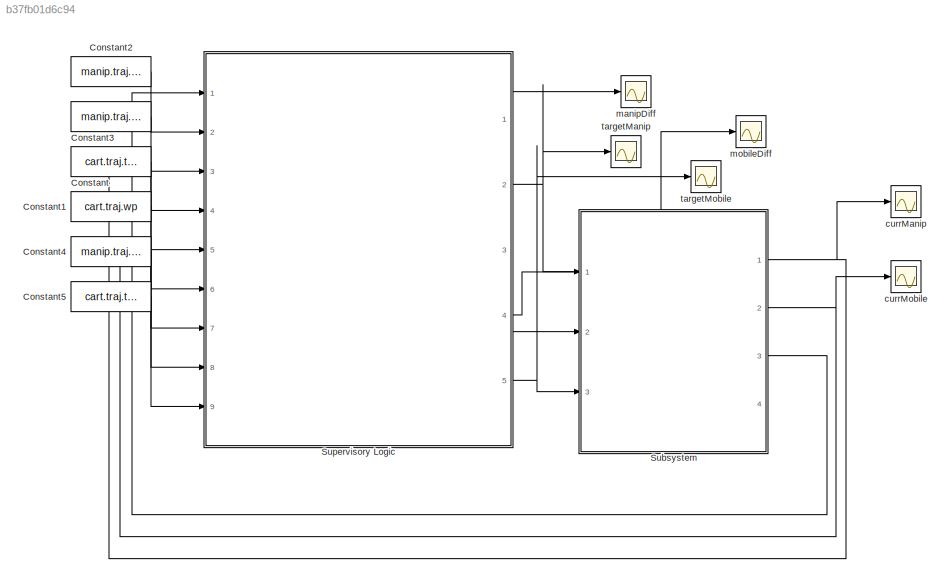
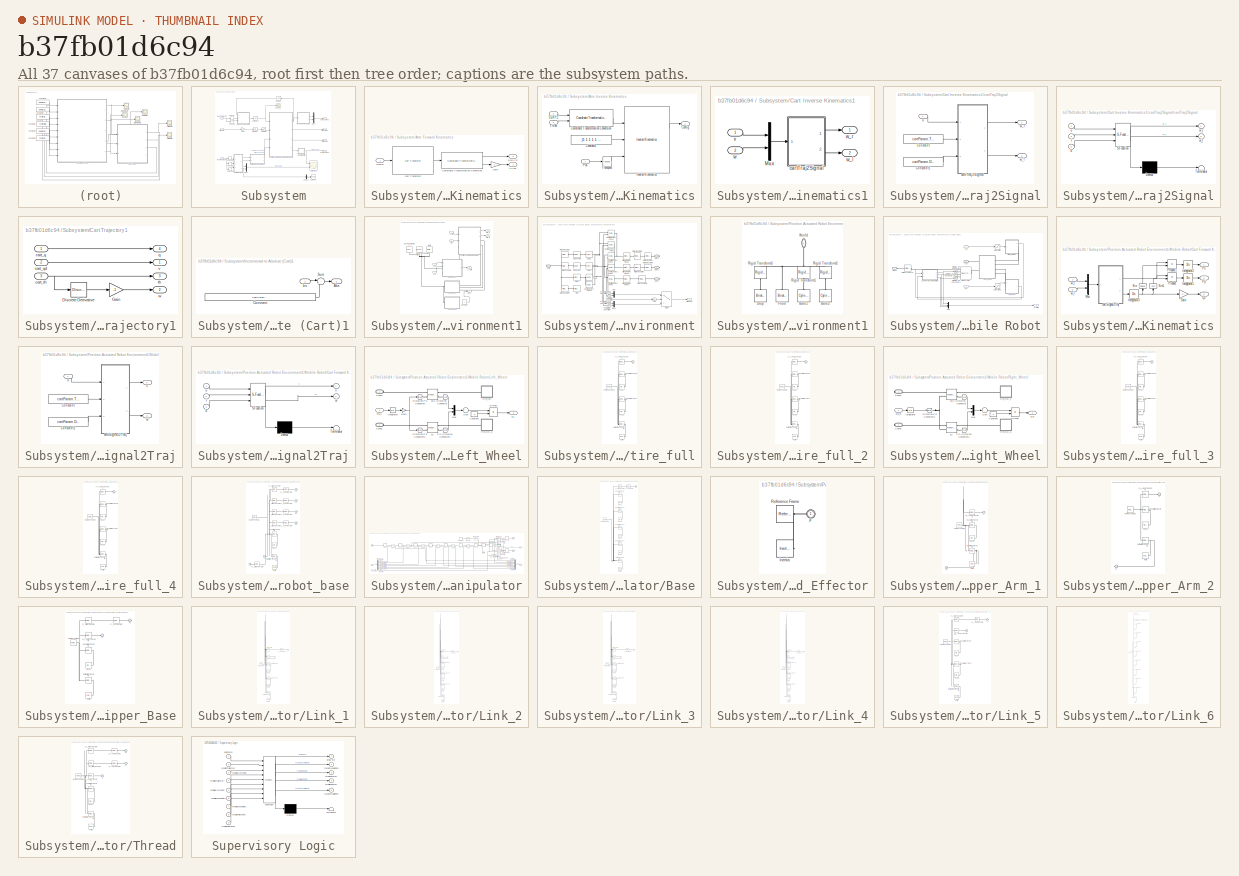
[diagram: thumbnail index - all 37 canvases of the model, root first then tree order]
MODEL slx_b37fb01d6c94
KIND model
CONFIG AbsTol = auto
CONFIG EnableMultiTasking = off
CONFIG FixedStep = auto
CONFIG InitFcn = initializeParameters
CONFIG MaxStep = auto
CONFIG MinStep = auto
CONFIG PreLoadFcn = initializeParameters
CONFIG RelTol = 1e-3
CONFIG SampleTimeConstraint = Unconstrained
CONFIG SolverName = VariableStepAuto
CONFIG StartFcn = initializeParameters
CONFIG StartTime = 0.0
CONFIG StopTime = stopTime
BLOCK [Constant] Constant
  Value = cart.traj.traj
BLOCK [Constant] Constant1
  Value = cart.traj.wp
BLOCK [Constant] Constant2
  Value = manip.traj.traj
BLOCK [Constant] Constant3
  Value = manip.traj.wp.wp
BLOCK [Constant] Constant4
  Value = manip.traj.tol
BLOCK [Constant] Constant5
  Value = cart.traj.tol
BLOCK [SubSystem] Subsystem
  Ports = [3, 4]
BLOCK [SubSystem] Subsystem/Arm Forward Kinematics
  Ports = [1, 2]
BLOCK [Inport] Subsystem/Arm Forward Kinematics/Config
BLOCK [Reference] Subsystem/Arm Forward Kinematics/Coordinate Transformation Conversion  REF=robotcorelib/Coordinate Transformation Conversion
  Ports = [1, 2]
  SourceBlock = robotcorelib/Coordinate Transformation Conversion
  SourceType = robotics.slcore.internal.block.CoordinateTransformationConversion
BLOCK [Outport] Subsystem/Arm Forward Kinematics/EulXYZ
  Port = 2
BLOCK [Gain] Subsystem/Arm Forward Kinematics/Gain
  Gain = -1
BLOCK [Reference] Subsystem/Arm Forward Kinematics/Get Transform  REF=robotmaniplib/Get Transform
  Ports = [1, 1]
  SourceBlock = robotmaniplib/Get Transform
  SourceType = Get Transform
BLOCK [Outport] Subsystem/Arm Forward Kinematics/TrVec
BLOCK [SubSystem] Subsystem/Arm Inverse Kinematics
  Ports = [3, 1]
BLOCK [Outport] Subsystem/Arm Inverse Kinematics/Config
BLOCK [Constant] Subsystem/Arm Inverse Kinematics/Constant2
  Value = [1 1 1 1 1 1]
BLOCK [Reference] Subsystem/Arm Inverse Kinematics/Coordinate Transformation Conversion  REF=robotcorelib/Coordinate Transformation Conversion
  Ports = [2, 1]
  SourceBlock = robotcorelib/Coordinate Transformation Conversion
  SourceType = robotics.slcore.internal.block.CoordinateTransformationConversion
BLOCK [Inport] Subsystem/Arm Inverse Kinematics/EulXYZ
  Port = 3
BLOCK [Reference] Subsystem/Arm Inverse Kinematics/Inverse Kinematics  REF=robotmaniplib/Inverse Kinematics
  Ports = [3, 2]
  SourceBlock = robotmaniplib/Inverse Kinematics
  SourceType = Inverse Kinematics
BLOCK [Inport] Subsystem/Arm Inverse Kinematics/Pos
BLOCK [Inport] Subsystem/Arm Inverse Kinematics/TrVec
  Port = 2
BLOCK [Math] Subsystem/Arm Inverse Kinematics/Transpose
  Operator = transpose
  Ports = [1, 1]
BLOCK [SubSystem] Subsystem/Cart Inverse Kinematics1
  PortSchema = {"entries":[{"content":{"sides":[{"content":{"connectorIds":["In1","In2"]},"type":"ConnectorPlacement.EquallySpacedRectSide","uuid":"7f22b938-58ee-4238-b1b7-b23dabfa1fc4"},{"content":{"side":"RIGHT"},"type":"ConnectorPlacement.EquallySpacedRectSide","uuid":"1a095504-1358-40ea-b561-93851aaa8a0a"},{"content":{"connectorIds":["Out1","Out2"],"side":"TOP"},"type":"ConnectorPlacement.EquallySpacedRectSi...<+235ch>
  Ports = [2, 2]
BLOCK [Mux] Subsystem/Cart Inverse Kinematics1/Mux
  DisplayOption = bar
  Inputs = 2
  Ports = [2, 1]
BLOCK [SubSystem] Subsystem/Cart Inverse Kinematics1/cartTraj2Signal
  Ports = [1, 2]
BLOCK [Constant] Subsystem/Cart Inverse Kinematics1/cartTraj2Signal/Constant
  Value = cartParam.TireRadius
BLOCK [Constant] Subsystem/Cart Inverse Kinematics1/cartTraj2Signal/Constant1
  Value = cartParam.DistanceBwTires
BLOCK [SubSystem] Subsystem/Cart Inverse Kinematics1/cartTraj2Signal/cartTraj2Signal
  ErrorFcn = Stateflow.Translate.translate
  PermitHierarchicalResolution = ExplicitOnly
  Ports = [3, 2]
  SFBlockType = MATLAB Function
  TreatAsAtomicUnit = on
BLOCK [Demux] Subsystem/Cart Inverse Kinematics1/cartTraj2Signal/cartTraj2Signal/ Demux 
  Outputs = 1
  Ports = [1, 1]
BLOCK [S-Function] Subsystem/Cart Inverse Kinematics1/cartTraj2Signal/cartTraj2Signal/ SFunction 
  EnableBusSupport = on
  FunctionName = sf_sfun
  PortCounts = [3 3]
  Ports = [3, 3]
  SFcnIsStateOwnerBlock = off
  SFunctionDeploymentMode = off
  Tag = Stateflow S-Function 4
BLOCK [Terminator] Subsystem/Cart Inverse Kinematics1/cartTraj2Signal/cartTraj2Signal/ Terminator 
BLOCK [Inport] Subsystem/Cart Inverse Kinematics1/cartTraj2Signal/cartTraj2Signal/b
  Port = 3
BLOCK [Inport] Subsystem/Cart Inverse Kinematics1/cartTraj2Signal/cartTraj2Signal/r
  Port = 2
BLOCK [Inport] Subsystem/Cart Inverse Kinematics1/cartTraj2Signal/cartTraj2Signal/u
BLOCK [Outport] Subsystem/Cart Inverse Kinematics1/cartTraj2Signal/cartTraj2Signal/w_l
  Port = 2
BLOCK [Outport] Subsystem/Cart Inverse Kinematics1/cartTraj2Signal/cartTraj2Signal/w_r
BLOCK [Inport] Subsystem/Cart Inverse Kinematics1/cartTraj2Signal/u
BLOCK [Outport] Subsystem/Cart Inverse Kinematics1/cartTraj2Signal/w_l
  Port = 2
BLOCK [Outport] Subsystem/Cart Inverse Kinematics1/cartTraj2Signal/w_r
BLOCK [Inport] Subsystem/Cart Inverse Kinematics1/v
BLOCK [Inport] Subsystem/Cart Inverse Kinematics1/w
  Port = 2
BLOCK [Outport] Subsystem/Cart Inverse Kinematics1/w_l
  Port = 2
BLOCK [Outport] Subsystem/Cart Inverse Kinematics1/w_r
BLOCK [Scope] Subsystem/Cart Output1
  Floating = off
  NumInputPorts = 2
  Ports = [2]
  ScopeSpecificationString = Simulink.scopes.TimeScopeBlockCfg('CurrentConfiguration', extmgr.ConfigurationSet(extmgr.Configuration('Core','General UI',true),extmgr.Configuration('Core','Source UI',true),extmgr.Configuration('Sources','WiredSimulink',true,'DataLoggingVariableName','ScopeData1'),extmgr.Configuration('Visuals','Time Domain',true,'SerializedDisplays',{struct('MinYLimReal','-2.64215','MaxYLimReal','8.07135','YLab...<+1597ch>
BLOCK [Reference] Subsystem/Cart Path1  REF=simulink/Sinks/XY Graph
  Ports = [2]
  SourceBlock = simulink/Sinks/XY Graph
  SourceType = XY scope.
BLOCK [SubSystem] Subsystem/Cart Trajectory1
  Ports = [3, 4]
BLOCK [Reference] Subsystem/Cart Trajectory1/Discrete Derivative  REF=simulink/Discrete/Discrete Derivative
  Ports = [1, 1]
  SourceBlock = simulink/Discrete/Discrete Derivative
  SourceType = Discrete Derivative
BLOCK [Gain] Subsystem/Cart Trajectory1/Gain
  Gain = -1
BLOCK [Inport] Subsystem/Cart Trajectory1/cart_q
BLOCK [Inport] Subsystem/Cart Trajectory1/cart_qd
  Port = 2
BLOCK [Inport] Subsystem/Cart Trajectory1/cart_th
  Port = 3
BLOCK [Outport] Subsystem/Cart Trajectory1/q
  Port = 4
BLOCK [Outport] Subsystem/Cart Trajectory1/th
  Port = 3
BLOCK [Outport] Subsystem/Cart Trajectory1/v
BLOCK [Outport] Subsystem/Cart Trajectory1/w
  Port = 2
BLOCK [Demux] Subsystem/Demux1
  Outputs = 2
  Ports = [1, 2]
BLOCK [Gain] Subsystem/Gain
  Gain = 10
BLOCK [SubSystem] Subsystem/Incremental to Abolute (Cart)1
  Ports = [1, 1]
BLOCK [Outport] Subsystem/Incremental to Abolute (Cart)1/Abs
BLOCK [Constant] Subsystem/Incremental to Abolute (Cart)1/Constant
  Value = [cartParam.Initial.X cartParam.Initial.Y cartParam.Initial.Phase]
BLOCK [Inport] Subsystem/Incremental to Abolute (Cart)1/Inc
BLOCK [Sum] Subsystem/Incremental to Abolute (Cart)1/Sum
  Inputs = |++
  Ports = [2, 1]
BLOCK [Integrator] Subsystem/Integrator
  Ports = [1, 1]
BLOCK [Mux] Subsystem/Mux1
  DisplayOption = bar
  Inputs = 2
  Ports = [2, 1]
BLOCK [Mux] Subsystem/Mux2
  DisplayOption = bar
  Inputs = 2
  Ports = [2, 1]
BLOCK [SubSystem] Subsystem/Position Actuated Robot Environment1
  AutoFrameSizeCalculation = on
  Ports = [4, 4]
BLOCK [Constant] Subsystem/Position Actuated Robot Environment1/Constant
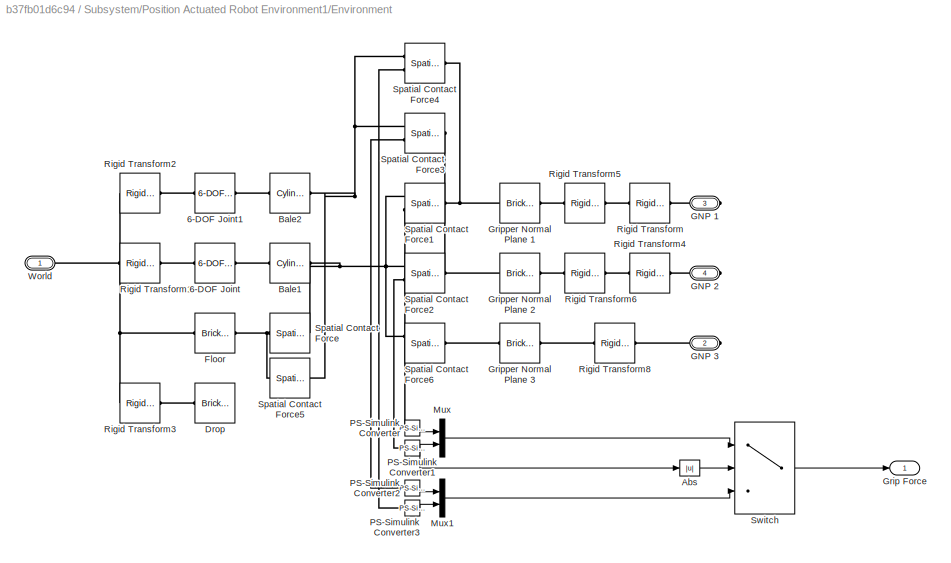
BLOCK [SubSystem] Subsystem/Position Actuated Robot Environment1/Environment
  AutoFrameSizeCalculation = on
  Commented = on
  PortSchema = {"entries":[{"content":{"sides":[{"content":{"connectorIds":["LConn1"]},"type":"ConnectorPlacement.EquallySpacedRectSide","uuid":"231e75f1-a9d1-4ad8-a62d-f4afe3591ae3"},{"content":{"connectorIds":["RConn1","RConn2","RConn3","Out1"],"side":"RIGHT"},"type":"ConnectorPlacement.EquallySpacedRectSide","uuid":"58308121-f635-4820-a5b0-daa09c396c96"},{"content":{"side":"TOP"},"type":"ConnectorPlacement.Eq...<+252ch>
  Ports = [0, 1, 0, 0, 0, 1, 3]
BLOCK [Reference] Subsystem/Position Actuated Robot Environment1/Environment/6-DOF Joint  REF=sm_lib/Joints/6-DOF Joint
  Ports = [0, 0, 0, 0, 0, 1, 1]
  SourceBlock = sm_lib/Joints/6-DOF Joint
  SourceType = 6-DOF Joint
BLOCK [Reference] Subsystem/Position Actuated Robot Environment1/Environment/6-DOF Joint1  REF=sm_lib/Joints/6-DOF Joint
  Ports = [0, 0, 0, 0, 0, 1, 1]
  SourceBlock = sm_lib/Joints/6-DOF Joint
  SourceType = 6-DOF Joint
BLOCK [Abs] Subsystem/Position Actuated Robot Environment1/Environment/Abs
  SaturateOnIntegerOverflow = off
BLOCK [Reference] Subsystem/Position Actuated Robot Environment1/Environment/Bale1  REF=sm_lib/Body Elements/Cylindrical Solid
  Ports = [0, 0, 0, 0, 0, 1, 1]
  SourceBlock = sm_lib/Body Elements/Cylindrical Solid
  SourceType = Cylindrical Solid
BLOCK [Reference] Subsystem/Position Actuated Robot Environment1/Environment/Bale2  REF=sm_lib/Body Elements/Cylindrical Solid
  Ports = [0, 0, 0, 0, 0, 1, 1]
  SourceBlock = sm_lib/Body Elements/Cylindrical Solid
  SourceType = Cylindrical Solid
BLOCK [Reference] Subsystem/Position Actuated Robot Environment1/Environment/Drop  REF=sm_lib/Body Elements/Brick Solid
  Ports = [0, 0, 0, 0, 0, 1]
  SourceBlock = sm_lib/Body Elements/Brick Solid
  SourceType = Brick Solid
BLOCK [Reference] Subsystem/Position Actuated Robot Environment1/Environment/Floor  REF=sm_lib/Body Elements/Brick Solid
  Ports = [0, 0, 0, 0, 0, 1, 1]
  SourceBlock = sm_lib/Body Elements/Brick Solid
  SourceType = Brick Solid
BLOCK [PMIOPort] Subsystem/Position Actuated Robot Environment1/Environment/GNP 1
  Port = 3
  Side = Right
BLOCK [PMIOPort] Subsystem/Position Actuated Robot Environment1/Environment/GNP 2
  Port = 4
  Side = Right
BLOCK [PMIOPort] Subsystem/Position Actuated Robot Environment1/Environment/GNP 3
  Port = 2
  Side = Right
BLOCK [Outport] Subsystem/Position Actuated Robot Environment1/Environment/Grip Force
BLOCK [Reference] Subsystem/Position Actuated Robot Environment1/Environment/Gripper Normal Plane 1  REF=sm_lib/Body Elements/Brick Solid
  Ports = [0, 0, 0, 0, 0, 1, 1]
  SourceBlock = sm_lib/Body Elements/Brick Solid
  SourceType = Brick Solid
BLOCK [Reference] Subsystem/Position Actuated Robot Environment1/Environment/Gripper Normal Plane 2  REF=sm_lib/Body Elements/Brick Solid
  Ports = [0, 0, 0, 0, 0, 1, 1]
  SourceBlock = sm_lib/Body Elements/Brick Solid
  SourceType = Brick Solid
BLOCK [Reference] Subsystem/Position Actuated Robot Environment1/Environment/Gripper Normal Plane 3  REF=sm_lib/Body Elements/Brick Solid
  Ports = [0, 0, 0, 0, 0, 1, 1]
  SourceBlock = sm_lib/Body Elements/Brick Solid
  SourceType = Brick Solid
BLOCK [Mux] Subsystem/Position Actuated Robot Environment1/Environment/Mux
  DisplayOption = bar
  Inputs = 2
  Ports = [2, 1]
BLOCK [Mux] Subsystem/Position Actuated Robot Environment1/Environment/Mux1
  DisplayOption = bar
  Inputs = 2
  Ports = [2, 1]
BLOCK [Reference] Subsystem/Position Actuated Robot Environment1/Environment/PS-Simulink Converter  REF=nesl_utility/PS-Simulink
Converter
  Ports = [0, 1, 0, 0, 0, 1]
  SourceBlock = nesl_utility/PS-Simulink\nConverter
  SourceType = PS-Simulink\nConverter
BLOCK [Reference] Subsystem/Position Actuated Robot Environment1/Environment/PS-Simulink Converter1  REF=nesl_utility/PS-Simulink
Converter
  Ports = [0, 1, 0, 0, 0, 1]
  SourceBlock = nesl_utility/PS-Simulink\nConverter
  SourceType = PS-Simulink\nConverter
BLOCK [Reference] Subsystem/Position Actuated Robot Environment1/Environment/PS-Simulink Converter2  REF=nesl_utility/PS-Simulink
Converter
  Ports = [0, 1, 0, 0, 0, 1]
  SourceBlock = nesl_utility/PS-Simulink\nConverter
  SourceType = PS-Simulink\nConverter
BLOCK [Reference] Subsystem/Position Actuated Robot Environment1/Environment/PS-Simulink Converter3  REF=nesl_utility/PS-Simulink
Converter
  Ports = [0, 1, 0, 0, 0, 1]
  SourceBlock = nesl_utility/PS-Simulink\nConverter
  SourceType = PS-Simulink\nConverter
BLOCK [Reference] Subsystem/Position Actuated Robot Environment1/Environment/Rigid Transform  REF=sm_lib/Frames and
Transforms/Rigid
Transform
  Ports = [0, 0, 0, 0, 0, 1, 1]
  SourceBlock = sm_lib/Frames and\nTransforms/Rigid\nTransform
  SourceType = Rigid\nTransform
BLOCK [Reference] Subsystem/Position Actuated Robot Environment1/Environment/Rigid Transform1  REF=sm_lib/Frames and
Transforms/Rigid
Transform
  Ports = [0, 0, 0, 0, 0, 1, 1]
  SourceBlock = sm_lib/Frames and\nTransforms/Rigid\nTransform
  SourceType = Rigid\nTransform
BLOCK [Reference] Subsystem/Position Actuated Robot Environment1/Environment/Rigid Transform2  REF=sm_lib/Frames and
Transforms/Rigid
Transform
  Ports = [0, 0, 0, 0, 0, 1, 1]
  SourceBlock = sm_lib/Frames and\nTransforms/Rigid\nTransform
  SourceType = Rigid\nTransform
BLOCK [Reference] Subsystem/Position Actuated Robot Environment1/Environment/Rigid Transform3  REF=sm_lib/Frames and
Transforms/Rigid
Transform
  Ports = [0, 0, 0, 0, 0, 1, 1]
  SourceBlock = sm_lib/Frames and\nTransforms/Rigid\nTransform
  SourceType = Rigid\nTransform
BLOCK [Reference] Subsystem/Position Actuated Robot Environment1/Environment/Rigid Transform4  REF=sm_lib/Frames and
Transforms/Rigid
Transform
  Ports = [0, 0, 0, 0, 0, 1, 1]
  SourceBlock = sm_lib/Frames and\nTransforms/Rigid\nTransform
  SourceType = Rigid\nTransform
BLOCK [Reference] Subsystem/Position Actuated Robot Environment1/Environment/Rigid Transform5  REF=sm_lib/Frames and
Transforms/Rigid
Transform
  Ports = [0, 0, 0, 0, 0, 1, 1]
  SourceBlock = sm_lib/Frames and\nTransforms/Rigid\nTransform
  SourceType = Rigid\nTransform
BLOCK [Reference] Subsystem/Position Actuated Robot Environment1/Environment/Rigid Transform6  REF=sm_lib/Frames and
Transforms/Rigid
Transform
  Ports = [0, 0, 0, 0, 0, 1, 1]
  SourceBlock = sm_lib/Frames and\nTransforms/Rigid\nTransform
  SourceType = Rigid\nTransform
BLOCK [Reference] Subsystem/Position Actuated Robot Environment1/Environment/Rigid Transform8  REF=sm_lib/Frames and
Transforms/Rigid
Transform
  Ports = [0, 0, 0, 0, 0, 1, 1]
  SourceBlock = sm_lib/Frames and\nTransforms/Rigid\nTransform
  SourceType = Rigid\nTransform
BLOCK [Reference] Subsystem/Position Actuated Robot Environment1/Environment/Spatial Contact Force  REF=sm_lib/Forces and
Torques/Spatial
Contact Force
  Ports = [0, 0, 0, 0, 0, 1, 1]
  SourceBlock = sm_lib/Forces and\nTorques/Spatial\nContact Force
  SourceType = Spatial\nContact Force
BLOCK [Reference] Subsystem/Position Actuated Robot Environment1/Environment/Spatial Contact Force1  REF=sm_lib/Forces and
Torques/Spatial
Contact Force
  Ports = [0, 0, 0, 0, 0, 1, 2]
  SourceBlock = sm_lib/Forces and\nTorques/Spatial\nContact Force
  SourceType = Spatial\nContact Force
BLOCK [Reference] Subsystem/Position Actuated Robot Environment1/Environment/Spatial Contact Force2  REF=sm_lib/Forces and
Torques/Spatial
Contact Force
  Ports = [0, 0, 0, 0, 0, 1, 2]
  SourceBlock = sm_lib/Forces and\nTorques/Spatial\nContact Force
  SourceType = Spatial\nContact Force
BLOCK [Reference] Subsystem/Position Actuated Robot Environment1/Environment/Spatial Contact Force3  REF=sm_lib/Forces and
Torques/Spatial
Contact Force
  Commented = on
  Ports = [0, 0, 0, 0, 0, 1, 2]
  SourceBlock = sm_lib/Forces and\nTorques/Spatial\nContact Force
  SourceType = Spatial\nContact Force
BLOCK [Reference] Subsystem/Position Actuated Robot Environment1/Environment/Spatial Contact Force4  REF=sm_lib/Forces and
Torques/Spatial
Contact Force
  Commented = on
  Ports = [0, 0, 0, 0, 0, 1, 2]
  SourceBlock = sm_lib/Forces and\nTorques/Spatial\nContact Force
  SourceType = Spatial\nContact Force
BLOCK [Reference] Subsystem/Position Actuated Robot Environment1/Environment/Spatial Contact Force5  REF=sm_lib/Forces and
Torques/Spatial
Contact Force
  Ports = [0, 0, 0, 0, 0, 1, 1]
  SourceBlock = sm_lib/Forces and\nTorques/Spatial\nContact Force
  SourceType = Spatial\nContact Force
BLOCK [Reference] Subsystem/Position Actuated Robot Environment1/Environment/Spatial Contact Force6  REF=sm_lib/Forces and
Torques/Spatial
Contact Force
  Ports = [0, 0, 0, 0, 0, 1, 2]
  SourceBlock = sm_lib/Forces and\nTorques/Spatial\nContact Force
  SourceType = Spatial\nContact Force
BLOCK [Switch] Subsystem/Position Actuated Robot Environment1/Environment/Switch
  Criteria = u2 > Threshold
  InputSameDT = off
  SaturateOnIntegerOverflow = off
  Threshold = 5
BLOCK [PMIOPort] Subsystem/Position Actuated Robot Environment1/Environment/World
  Side = Left
BLOCK [SubSystem] Subsystem/Position Actuated Robot Environment1/Environment1
  Ports = [0, 0, 0, 0, 0, 1]
BLOCK [Reference] Subsystem/Position Actuated Robot Environment1/Environment1/Bale1  REF=sm_lib/Body Elements/Cylindrical Solid
  Ports = [0, 0, 0, 0, 0, 0, 1]
  SourceBlock = sm_lib/Body Elements/Cylindrical Solid
  SourceType = Cylindrical Solid
BLOCK [Reference] Subsystem/Position Actuated Robot Environment1/Environment1/Bale2  REF=sm_lib/Body Elements/Cylindrical Solid
  Ports = [0, 0, 0, 0, 0, 0, 1]
  SourceBlock = sm_lib/Body Elements/Cylindrical Solid
  SourceType = Cylindrical Solid
BLOCK [Reference] Subsystem/Position Actuated Robot Environment1/Environment1/Drop  REF=sm_lib/Body Elements/Brick Solid
  Ports = [0, 0, 0, 0, 0, 1]
  SourceBlock = sm_lib/Body Elements/Brick Solid
  SourceType = Brick Solid
BLOCK [Reference] Subsystem/Position Actuated Robot Environment1/Environment1/Floor  REF=sm_lib/Body Elements/Brick Solid
  Ports = [0, 0, 0, 0, 0, 1]
  SourceBlock = sm_lib/Body Elements/Brick Solid
  SourceType = Brick Solid
BLOCK [Reference] Subsystem/Position Actuated Robot Environment1/Environment1/Rigid Transform1  REF=sm_lib/Frames and
Transforms/Rigid
Transform
  NameLocation = left
  Ports = [0, 0, 0, 0, 0, 1, 1]
  SourceBlock = sm_lib/Frames and\nTransforms/Rigid\nTransform
  SourceType = Rigid\nTransform
BLOCK [Reference] Subsystem/Position Actuated Robot Environment1/Environment1/Rigid Transform2  REF=sm_lib/Frames and
Transforms/Rigid
Transform
  NameLocation = left
  Ports = [0, 0, 0, 0, 0, 1, 1]
  SourceBlock = sm_lib/Frames and\nTransforms/Rigid\nTransform
  SourceType = Rigid\nTransform
BLOCK [Reference] Subsystem/Position Actuated Robot Environment1/Environment1/Rigid Transform3  REF=sm_lib/Frames and
Transforms/Rigid
Transform
  NameLocation = left
  Ports = [0, 0, 0, 0, 0, 1, 1]
  SourceBlock = sm_lib/Frames and\nTransforms/Rigid\nTransform
  SourceType = Rigid\nTransform
BLOCK [PMIOPort] Subsystem/Position Actuated Robot Environment1/Environment1/World
  NameLocation = left
  Side = Left
BLOCK [Reference] Subsystem/Position Actuated Robot Environment1/MechanismConfiguration  REF=sm_lib/Utilities/Mechanism
Configuration
  NameLocation = left
  Ports = [0, 0, 0, 0, 0, 0, 1]
  SourceBlock = sm_lib/Utilities/Mechanism\nConfiguration
  SourceType = Mechanism\nConfiguration
BLOCK [SubSystem] Subsystem/Position Actuated Robot Environment1/Mobile Robot
  PortSchema = {"entries":[{"content":{"sides":[{"content":{"connectorIds":["In1","In2"]},"type":"ConnectorPlacement.EquallySpacedRectSide","uuid":"d865e24f-6e94-4741-8663-2233d7cc6fe3"},{"content":{"connectorIds":["Out1"],"side":"RIGHT"},"type":"ConnectorPlacement.EquallySpacedRectSide","uuid":"e7ebc92e-d028-4010-9d41-bb6c59c0597a"},{"content":{"connectorIds":["LConn1","LConn2"],"side":"TOP"},"type":"ConnectorP...<+263ch>
  Ports = [2, 1, 0, 0, 0, 2]
BLOCK [PMIOPort] Subsystem/Position Actuated Robot Environment1/Mobile Robot/Arm
  Port = 2
  Side = Left
BLOCK [Outport] Subsystem/Position Actuated Robot Environment1/Mobile Robot/C_State
BLOCK [SubSystem] Subsystem/Position Actuated Robot Environment1/Mobile Robot/Cart Forward Kinematics
  Ports = [2, 3]
BLOCK [Gain] Subsystem/Position Actuated Robot Environment1/Mobile Robot/Cart Forward Kinematics/Gain
  Gain = -1
BLOCK [Integrator] Subsystem/Position Actuated Robot Environment1/Mobile Robot/Cart Forward Kinematics/Integrator1
  Ports = [1, 1]
BLOCK [Integrator] Subsystem/Position Actuated Robot Environment1/Mobile Robot/Cart Forward Kinematics/Integrator2
  Ports = [1, 1]
BLOCK [Integrator] Subsystem/Position Actuated Robot Environment1/Mobile Robot/Cart Forward Kinematics/Integrator3
  Ports = [1, 1]
BLOCK [Mux] Subsystem/Position Actuated Robot Environment1/Mobile Robot/Cart Forward Kinematics/Mux
  DisplayOption = bar
  Inputs = 2
  Ports = [2, 1]
BLOCK [Product] Subsystem/Position Actuated Robot Environment1/Mobile Robot/Cart Forward Kinematics/Product
  Ports = [2, 1]
BLOCK [Product] Subsystem/Position Actuated Robot Environment1/Mobile Robot/Cart Forward Kinematics/Product1
  Ports = [2, 1]
BLOCK [Outport] Subsystem/Position Actuated Robot Environment1/Mobile Robot/Cart Forward Kinematics/Px
BLOCK [Outport] Subsystem/Position Actuated Robot Environment1/Mobile Robot/Cart Forward Kinematics/Py
  Port = 2
BLOCK [Outport] Subsystem/Position Actuated Robot Environment1/Mobile Robot/Cart Forward Kinematics/Qz
  Port = 3
BLOCK [Trigonometry] Subsystem/Position Actuated Robot Environment1/Mobile Robot/Cart Forward Kinematics/Sin
  NameLocation = right
  Ports = [1, 1]
BLOCK [Trigonometry] Subsystem/Position Actuated Robot Environment1/Mobile Robot/Cart Forward Kinematics/Sin1
  NameLocation = right
  Operator = cos
  Ports = [1, 1]
BLOCK [SubSystem] Subsystem/Position Actuated Robot Environment1/Mobile Robot/Cart Forward Kinematics/cartSignal2Traj
  Ports = [1, 2]
BLOCK [Constant] Subsystem/Position Actuated Robot Environment1/Mobile Robot/Cart Forward Kinematics/cartSignal2Traj/Constant
  Value = cartParam.TireRadius
BLOCK [Constant] Subsystem/Position Actuated Robot Environment1/Mobile Robot/Cart Forward Kinematics/cartSignal2Traj/Constant1
  Value = cartParam.DistanceBwTires
BLOCK [SubSystem] Subsystem/Position Actuated Robot Environment1/Mobile Robot/Cart Forward Kinematics/cartSignal2Traj/cartSignal2Traj
  ErrorFcn = Stateflow.Translate.translate
  PermitHierarchicalResolution = ExplicitOnly
  Ports = [3, 2]
  SFBlockType = MATLAB Function
  TreatAsAtomicUnit = on
BLOCK [Demux] Subsystem/Position Actuated Robot Environment1/Mobile Robot/Cart Forward Kinematics/cartSignal2Traj/cartSignal2Traj/ Demux 
  Outputs = 1
  Ports = [1, 1]
BLOCK [S-Function] Subsystem/Position Actuated Robot Environment1/Mobile Robot/Cart Forward Kinematics/cartSignal2Traj/cartSignal2Traj/ SFunction 
  EnableBusSupport = on
  FunctionName = sf_sfun
  PortCounts = [3 3]
  Ports = [3, 3]
  SFcnIsStateOwnerBlock = off
  SFunctionDeploymentMode = off
  Tag = Stateflow S-Function 5
BLOCK [Terminator] Subsystem/Position Actuated Robot Environment1/Mobile Robot/Cart Forward Kinematics/cartSignal2Traj/cartSignal2Traj/ Terminator 
BLOCK [Inport] Subsystem/Position Actuated Robot Environment1/Mobile Robot/Cart Forward Kinematics/cartSignal2Traj/cartSignal2Traj/b
  Port = 3
BLOCK [Inport] Subsystem/Position Actuated Robot Environment1/Mobile Robot/Cart Forward Kinematics/cartSignal2Traj/cartSignal2Traj/r
  Port = 2
BLOCK [Inport] Subsystem/Position Actuated Robot Environment1/Mobile Robot/Cart Forward Kinematics/cartSignal2Traj/cartSignal2Traj/u
BLOCK [Outport] Subsystem/Position Actuated Robot Environment1/Mobile Robot/Cart Forward Kinematics/cartSignal2Traj/cartSignal2Traj/v
BLOCK [Outport] Subsystem/Position Actuated Robot Environment1/Mobile Robot/Cart Forward Kinematics/cartSignal2Traj/cartSignal2Traj/w
  Port = 2
BLOCK [Inport] Subsystem/Position Actuated Robot Environment1/Mobile Robot/Cart Forward Kinematics/cartSignal2Traj/u
BLOCK [Outport] Subsystem/Position Actuated Robot Environment1/Mobile Robot/Cart Forward Kinematics/cartSignal2Traj/v
BLOCK [Outport] Subsystem/Position Actuated Robot Environment1/Mobile Robot/Cart Forward Kinematics/cartSignal2Traj/w
  Port = 2
BLOCK [Inport] Subsystem/Position Actuated Robot Environment1/Mobile Robot/Cart Forward Kinematics/w_l
  Port = 2
BLOCK [Inport] Subsystem/Position Actuated Robot Environment1/Mobile Robot/Cart Forward Kinematics/w_r
BLOCK [SubSystem] Subsystem/Position Actuated Robot Environment1/Mobile Robot/Left_Wheel
  PortSchema = {"entries":[{"content":{"sides":[{"content":{"connectorIds":["In1"]},"type":"ConnectorPlacement.EquallySpacedRectSide","uuid":"fd18bf8d-3737-4723-9876-24822d4defed"},{"content":{"connectorIds":["Out1"],"side":"RIGHT"},"type":"ConnectorPlacement.EquallySpacedRectSide","uuid":"10024688-4880-4c6e-a930-73264966df0e"},{"content":{"connectorIds":["LConn1","LConn2"],"side":"TOP"},"type":"ConnectorPlaceme...<+383ch>
  Ports = [1, 1, 0, 0, 0, 2]
BLOCK [PMIOPort] Subsystem/Position Actuated Robot Environment1/Mobile Robot/Left_Wheel/Conn1
  Port = 2
  Side = Left
BLOCK [PMIOPort] Subsystem/Position Actuated Robot Environment1/Mobile Robot/Left_Wheel/Conn2
  Side = Left
BLOCK [Constant] Subsystem/Position Actuated Robot Environment1/Mobile Robot/Left_Wheel/Constant
  Value = -2
BLOCK [Product] Subsystem/Position Actuated Robot Environment1/Mobile Robot/Left_Wheel/Divide
  Inputs = */
  Ports = [2, 1]
BLOCK [Gain] Subsystem/Position Actuated Robot Environment1/Mobile Robot/Left_Wheel/Gain
  Gain = -1
BLOCK [Integrator] Subsystem/Position Actuated Robot Environment1/Mobile Robot/Left_Wheel/Integrator
  Ports = [1, 1]
BLOCK [Mux] Subsystem/Position Actuated Robot Environment1/Mobile Robot/Left_Wheel/Mux
  DisplayOption = bar
  Inputs = 2
  Ports = [2, 1]
BLOCK [Reference] Subsystem/Position Actuated Robot Environment1/Mobile Robot/Left_Wheel/PS-Simulink Converter  REF=nesl_utility/PS-Simulink
Converter
  Ports = [0, 1, 0, 0, 0, 1]
  SourceBlock = nesl_utility/PS-Simulink\nConverter
  SourceType = PS-Simulink\nConverter
BLOCK [Reference] Subsystem/Position Actuated Robot Environment1/Mobile Robot/Left_Wheel/PS-Simulink Converter1  REF=nesl_utility/PS-Simulink
Converter
  Ports = [0, 1, 0, 0, 0, 1]
  SourceBlock = nesl_utility/PS-Simulink\nConverter
  SourceType = PS-Simulink\nConverter
BLOCK [Reference] Subsystem/Position Actuated Robot Environment1/Mobile Robot/Left_Wheel/Simulink-PS Converter  REF=nesl_utility/Simulink-PS
Converter
  Ports = [1, 0, 0, 0, 0, 0, 1]
  SourceBlock = nesl_utility/Simulink-PS\nConverter
  SourceType = Simulink-PS\nConverter
BLOCK [Reference] Subsystem/Position Actuated Robot Environment1/Mobile Robot/Left_Wheel/Simulink-PS Converter1  REF=nesl_utility/Simulink-PS
Converter
  Ports = [1, 0, 0, 0, 0, 0, 1]
  SourceBlock = nesl_utility/Simulink-PS\nConverter
  SourceType = Simulink-PS\nConverter
BLOCK [Sum] Subsystem/Position Actuated Robot Environment1/Mobile Robot/Left_Wheel/Sum
  Inputs = +
  Ports = [1, 1]
BLOCK [Outport] Subsystem/Position Actuated Robot Environment1/Mobile Robot/Left_Wheel/q_L
BLOCK [Inport] Subsystem/Position Actuated Robot Environment1/Mobile Robot/Left_Wheel/sig_L
BLOCK [SubSystem] Subsystem/Position Actuated Robot Environment1/Mobile Robot/Left_Wheel/tire_full
  Ports = [0, 0, 0, 0, 0, 1]
BLOCK [PMIOPort] Subsystem/Position Actuated Robot Environment1/Mobile Robot/Left_Wheel/tire_full/F
  Side = Left
BLOCK [Reference] Subsystem/Position Actuated Robot Environment1/Mobile Robot/Left_Wheel/tire_full/Inertia  REF=sm_lib/Body Elements/Inertia
  Ports = [0, 0, 0, 0, 0, 0, 1]
  SourceBlock = sm_lib/Body Elements/Inertia
  SourceType = Inertia
BLOCK [Reference] Subsystem/Position Actuated Robot Environment1/Mobile Robot/Left_Wheel/tire_full/InertiaOriginTransform  REF=sm_lib/Frames and
Transforms/Rigid
Transform
  Ports = [0, 0, 0, 0, 0, 1, 1]
  SourceBlock = sm_lib/Frames and\nTransforms/Rigid\nTransform
  SourceType = Rigid\nTransform
BLOCK [Reference] Subsystem/Position Actuated Robot Environment1/Mobile Robot/Left_Wheel/tire_full/ReferenceFrame  REF=sm_lib/Frames and
Transforms/Reference
Frame
  Ports = [0, 0, 0, 0, 0, 0, 1]
  SourceBlock = sm_lib/Frames and\nTransforms/Reference\nFrame
  SourceType = Reference\nFrame
BLOCK [Reference] Subsystem/Position Actuated Robot Environment1/Mobile Robot/Left_Wheel/tire_full/Visual  REF=sm_lib/Body Elements/File Solid
  Ports = [0, 0, 0, 0, 0, 0, 1]
  SourceBlock = sm_lib/Body Elements/File Solid
  SourceType = File Solid
BLOCK [Reference] Subsystem/Position Actuated Robot Environment1/Mobile Robot/Left_Wheel/tire_full/Visual1  REF=sm_lib/Body Elements/File Solid
  Ports = [0, 0, 0, 0, 0, 0, 1]
  SourceBlock = sm_lib/Body Elements/File Solid
  SourceType = File Solid
BLOCK [Reference] Subsystem/Position Actuated Robot Environment1/Mobile Robot/Left_Wheel/tire_full/VisualOrigin1Transform  REF=sm_lib/Frames and
Transforms/Rigid
Transform
  Ports = [0, 0, 0, 0, 0, 1, 1]
  SourceBlock = sm_lib/Frames and\nTransforms/Rigid\nTransform
  SourceType = Rigid\nTransform
BLOCK [Reference] Subsystem/Position Actuated Robot Environment1/Mobile Robot/Left_Wheel/tire_full/VisualOriginTransform  REF=sm_lib/Frames and
Transforms/Rigid
Transform
  Ports = [0, 0, 0, 0, 0, 1, 1]
  SourceBlock = sm_lib/Frames and\nTransforms/Rigid\nTransform
  SourceType = Rigid\nTransform
BLOCK [Reference] Subsystem/Position Actuated Robot Environment1/Mobile Robot/Left_Wheel/tire_full/x1_AxisInvTransform  REF=sm_lib/Frames and
Transforms/Rigid
Transform
  Ports = [0, 0, 0, 0, 0, 1, 1]
  SourceBlock = sm_lib/Frames and\nTransforms/Rigid\nTransform
  SourceType = Rigid\nTransform
BLOCK [SubSystem] Subsystem/Position Actuated Robot Environment1/Mobile Robot/Left_Wheel/tire_full_2
  Ports = [0, 0, 0, 0, 0, 1]
BLOCK [PMIOPort] Subsystem/Position Actuated Robot Environment1/Mobile Robot/Left_Wheel/tire_full_2/F
  Side = Left
BLOCK [Reference] Subsystem/Position Actuated Robot Environment1/Mobile Robot/Left_Wheel/tire_full_2/Inertia  REF=sm_lib/Body Elements/Inertia
  Ports = [0, 0, 0, 0, 0, 0, 1]
  SourceBlock = sm_lib/Body Elements/Inertia
  SourceType = Inertia
BLOCK [Reference] Subsystem/Position Actuated Robot Environment1/Mobile Robot/Left_Wheel/tire_full_2/InertiaOriginTransform  REF=sm_lib/Frames and
Transforms/Rigid
Transform
  Ports = [0, 0, 0, 0, 0, 1, 1]
  SourceBlock = sm_lib/Frames and\nTransforms/Rigid\nTransform
  SourceType = Rigid\nTransform
BLOCK [Reference] Subsystem/Position Actuated Robot Environment1/Mobile Robot/Left_Wheel/tire_full_2/ReferenceFrame  REF=sm_lib/Frames and
Transforms/Reference
Frame
  Ports = [0, 0, 0, 0, 0, 0, 1]
  SourceBlock = sm_lib/Frames and\nTransforms/Reference\nFrame
  SourceType = Reference\nFrame
BLOCK [Reference] Subsystem/Position Actuated Robot Environment1/Mobile Robot/Left_Wheel/tire_full_2/Visual  REF=sm_lib/Body Elements/File Solid
  Ports = [0, 0, 0, 0, 0, 0, 1]
  SourceBlock = sm_lib/Body Elements/File Solid
  SourceType = File Solid
BLOCK [Reference] Subsystem/Position Actuated Robot Environment1/Mobile Robot/Left_Wheel/tire_full_2/Visual1  REF=sm_lib/Body Elements/File Solid
  Ports = [0, 0, 0, 0, 0, 0, 1]
  SourceBlock = sm_lib/Body Elements/File Solid
  SourceType = File Solid
BLOCK [Reference] Subsystem/Position Actuated Robot Environment1/Mobile Robot/Left_Wheel/tire_full_2/VisualOrigin1Transform  REF=sm_lib/Frames and
Transforms/Rigid
Transform
  Ports = [0, 0, 0, 0, 0, 1, 1]
  SourceBlock = sm_lib/Frames and\nTransforms/Rigid\nTransform
  SourceType = Rigid\nTransform
BLOCK [Reference] Subsystem/Position Actuated Robot Environment1/Mobile Robot/Left_Wheel/tire_full_2/VisualOriginTransform  REF=sm_lib/Frames and
Transforms/Rigid
Transform
  Ports = [0, 0, 0, 0, 0, 1, 1]
  SourceBlock = sm_lib/Frames and\nTransforms/Rigid\nTransform
  SourceType = Rigid\nTransform
BLOCK [Reference] Subsystem/Position Actuated Robot Environment1/Mobile Robot/Left_Wheel/tire_full_2/x2_AxisInvTransform  REF=sm_lib/Frames and
Transforms/Rigid
Transform
  Ports = [0, 0, 0, 0, 0, 1, 1]
  SourceBlock = sm_lib/Frames and\nTransforms/Rigid\nTransform
  SourceType = Rigid\nTransform
BLOCK [Reference] Subsystem/Position Actuated Robot Environment1/Mobile Robot/Left_Wheel/x3  REF=sm_lib/Joints/Revolute Joint
  Ports = [0, 0, 0, 0, 0, 2, 2]
  SourceBlock = sm_lib/Joints/Revolute Joint
  SourceType = Revolute Joint
BLOCK [Reference] Subsystem/Position Actuated Robot Environment1/Mobile Robot/Left_Wheel/x4  REF=sm_lib/Joints/Revolute Joint
  Ports = [0, 0, 0, 0, 0, 2, 2]
  SourceBlock = sm_lib/Joints/Revolute Joint
  SourceType = Revolute Joint
BLOCK [Mux] Subsystem/Position Actuated Robot Environment1/Mobile Robot/Mux
  DisplayOption = bar
  Inputs = 3
  Ports = [3, 1]
BLOCK [Reference] Subsystem/Position Actuated Robot Environment1/Mobile Robot/Planar Joint  REF=sm_lib/Joints/Planar Joint
  Ports = [0, 0, 0, 0, 0, 4, 1]
  SourceBlock = sm_lib/Joints/Planar Joint
  SourceType = Planar Joint
BLOCK [SubSystem] Subsystem/Position Actuated Robot Environment1/Mobile Robot/Right_Wheel
  NameLocation = top
  PortSchema = {"entries":[{"content":{"sides":[{"content":{"connectorIds":["In1"]},"type":"ConnectorPlacement.EquallySpacedRectSide","uuid":"fd18bf8d-3737-4723-9876-24822d4defed"},{"content":{"connectorIds":["Out1"],"side":"RIGHT"},"type":"ConnectorPlacement.EquallySpacedRectSide","uuid":"10024688-4880-4c6e-a930-73264966df0e"},{"content":{"side":"TOP"},"type":"ConnectorPlacement.EquallySpacedRectSide","uuid":"d...<+383ch>
  Ports = [1, 1, 0, 0, 0, 0, 2]
BLOCK [PMIOPort] Subsystem/Position Actuated Robot Environment1/Mobile Robot/Right_Wheel/Conn1
  Side = Right
BLOCK [PMIOPort] Subsystem/Position Actuated Robot Environment1/Mobile Robot/Right_Wheel/Conn2
  Port = 2
  Side = Right
BLOCK [Constant] Subsystem/Position Actuated Robot Environment1/Mobile Robot/Right_Wheel/Constant
  Value = 2
BLOCK [Product] Subsystem/Position Actuated Robot Environment1/Mobile Robot/Right_Wheel/Divide
  Inputs = */
  Ports = [2, 1]
BLOCK [Integrator] Subsystem/Position Actuated Robot Environment1/Mobile Robot/Right_Wheel/Integrator
  Ports = [1, 1]
BLOCK [Mux] Subsystem/Position Actuated Robot Environment1/Mobile Robot/Right_Wheel/Mux
  DisplayOption = bar
  Inputs = 2
  Ports = [2, 1]
BLOCK [Reference] Subsystem/Position Actuated Robot Environment1/Mobile Robot/Right_Wheel/PS-Simulink Converter  REF=nesl_utility/PS-Simulink
Converter
  Ports = [0, 1, 0, 0, 0, 1]
  SourceBlock = nesl_utility/PS-Simulink\nConverter
  SourceType = PS-Simulink\nConverter
BLOCK [Reference] Subsystem/Position Actuated Robot Environment1/Mobile Robot/Right_Wheel/PS-Simulink Converter1  REF=nesl_utility/PS-Simulink
Converter
  Ports = [0, 1, 0, 0, 0, 1]
  SourceBlock = nesl_utility/PS-Simulink\nConverter
  SourceType = PS-Simulink\nConverter
BLOCK [Reference] Subsystem/Position Actuated Robot Environment1/Mobile Robot/Right_Wheel/Simulink-PS Converter1  REF=nesl_utility/Simulink-PS
Converter
  Ports = [1, 0, 0, 0, 0, 0, 1]
  SourceBlock = nesl_utility/Simulink-PS\nConverter
  SourceType = Simulink-PS\nConverter
BLOCK [Sum] Subsystem/Position Actuated Robot Environment1/Mobile Robot/Right_Wheel/Sum
  Inputs = +
  Ports = [1, 1]
BLOCK [Outport] Subsystem/Position Actuated Robot Environment1/Mobile Robot/Right_Wheel/q_R
BLOCK [Inport] Subsystem/Position Actuated Robot Environment1/Mobile Robot/Right_Wheel/sig_R
BLOCK [SubSystem] Subsystem/Position Actuated Robot Environment1/Mobile Robot/Right_Wheel/tire_full_3
  Ports = [0, 0, 0, 0, 0, 1]
BLOCK [PMIOPort] Subsystem/Position Actuated Robot Environment1/Mobile Robot/Right_Wheel/tire_full_3/F
  Side = Left
BLOCK [Reference] Subsystem/Position Actuated Robot Environment1/Mobile Robot/Right_Wheel/tire_full_3/Inertia  REF=sm_lib/Body Elements/Inertia
  Ports = [0, 0, 0, 0, 0, 0, 1]
  SourceBlock = sm_lib/Body Elements/Inertia
  SourceType = Inertia
BLOCK [Reference] Subsystem/Position Actuated Robot Environment1/Mobile Robot/Right_Wheel/tire_full_3/InertiaOriginTransform  REF=sm_lib/Frames and
Transforms/Rigid
Transform
  Ports = [0, 0, 0, 0, 0, 1, 1]
  SourceBlock = sm_lib/Frames and\nTransforms/Rigid\nTransform
  SourceType = Rigid\nTransform
BLOCK [Reference] Subsystem/Position Actuated Robot Environment1/Mobile Robot/Right_Wheel/tire_full_3/ReferenceFrame  REF=sm_lib/Frames and
Transforms/Reference
Frame
  Ports = [0, 0, 0, 0, 0, 0, 1]
  SourceBlock = sm_lib/Frames and\nTransforms/Reference\nFrame
  SourceType = Reference\nFrame
BLOCK [Reference] Subsystem/Position Actuated Robot Environment1/Mobile Robot/Right_Wheel/tire_full_3/Visual  REF=sm_lib/Body Elements/File Solid
  Ports = [0, 0, 0, 0, 0, 0, 1]
  SourceBlock = sm_lib/Body Elements/File Solid
  SourceType = File Solid
BLOCK [Reference] Subsystem/Position Actuated Robot Environment1/Mobile Robot/Right_Wheel/tire_full_3/Visual1  REF=sm_lib/Body Elements/File Solid
  Ports = [0, 0, 0, 0, 0, 0, 1]
  SourceBlock = sm_lib/Body Elements/File Solid
  SourceType = File Solid
BLOCK [Reference] Subsystem/Position Actuated Robot Environment1/Mobile Robot/Right_Wheel/tire_full_3/VisualOrigin1Transform  REF=sm_lib/Frames and
Transforms/Rigid
Transform
  Ports = [0, 0, 0, 0, 0, 1, 1]
  SourceBlock = sm_lib/Frames and\nTransforms/Rigid\nTransform
  SourceType = Rigid\nTransform
BLOCK [Reference] Subsystem/Position Actuated Robot Environment1/Mobile Robot/Right_Wheel/tire_full_3/VisualOriginTransform  REF=sm_lib/Frames and
Transforms/Rigid
Transform
  Ports = [0, 0, 0, 0, 0, 1, 1]
  SourceBlock = sm_lib/Frames and\nTransforms/Rigid\nTransform
  SourceType = Rigid\nTransform
BLOCK [Reference] Subsystem/Position Actuated Robot Environment1/Mobile Robot/Right_Wheel/tire_full_3/x3_AxisInvTransform  REF=sm_lib/Frames and
Transforms/Rigid
Transform
  Ports = [0, 0, 0, 0, 0, 1, 1]
  SourceBlock = sm_lib/Frames and\nTransforms/Rigid\nTransform
  SourceType = Rigid\nTransform
BLOCK [SubSystem] Subsystem/Position Actuated Robot Environment1/Mobile Robot/Right_Wheel/tire_full_4
  Ports = [0, 0, 0, 0, 0, 1]
BLOCK [PMIOPort] Subsystem/Position Actuated Robot Environment1/Mobile Robot/Right_Wheel/tire_full_4/F
  Side = Left
BLOCK [Reference] Subsystem/Position Actuated Robot Environment1/Mobile Robot/Right_Wheel/tire_full_4/Inertia  REF=sm_lib/Body Elements/Inertia
  Ports = [0, 0, 0, 0, 0, 0, 1]
  SourceBlock = sm_lib/Body Elements/Inertia
  SourceType = Inertia
BLOCK [Reference] Subsystem/Position Actuated Robot Environment1/Mobile Robot/Right_Wheel/tire_full_4/InertiaOriginTransform  REF=sm_lib/Frames and
Transforms/Rigid
Transform
  Ports = [0, 0, 0, 0, 0, 1, 1]
  SourceBlock = sm_lib/Frames and\nTransforms/Rigid\nTransform
  SourceType = Rigid\nTransform
BLOCK [Reference] Subsystem/Position Actuated Robot Environment1/Mobile Robot/Right_Wheel/tire_full_4/ReferenceFrame  REF=sm_lib/Frames and
Transforms/Reference
Frame
  Ports = [0, 0, 0, 0, 0, 0, 1]
  SourceBlock = sm_lib/Frames and\nTransforms/Reference\nFrame
  SourceType = Reference\nFrame
BLOCK [Reference] Subsystem/Position Actuated Robot Environment1/Mobile Robot/Right_Wheel/tire_full_4/Visual  REF=sm_lib/Body Elements/File Solid
  Ports = [0, 0, 0, 0, 0, 0, 1]
  SourceBlock = sm_lib/Body Elements/File Solid
  SourceType = File Solid
BLOCK [Reference] Subsystem/Position Actuated Robot Environment1/Mobile Robot/Right_Wheel/tire_full_4/Visual1  REF=sm_lib/Body Elements/File Solid
  Ports = [0, 0, 0, 0, 0, 0, 1]
  SourceBlock = sm_lib/Body Elements/File Solid
  SourceType = File Solid
BLOCK [Reference] Subsystem/Position Actuated Robot Environment1/Mobile Robot/Right_Wheel/tire_full_4/VisualOrigin1Transform  REF=sm_lib/Frames and
Transforms/Rigid
Transform
  Ports = [0, 0, 0, 0, 0, 1, 1]
  SourceBlock = sm_lib/Frames and\nTransforms/Rigid\nTransform
  SourceType = Rigid\nTransform
BLOCK [Reference] Subsystem/Position Actuated Robot Environment1/Mobile Robot/Right_Wheel/tire_full_4/VisualOriginTransform  REF=sm_lib/Frames and
Transforms/Rigid
Transform
  Ports = [0, 0, 0, 0, 0, 1, 1]
  SourceBlock = sm_lib/Frames and\nTransforms/Rigid\nTransform
  SourceType = Rigid\nTransform
BLOCK [Reference] Subsystem/Position Actuated Robot Environment1/Mobile Robot/Right_Wheel/tire_full_4/x4_AxisInvTransform  REF=sm_lib/Frames and
Transforms/Rigid
Transform
  Ports = [0, 0, 0, 0, 0, 1, 1]
  SourceBlock = sm_lib/Frames and\nTransforms/Rigid\nTransform
  SourceType = Rigid\nTransform
BLOCK [Reference] Subsystem/Position Actuated Robot Environment1/Mobile Robot/Right_Wheel/x3  REF=sm_lib/Joints/Revolute Joint
  Ports = [0, 0, 0, 0, 0, 2, 2]
  SourceBlock = sm_lib/Joints/Revolute Joint
  SourceType = Revolute Joint
BLOCK [Reference] Subsystem/Position Actuated Robot Environment1/Mobile Robot/Right_Wheel/x4  REF=sm_lib/Joints/Revolute Joint
  Ports = [0, 0, 0, 0, 0, 2, 2]
  SourceBlock = sm_lib/Joints/Revolute Joint
  SourceType = Revolute Joint
BLOCK [Reference] Subsystem/Position Actuated Robot Environment1/Mobile Robot/Rigid Transform  REF=sm_lib/Frames and
Transforms/Rigid
Transform
  Ports = [0, 0, 0, 0, 0, 1, 1]
  SourceBlock = sm_lib/Frames and\nTransforms/Rigid\nTransform
  SourceType = Rigid\nTransform
BLOCK [Saturate] Subsystem/Position Actuated Robot Environment1/Mobile Robot/Saturation
  Commented = through
  LowerLimit = -cartParam.motorSpeed
  UpperLimit = cartParam.motorSpeed
BLOCK [Saturate] Subsystem/Position Actuated Robot Environment1/Mobile Robot/Saturation1
  Commented = through
  LowerLimit = -cartParam.motorSpeed
  UpperLimit = cartParam.motorSpeed
BLOCK [Reference] Subsystem/Position Actuated Robot Environment1/Mobile Robot/Simulink-PS Converter  REF=nesl_utility/Simulink-PS
Converter
  Ports = [1, 0, 0, 0, 0, 0, 1]
  SourceBlock = nesl_utility/Simulink-PS\nConverter
  SourceType = Simulink-PS\nConverter
BLOCK [Reference] Subsystem/Position Actuated Robot Environment1/Mobile Robot/Simulink-PS Converter1  REF=nesl_utility/Simulink-PS
Converter
  Ports = [1, 0, 0, 0, 0, 0, 1]
  SourceBlock = nesl_utility/Simulink-PS\nConverter
  SourceType = Simulink-PS\nConverter
BLOCK [Reference] Subsystem/Position Actuated Robot Environment1/Mobile Robot/Simulink-PS Converter2  REF=nesl_utility/Simulink-PS
Converter
  Ports = [1, 0, 0, 0, 0, 0, 1]
  SourceBlock = nesl_utility/Simulink-PS\nConverter
  SourceType = Simulink-PS\nConverter
BLOCK [PMIOPort] Subsystem/Position Actuated Robot Environment1/Mobile Robot/World
  Side = Left
BLOCK [SubSystem] Subsystem/Position Actuated Robot Environment1/Mobile Robot/robot_base
  Ports = [0, 0, 0, 0, 0, 2, 4]
BLOCK [PMIOPort] Subsystem/Position Actuated Robot Environment1/Mobile Robot/robot_base/F
  Port = 2
  Side = Left
BLOCK [PMIOPort] Subsystem/Position Actuated Robot Environment1/Mobile Robot/robot_base/F1
  Side = Left
BLOCK [PMIOPort] Subsystem/Position Actuated Robot Environment1/Mobile Robot/robot_base/F2
  Port = 5
  Side = Right
BLOCK [PMIOPort] Subsystem/Position Actuated Robot Environment1/Mobile Robot/robot_base/F3
  Port = 4
  Side = Right
BLOCK [PMIOPort] Subsystem/Position Actuated Robot Environment1/Mobile Robot/robot_base/F4
  Port = 3
  Side = Right
BLOCK [PMIOPort] Subsystem/Position Actuated Robot Environment1/Mobile Robot/robot_base/F5
  Port = 6
  Side = Right
BLOCK [Reference] Subsystem/Position Actuated Robot Environment1/Mobile Robot/robot_base/Inertia  REF=sm_lib/Body Elements/Inertia
  Ports = [0, 0, 0, 0, 0, 0, 1]
  SourceBlock = sm_lib/Body Elements/Inertia
  SourceType = Inertia
BLOCK [Reference] Subsystem/Position Actuated Robot Environment1/Mobile Robot/robot_base/InertiaOriginTransform  REF=sm_lib/Frames and
Transforms/Rigid
Transform
  Ports = [0, 0, 0, 0, 0, 1, 1]
  SourceBlock = sm_lib/Frames and\nTransforms/Rigid\nTransform
  SourceType = Rigid\nTransform
BLOCK [Reference] Subsystem/Position Actuated Robot Environment1/Mobile Robot/robot_base/ReferenceFrame  REF=sm_lib/Frames and
Transforms/Reference
Frame
  Ports = [0, 0, 0, 0, 0, 0, 1]
  SourceBlock = sm_lib/Frames and\nTransforms/Reference\nFrame
  SourceType = Reference\nFrame
BLOCK [Reference] Subsystem/Position Actuated Robot Environment1/Mobile Robot/robot_base/Visual  REF=sm_lib/Body Elements/File Solid
  Ports = [0, 0, 0, 0, 0, 0, 1]
  SourceBlock = sm_lib/Body Elements/File Solid
  SourceType = File Solid
BLOCK [Reference] Subsystem/Position Actuated Robot Environment1/Mobile Robot/robot_base/VisualOriginTransform  REF=sm_lib/Frames and
Transforms/Rigid
Transform
  Ports = [0, 0, 0, 0, 0, 1, 1]
  SourceBlock = sm_lib/Frames and\nTransforms/Rigid\nTransform
  SourceType = Rigid\nTransform
BLOCK [Reference] Subsystem/Position Actuated Robot Environment1/Mobile Robot/robot_base/x1_AxisTransform  REF=sm_lib/Frames and
Transforms/Rigid
Transform
  Ports = [0, 0, 0, 0, 0, 1, 1]
  SourceBlock = sm_lib/Frames and\nTransforms/Rigid\nTransform
  SourceType = Rigid\nTransform
BLOCK [Reference] Subsystem/Position Actuated Robot Environment1/Mobile Robot/robot_base/x1_OriginTransform  REF=sm_lib/Frames and
Transforms/Rigid
Transform
  Ports = [0, 0, 0, 0, 0, 1, 1]
  SourceBlock = sm_lib/Frames and\nTransforms/Rigid\nTransform
  SourceType = Rigid\nTransform
BLOCK [Reference] Subsystem/Position Actuated Robot Environment1/Mobile Robot/robot_base/x2_AxisTransform  REF=sm_lib/Frames and
Transforms/Rigid
Transform
  Ports = [0, 0, 0, 0, 0, 1, 1]
  SourceBlock = sm_lib/Frames and\nTransforms/Rigid\nTransform
  SourceType = Rigid\nTransform
BLOCK [Reference] Subsystem/Position Actuated Robot Environment1/Mobile Robot/robot_base/x2_OriginTransform  REF=sm_lib/Frames and
Transforms/Rigid
Transform
  Ports = [0, 0, 0, 0, 0, 1, 1]
  SourceBlock = sm_lib/Frames and\nTransforms/Rigid\nTransform
  SourceType = Rigid\nTransform
BLOCK [Reference] Subsystem/Position Actuated Robot Environment1/Mobile Robot/robot_base/x3_AxisTransform  REF=sm_lib/Frames and
Transforms/Rigid
Transform
  Ports = [0, 0, 0, 0, 0, 1, 1]
  SourceBlock = sm_lib/Frames and\nTransforms/Rigid\nTransform
  SourceType = Rigid\nTransform
BLOCK [Reference] Subsystem/Position Actuated Robot Environment1/Mobile Robot/robot_base/x3_OriginTransform  REF=sm_lib/Frames and
Transforms/Rigid
Transform
  Ports = [0, 0, 0, 0, 0, 1, 1]
  SourceBlock = sm_lib/Frames and\nTransforms/Rigid\nTransform
  SourceType = Rigid\nTransform
BLOCK [Reference] Subsystem/Position Actuated Robot Environment1/Mobile Robot/robot_base/x4_AxisTransform  REF=sm_lib/Frames and
Transforms/Rigid
Transform
  Ports = [0, 0, 0, 0, 0, 1, 1]
  SourceBlock = sm_lib/Frames and\nTransforms/Rigid\nTransform
  SourceType = Rigid\nTransform
BLOCK [Reference] Subsystem/Position Actuated Robot Environment1/Mobile Robot/robot_base/x4_OriginTransform  REF=sm_lib/Frames and
Transforms/Rigid
Transform
  Ports = [0, 0, 0, 0, 0, 1, 1]
  SourceBlock = sm_lib/Frames and\nTransforms/Rigid\nTransform
  SourceType = Rigid\nTransform
BLOCK [Reference] Subsystem/Position Actuated Robot Environment1/Mobile Robot/robot_base/x5_OriginTransform  REF=sm_lib/Frames and
Transforms/Rigid
Transform
  NameLocation = top
  Ports = [0, 0, 0, 0, 0, 1, 1]
  SourceBlock = sm_lib/Frames and\nTransforms/Rigid\nTransform
  SourceType = Rigid\nTransform
BLOCK [Inport] Subsystem/Position Actuated Robot Environment1/Mobile Robot/w_L
  Port = 2
BLOCK [Inport] Subsystem/Position Actuated Robot Environment1/Mobile Robot/w_R
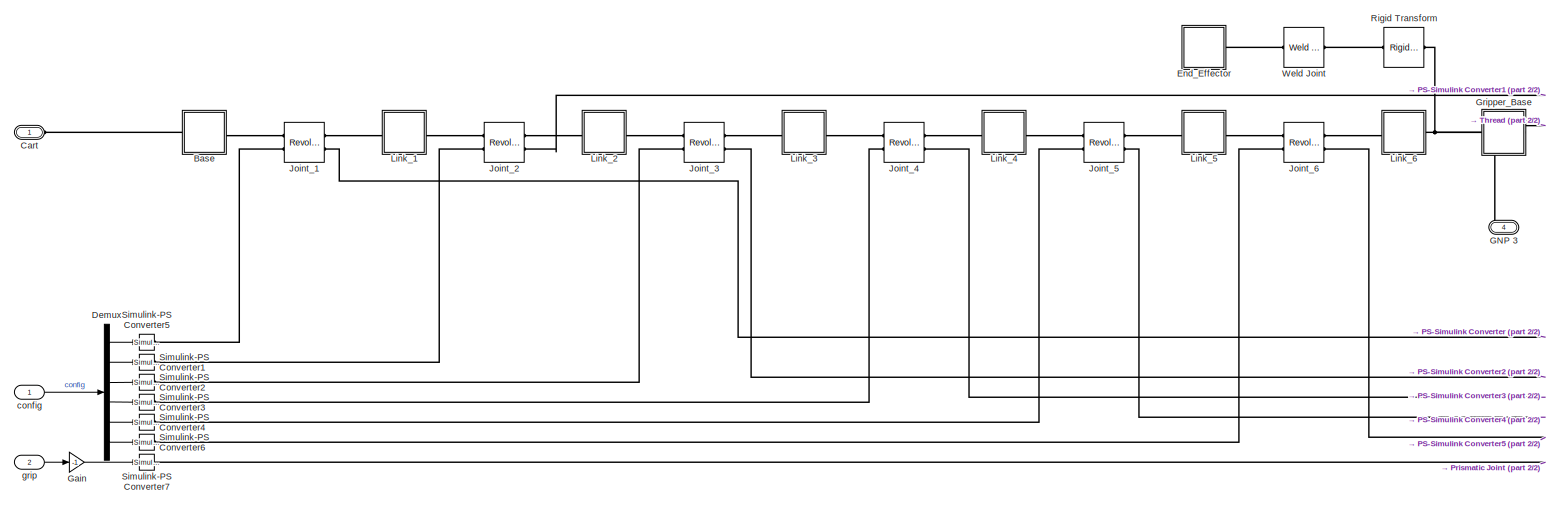
[diagram: Subsystem/Position Actuated Robot Environment1/Position Actuated Manipulator - part 1/2, most of the canvas]
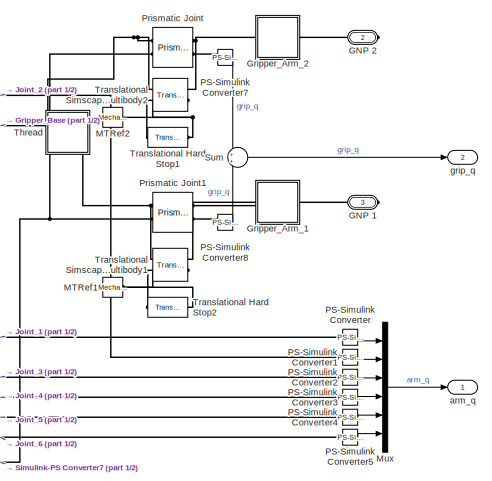
[diagram: Subsystem/Position Actuated Robot Environment1/Position Actuated Manipulator - part 2/2, right side, full height]
BLOCK [SubSystem] Subsystem/Position Actuated Robot Environment1/Position Actuated Manipulator
  Ports = [2, 2, 0, 0, 0, 1, 3]
BLOCK [SubSystem] Subsystem/Position Actuated Robot Environment1/Position Actuated Manipulator/Base
  Ports = [0, 0, 0, 0, 0, 1, 1]
BLOCK [PMIOPort] Subsystem/Position Actuated Robot Environment1/Position Actuated Manipulator/Base/F
  Side = Left
BLOCK [PMIOPort] Subsystem/Position Actuated Robot Environment1/Position Actuated Manipulator/Base/F1
  Port = 2
  Side = Right
BLOCK [Reference] Subsystem/Position Actuated Robot Environment1/Position Actuated Manipulator/Base/Inertia  REF=sm_lib/Body Elements/Inertia
  Ports = [0, 0, 0, 0, 0, 0, 1]
  SourceBlock = sm_lib/Body Elements/Inertia
  SourceType = Inertia
BLOCK [Reference] Subsystem/Position Actuated Robot Environment1/Position Actuated Manipulator/Base/InertiaOriginTransform  REF=sm_lib/Frames and
Transforms/Rigid
Transform
  Ports = [0, 0, 0, 0, 0, 1, 1]
  SourceBlock = sm_lib/Frames and\nTransforms/Rigid\nTransform
  SourceType = Rigid\nTransform
BLOCK [Reference] Subsystem/Position Actuated Robot Environment1/Position Actuated Manipulator/Base/ReferenceFrame  REF=sm_lib/Frames and
Transforms/Reference
Frame
  Ports = [0, 0, 0, 0, 0, 0, 1]
  SourceBlock = sm_lib/Frames and\nTransforms/Reference\nFrame
  SourceType = Reference\nFrame
BLOCK [Reference] Subsystem/Position Actuated Robot Environment1/Position Actuated Manipulator/Base/Visual  REF=sm_lib/Body Elements/File Solid
  Ports = [0, 0, 0, 0, 0, 0, 1]
  SourceBlock = sm_lib/Body Elements/File Solid
  SourceType = File Solid
BLOCK [Reference] Subsystem/Position Actuated Robot Environment1/Position Actuated Manipulator/Base/Visual1  REF=sm_lib/Body Elements/File Solid
  Ports = [0, 0, 0, 0, 0, 0, 1]
  SourceBlock = sm_lib/Body Elements/File Solid
  SourceType = File Solid
BLOCK [Reference] Subsystem/Position Actuated Robot Environment1/Position Actuated Manipulator/Base/Visual2  REF=sm_lib/Body Elements/File Solid
  Ports = [0, 0, 0, 0, 0, 0, 1]
  SourceBlock = sm_lib/Body Elements/File Solid
  SourceType = File Solid
BLOCK [Reference] Subsystem/Position Actuated Robot Environment1/Position Actuated Manipulator/Base/Visual3  REF=sm_lib/Body Elements/File Solid
  Ports = [0, 0, 0, 0, 0, 0, 1]
  SourceBlock = sm_lib/Body Elements/File Solid
  SourceType = File Solid
BLOCK [Reference] Subsystem/Position Actuated Robot Environment1/Position Actuated Manipulator/Base/VisualOrigin1Transform  REF=sm_lib/Frames and
Transforms/Rigid
Transform
  Ports = [0, 0, 0, 0, 0, 1, 1]
  SourceBlock = sm_lib/Frames and\nTransforms/Rigid\nTransform
  SourceType = Rigid\nTransform
BLOCK [Reference] Subsystem/Position Actuated Robot Environment1/Position Actuated Manipulator/Base/VisualOrigin2Transform  REF=sm_lib/Frames and
Transforms/Rigid
Transform
  Ports = [0, 0, 0, 0, 0, 1, 1]
  SourceBlock = sm_lib/Frames and\nTransforms/Rigid\nTransform
  SourceType = Rigid\nTransform
BLOCK [Reference] Subsystem/Position Actuated Robot Environment1/Position Actuated Manipulator/Base/VisualOrigin3Transform  REF=sm_lib/Frames and
Transforms/Rigid
Transform
  Ports = [0, 0, 0, 0, 0, 1, 1]
  SourceBlock = sm_lib/Frames and\nTransforms/Rigid\nTransform
  SourceType = Rigid\nTransform
BLOCK [Reference] Subsystem/Position Actuated Robot Environment1/Position Actuated Manipulator/Base/VisualOriginTransform  REF=sm_lib/Frames and
Transforms/Rigid
Transform
  Ports = [0, 0, 0, 0, 0, 1, 1]
  SourceBlock = sm_lib/Frames and\nTransforms/Rigid\nTransform
  SourceType = Rigid\nTransform
BLOCK [Reference] Subsystem/Position Actuated Robot Environment1/Position Actuated Manipulator/Base/x1_AxisTransform  REF=sm_lib/Frames and
Transforms/Rigid
Transform
  Ports = [0, 0, 0, 0, 0, 1, 1]
  SourceBlock = sm_lib/Frames and\nTransforms/Rigid\nTransform
  SourceType = Rigid\nTransform
BLOCK [Reference] Subsystem/Position Actuated Robot Environment1/Position Actuated Manipulator/Base/x1_OriginTransform  REF=sm_lib/Frames and
Transforms/Rigid
Transform
  Ports = [0, 0, 0, 0, 0, 1, 1]
  SourceBlock = sm_lib/Frames and\nTransforms/Rigid\nTransform
  SourceType = Rigid\nTransform
BLOCK [PMIOPort] Subsystem/Position Actuated Robot Environment1/Position Actuated Manipulator/Cart
  Side = Left
BLOCK [Demux] Subsystem/Position Actuated Robot Environment1/Position Actuated Manipulator/Demux
  Outputs = 6
  Ports = [1, 6]
BLOCK [SubSystem] Subsystem/Position Actuated Robot Environment1/Position Actuated Manipulator/End_Effector
  Ports = [0, 0, 0, 0, 0, 0, 1]
BLOCK [PMIOPort] Subsystem/Position Actuated Robot Environment1/Position Actuated Manipulator/End_Effector/F
  Side = Right
BLOCK [Reference] Subsystem/Position Actuated Robot Environment1/Position Actuated Manipulator/End_Effector/Inertia  REF=sm_lib/Body Elements/Inertia
  Ports = [0, 0, 0, 0, 0, 0, 1]
  SourceBlock = sm_lib/Body Elements/Inertia
  SourceType = Inertia
BLOCK [Reference] Subsystem/Position Actuated Robot Environment1/Position Actuated Manipulator/End_Effector/Reference Frame  REF=sm_lib/Frames and
Transforms/Reference
Frame
  Ports = [0, 0, 0, 0, 0, 0, 1]
  SourceBlock = sm_lib/Frames and\nTransforms/Reference\nFrame
  SourceType = Reference\nFrame
BLOCK [PMIOPort] Subsystem/Position Actuated Robot Environment1/Position Actuated Manipulator/GNP 1
  Port = 3
  Side = Right
BLOCK [PMIOPort] Subsystem/Position Actuated Robot Environment1/Position Actuated Manipulator/GNP 2
  Port = 2
  Side = Right
BLOCK [PMIOPort] Subsystem/Position Actuated Robot Environment1/Position Actuated Manipulator/GNP 3
  Port = 4
  Side = Right
BLOCK [Gain] Subsystem/Position Actuated Robot Environment1/Position Actuated Manipulator/Gain
  Gain = -1
BLOCK [SubSystem] Subsystem/Position Actuated Robot Environment1/Position Actuated Manipulator/Gripper_Arm_1
  Ports = [0, 0, 0, 0, 0, 1, 1]
BLOCK [PMIOPort] Subsystem/Position Actuated Robot Environment1/Position Actuated Manipulator/Gripper_Arm_1/F
  Side = Left
BLOCK [PMIOPort] Subsystem/Position Actuated Robot Environment1/Position Actuated Manipulator/Gripper_Arm_1/F2
  NameLocation = top
  Port = 2
  Side = Right
BLOCK [Reference] Subsystem/Position Actuated Robot Environment1/Position Actuated Manipulator/Gripper_Arm_1/Inertia  REF=sm_lib/Body Elements/Inertia
  Ports = [0, 0, 0, 0, 0, 0, 1]
  SourceBlock = sm_lib/Body Elements/Inertia
  SourceType = Inertia
BLOCK [Reference] Subsystem/Position Actuated Robot Environment1/Position Actuated Manipulator/Gripper_Arm_1/InertiaOriginTransform  REF=sm_lib/Frames and
Transforms/Rigid
Transform
  Ports = [0, 0, 0, 0, 0, 1, 1]
  SourceBlock = sm_lib/Frames and\nTransforms/Rigid\nTransform
  SourceType = Rigid\nTransform
BLOCK [Reference] Subsystem/Position Actuated Robot Environment1/Position Actuated Manipulator/Gripper_Arm_1/ReferenceFrame  REF=sm_lib/Frames and
Transforms/Reference
Frame
  Ports = [0, 0, 0, 0, 0, 0, 1]
  SourceBlock = sm_lib/Frames and\nTransforms/Reference\nFrame
  SourceType = Reference\nFrame
BLOCK [Reference] Subsystem/Position Actuated Robot Environment1/Position Actuated Manipulator/Gripper_Arm_1/Visual  REF=sm_lib/Body Elements/File Solid
  Ports = [0, 0, 0, 0, 0, 0, 1]
  SourceBlock = sm_lib/Body Elements/File Solid
  SourceType = File Solid
BLOCK [Reference] Subsystem/Position Actuated Robot Environment1/Position Actuated Manipulator/Gripper_Arm_1/VisualOriginTransform  REF=sm_lib/Frames and
Transforms/Rigid
Transform
  Ports = [0, 0, 0, 0, 0, 1, 1]
  SourceBlock = sm_lib/Frames and\nTransforms/Rigid\nTransform
  SourceType = Rigid\nTransform
BLOCK [Reference] Subsystem/Position Actuated Robot Environment1/Position Actuated Manipulator/Gripper_Arm_1/x8_AxisInvTransform  REF=sm_lib/Frames and
Transforms/Rigid
Transform
  Ports = [0, 0, 0, 0, 0, 1, 1]
  SourceBlock = sm_lib/Frames and\nTransforms/Rigid\nTransform
  SourceType = Rigid\nTransform
BLOCK [SubSystem] Subsystem/Position Actuated Robot Environment1/Position Actuated Manipulator/Gripper_Arm_2
  Ports = [0, 0, 0, 0, 0, 1, 1]
BLOCK [PMIOPort] Subsystem/Position Actuated Robot Environment1/Position Actuated Manipulator/Gripper_Arm_2/F
  Side = Left
BLOCK [PMIOPort] Subsystem/Position Actuated Robot Environment1/Position Actuated Manipulator/Gripper_Arm_2/F2
  NameLocation = top
  Port = 2
  Side = Right
BLOCK [Reference] Subsystem/Position Actuated Robot Environment1/Position Actuated Manipulator/Gripper_Arm_2/Inertia  REF=sm_lib/Body Elements/Inertia
  Ports = [0, 0, 0, 0, 0, 0, 1]
  SourceBlock = sm_lib/Body Elements/Inertia
  SourceType = Inertia
BLOCK [Reference] Subsystem/Position Actuated Robot Environment1/Position Actuated Manipulator/Gripper_Arm_2/InertiaOriginTransform  REF=sm_lib/Frames and
Transforms/Rigid
Transform
  Ports = [0, 0, 0, 0, 0, 1, 1]
  SourceBlock = sm_lib/Frames and\nTransforms/Rigid\nTransform
  SourceType = Rigid\nTransform
BLOCK [Reference] Subsystem/Position Actuated Robot Environment1/Position Actuated Manipulator/Gripper_Arm_2/ReferenceFrame  REF=sm_lib/Frames and
Transforms/Reference
Frame
  Ports = [0, 0, 0, 0, 0, 0, 1]
  SourceBlock = sm_lib/Frames and\nTransforms/Reference\nFrame
  SourceType = Reference\nFrame
BLOCK [Reference] Subsystem/Position Actuated Robot Environment1/Position Actuated Manipulator/Gripper_Arm_2/Visual  REF=sm_lib/Body Elements/File Solid
  Ports = [0, 0, 0, 0, 0, 0, 1]
  SourceBlock = sm_lib/Body Elements/File Solid
  SourceType = File Solid
BLOCK [Reference] Subsystem/Position Actuated Robot Environment1/Position Actuated Manipulator/Gripper_Arm_2/VisualOriginTransform  REF=sm_lib/Frames and
Transforms/Rigid
Transform
  Ports = [0, 0, 0, 0, 0, 1, 1]
  SourceBlock = sm_lib/Frames and\nTransforms/Rigid\nTransform
  SourceType = Rigid\nTransform
BLOCK [Reference] Subsystem/Position Actuated Robot Environment1/Position Actuated Manipulator/Gripper_Arm_2/x9_AxisInvTransform  REF=sm_lib/Frames and
Transforms/Rigid
Transform
  Ports = [0, 0, 0, 0, 0, 1, 1]
  SourceBlock = sm_lib/Frames and\nTransforms/Rigid\nTransform
  SourceType = Rigid\nTransform
BLOCK [SubSystem] Subsystem/Position Actuated Robot Environment1/Position Actuated Manipulator/Gripper_Base
  Ports = [0, 0, 0, 0, 0, 1, 1]
BLOCK [PMIOPort] Subsystem/Position Actuated Robot Environment1/Position Actuated Manipulator/Gripper_Base/F
  Side = Left
BLOCK [PMIOPort] Subsystem/Position Actuated Robot Environment1/Position Actuated Manipulator/Gripper_Base/F1
  Port = 2
  Side = Right
BLOCK [Reference] Subsystem/Position Actuated Robot Environment1/Position Actuated Manipulator/Gripper_Base/Inertia  REF=sm_lib/Body Elements/Inertia
  Ports = [0, 0, 0, 0, 0, 0, 1]
  SourceBlock = sm_lib/Body Elements/Inertia
  SourceType = Inertia
BLOCK [Reference] Subsystem/Position Actuated Robot Environment1/Position Actuated Manipulator/Gripper_Base/InertiaOriginTransform  REF=sm_lib/Frames and
Transforms/Rigid
Transform
  Ports = [0, 0, 0, 0, 0, 1, 1]
  SourceBlock = sm_lib/Frames and\nTransforms/Rigid\nTransform
  SourceType = Rigid\nTransform
BLOCK [Reference] Subsystem/Position Actuated Robot Environment1/Position Actuated Manipulator/Gripper_Base/ReferenceFrame  REF=sm_lib/Frames and
Transforms/Reference
Frame
  Ports = [0, 0, 0, 0, 0, 0, 1]
  SourceBlock = sm_lib/Frames and\nTransforms/Reference\nFrame
  SourceType = Reference\nFrame
BLOCK [Reference] Subsystem/Position Actuated Robot Environment1/Position Actuated Manipulator/Gripper_Base/Visual  REF=sm_lib/Body Elements/File Solid
  Ports = [0, 0, 0, 0, 0, 0, 1]
  SourceBlock = sm_lib/Body Elements/File Solid
  SourceType = File Solid
BLOCK [Reference] Subsystem/Position Actuated Robot Environment1/Position Actuated Manipulator/Gripper_Base/VisualOriginTransform  REF=sm_lib/Frames and
Transforms/Rigid
Transform
  Ports = [0, 0, 0, 0, 0, 1, 1]
  SourceBlock = sm_lib/Frames and\nTransforms/Rigid\nTransform
  SourceType = Rigid\nTransform
BLOCK [Reference] Subsystem/Position Actuated Robot Environment1/Position Actuated Manipulator/Gripper_Base/x12_AxisInvTransform  REF=sm_lib/Frames and
Transforms/Rigid
Transform
  Ports = [0, 0, 0, 0, 0, 1, 1]
  SourceBlock = sm_lib/Frames and\nTransforms/Rigid\nTransform
  SourceType = Rigid\nTransform
BLOCK [Reference] Subsystem/Position Actuated Robot Environment1/Position Actuated Manipulator/Gripper_Base/x7_AxisTransform  REF=sm_lib/Frames and
Transforms/Rigid
Transform
  Ports = [0, 0, 0, 0, 0, 1, 1]
  SourceBlock = sm_lib/Frames and\nTransforms/Rigid\nTransform
  SourceType = Rigid\nTransform
BLOCK [Reference] Subsystem/Position Actuated Robot Environment1/Position Actuated Manipulator/Gripper_Base/x7_OriginTransform  REF=sm_lib/Frames and
Transforms/Rigid
Transform
  Ports = [0, 0, 0, 0, 0, 1, 1]
  SourceBlock = sm_lib/Frames and\nTransforms/Rigid\nTransform
  SourceType = Rigid\nTransform
BLOCK [Reference] Subsystem/Position Actuated Robot Environment1/Position Actuated Manipulator/Joint_1  REF=sm_lib/Joints/Revolute Joint
  Ports = [0, 0, 0, 0, 0, 2, 2]
  SourceBlock = sm_lib/Joints/Revolute Joint
  SourceType = Revolute Joint
BLOCK [Reference] Subsystem/Position Actuated Robot Environment1/Position Actuated Manipulator/Joint_2  REF=sm_lib/Joints/Revolute Joint
  Ports = [0, 0, 0, 0, 0, 2, 2]
  SourceBlock = sm_lib/Joints/Revolute Joint
  SourceType = Revolute Joint
BLOCK [Reference] Subsystem/Position Actuated Robot Environment1/Position Actuated Manipulator/Joint_3  REF=sm_lib/Joints/Revolute Joint
  Ports = [0, 0, 0, 0, 0, 2, 2]
  SourceBlock = sm_lib/Joints/Revolute Joint
  SourceType = Revolute Joint
BLOCK [Reference] Subsystem/Position Actuated Robot Environment1/Position Actuated Manipulator/Joint_4  REF=sm_lib/Joints/Revolute Joint
  Ports = [0, 0, 0, 0, 0, 2, 2]
  SourceBlock = sm_lib/Joints/Revolute Joint
  SourceType = Revolute Joint
BLOCK [Reference] Subsystem/Position Actuated Robot Environment1/Position Actuated Manipulator/Joint_5  REF=sm_lib/Joints/Revolute Joint
  Ports = [0, 0, 0, 0, 0, 2, 2]
  SourceBlock = sm_lib/Joints/Revolute Joint
  SourceType = Revolute Joint
BLOCK [Reference] Subsystem/Position Actuated Robot Environment1/Position Actuated Manipulator/Joint_6  REF=sm_lib/Joints/Revolute Joint
  Ports = [0, 0, 0, 0, 0, 2, 2]
  SourceBlock = sm_lib/Joints/Revolute Joint
  SourceType = Revolute Joint
BLOCK [SubSystem] Subsystem/Position Actuated Robot Environment1/Position Actuated Manipulator/Link_1
  Ports = [0, 0, 0, 0, 0, 1, 1]
BLOCK [PMIOPort] Subsystem/Position Actuated Robot Environment1/Position Actuated Manipulator/Link_1/F
  Side = Left
BLOCK [PMIOPort] Subsystem/Position Actuated Robot Environment1/Position Actuated Manipulator/Link_1/F1
  Port = 2
  Side = Right
BLOCK [Reference] Subsystem/Position Actuated Robot Environment1/Position Actuated Manipulator/Link_1/Inertia  REF=sm_lib/Body Elements/Inertia
  Ports = [0, 0, 0, 0, 0, 0, 1]
  SourceBlock = sm_lib/Body Elements/Inertia
  SourceType = Inertia
BLOCK [Reference] Subsystem/Position Actuated Robot Environment1/Position Actuated Manipulator/Link_1/InertiaOriginTransform  REF=sm_lib/Frames and
Transforms/Rigid
Transform
  Ports = [0, 0, 0, 0, 0, 1, 1]
  SourceBlock = sm_lib/Frames and\nTransforms/Rigid\nTransform
  SourceType = Rigid\nTransform
BLOCK [Reference] Subsystem/Position Actuated Robot Environment1/Position Actuated Manipulator/Link_1/ReferenceFrame  REF=sm_lib/Frames and
Transforms/Reference
Frame
  Ports = [0, 0, 0, 0, 0, 0, 1]
  SourceBlock = sm_lib/Frames and\nTransforms/Reference\nFrame
  SourceType = Reference\nFrame
BLOCK [Reference] Subsystem/Position Actuated Robot Environment1/Position Actuated Manipulator/Link_1/Visual  REF=sm_lib/Body Elements/File Solid
  Ports = [0, 0, 0, 0, 0, 0, 1]
  SourceBlock = sm_lib/Body Elements/File Solid
  SourceType = File Solid
BLOCK [Reference] Subsystem/Position Actuated Robot Environment1/Position Actuated Manipulator/Link_1/Visual1  REF=sm_lib/Body Elements/File Solid
  Ports = [0, 0, 0, 0, 0, 0, 1]
  SourceBlock = sm_lib/Body Elements/File Solid
  SourceType = File Solid
BLOCK [Reference] Subsystem/Position Actuated Robot Environment1/Position Actuated Manipulator/Link_1/VisualOrigin1Transform  REF=sm_lib/Frames and
Transforms/Rigid
Transform
  Ports = [0, 0, 0, 0, 0, 1, 1]
  SourceBlock = sm_lib/Frames and\nTransforms/Rigid\nTransform
  SourceType = Rigid\nTransform
BLOCK [Reference] Subsystem/Position Actuated Robot Environment1/Position Actuated Manipulator/Link_1/VisualOriginTransform  REF=sm_lib/Frames and
Transforms/Rigid
Transform
  Ports = [0, 0, 0, 0, 0, 1, 1]
  SourceBlock = sm_lib/Frames and\nTransforms/Rigid\nTransform
  SourceType = Rigid\nTransform
BLOCK [Reference] Subsystem/Position Actuated Robot Environment1/Position Actuated Manipulator/Link_1/x1_AxisInvTransform  REF=sm_lib/Frames and
Transforms/Rigid
Transform
  Ports = [0, 0, 0, 0, 0, 1, 1]
  SourceBlock = sm_lib/Frames and\nTransforms/Rigid\nTransform
  SourceType = Rigid\nTransform
BLOCK [Reference] Subsystem/Position Actuated Robot Environment1/Position Actuated Manipulator/Link_1/x2_AxisTransform  REF=sm_lib/Frames and
Transforms/Rigid
Transform
  Ports = [0, 0, 0, 0, 0, 1, 1]
  SourceBlock = sm_lib/Frames and\nTransforms/Rigid\nTransform
  SourceType = Rigid\nTransform
BLOCK [Reference] Subsystem/Position Actuated Robot Environment1/Position Actuated Manipulator/Link_1/x2_OriginTransform  REF=sm_lib/Frames and
Transforms/Rigid
Transform
  Ports = [0, 0, 0, 0, 0, 1, 1]
  SourceBlock = sm_lib/Frames and\nTransforms/Rigid\nTransform
  SourceType = Rigid\nTransform
BLOCK [SubSystem] Subsystem/Position Actuated Robot Environment1/Position Actuated Manipulator/Link_2
  Ports = [0, 0, 0, 0, 0, 1, 1]
BLOCK [PMIOPort] Subsystem/Position Actuated Robot Environment1/Position Actuated Manipulator/Link_2/F
  Side = Left
BLOCK [PMIOPort] Subsystem/Position Actuated Robot Environment1/Position Actuated Manipulator/Link_2/F1
  Port = 2
  Side = Right
BLOCK [Reference] Subsystem/Position Actuated Robot Environment1/Position Actuated Manipulator/Link_2/Inertia  REF=sm_lib/Body Elements/Inertia
  Ports = [0, 0, 0, 0, 0, 0, 1]
  SourceBlock = sm_lib/Body Elements/Inertia
  SourceType = Inertia
BLOCK [Reference] Subsystem/Position Actuated Robot Environment1/Position Actuated Manipulator/Link_2/InertiaOriginTransform  REF=sm_lib/Frames and
Transforms/Rigid
Transform
  Ports = [0, 0, 0, 0, 0, 1, 1]
  SourceBlock = sm_lib/Frames and\nTransforms/Rigid\nTransform
  SourceType = Rigid\nTransform
BLOCK [Reference] Subsystem/Position Actuated Robot Environment1/Position Actuated Manipulator/Link_2/ReferenceFrame  REF=sm_lib/Frames and
Transforms/Reference
Frame
  Ports = [0, 0, 0, 0, 0, 0, 1]
  SourceBlock = sm_lib/Frames and\nTransforms/Reference\nFrame
  SourceType = Reference\nFrame
BLOCK [Reference] Subsystem/Position Actuated Robot Environment1/Position Actuated Manipulator/Link_2/Visual  REF=sm_lib/Body Elements/File Solid
  Ports = [0, 0, 0, 0, 0, 0, 1]
  SourceBlock = sm_lib/Body Elements/File Solid
  SourceType = File Solid
BLOCK [Reference] Subsystem/Position Actuated Robot Environment1/Position Actuated Manipulator/Link_2/Visual1  REF=sm_lib/Body Elements/File Solid
  Ports = [0, 0, 0, 0, 0, 0, 1]
  SourceBlock = sm_lib/Body Elements/File Solid
  SourceType = File Solid
BLOCK [Reference] Subsystem/Position Actuated Robot Environment1/Position Actuated Manipulator/Link_2/Visual2  REF=sm_lib/Body Elements/File Solid
  Ports = [0, 0, 0, 0, 0, 0, 1]
  SourceBlock = sm_lib/Body Elements/File Solid
  SourceType = File Solid
BLOCK [Reference] Subsystem/Position Actuated Robot Environment1/Position Actuated Manipulator/Link_2/VisualOrigin1Transform  REF=sm_lib/Frames and
Transforms/Rigid
Transform
  Ports = [0, 0, 0, 0, 0, 1, 1]
  SourceBlock = sm_lib/Frames and\nTransforms/Rigid\nTransform
  SourceType = Rigid\nTransform
BLOCK [Reference] Subsystem/Position Actuated Robot Environment1/Position Actuated Manipulator/Link_2/VisualOrigin2Transform  REF=sm_lib/Frames and
Transforms/Rigid
Transform
  Ports = [0, 0, 0, 0, 0, 1, 1]
  SourceBlock = sm_lib/Frames and\nTransforms/Rigid\nTransform
  SourceType = Rigid\nTransform
BLOCK [Reference] Subsystem/Position Actuated Robot Environment1/Position Actuated Manipulator/Link_2/VisualOriginTransform  REF=sm_lib/Frames and
Transforms/Rigid
Transform
  Ports = [0, 0, 0, 0, 0, 1, 1]
  SourceBlock = sm_lib/Frames and\nTransforms/Rigid\nTransform
  SourceType = Rigid\nTransform
BLOCK [Reference] Subsystem/Position Actuated Robot Environment1/Position Actuated Manipulator/Link_2/x2_AxisInvTransform  REF=sm_lib/Frames and
Transforms/Rigid
Transform
  Ports = [0, 0, 0, 0, 0, 1, 1]
  SourceBlock = sm_lib/Frames and\nTransforms/Rigid\nTransform
  SourceType = Rigid\nTransform
BLOCK [Reference] Subsystem/Position Actuated Robot Environment1/Position Actuated Manipulator/Link_2/x3_AxisTransform  REF=sm_lib/Frames and
Transforms/Rigid
Transform
  Ports = [0, 0, 0, 0, 0, 1, 1]
  SourceBlock = sm_lib/Frames and\nTransforms/Rigid\nTransform
  SourceType = Rigid\nTransform
BLOCK [Reference] Subsystem/Position Actuated Robot Environment1/Position Actuated Manipulator/Link_2/x3_OriginTransform  REF=sm_lib/Frames and
Transforms/Rigid
Transform
  Ports = [0, 0, 0, 0, 0, 1, 1]
  SourceBlock = sm_lib/Frames and\nTransforms/Rigid\nTransform
  SourceType = Rigid\nTransform
BLOCK [SubSystem] Subsystem/Position Actuated Robot Environment1/Position Actuated Manipulator/Link_3
  Ports = [0, 0, 0, 0, 0, 1, 1]
BLOCK [PMIOPort] Subsystem/Position Actuated Robot Environment1/Position Actuated Manipulator/Link_3/F
  Side = Left
BLOCK [PMIOPort] Subsystem/Position Actuated Robot Environment1/Position Actuated Manipulator/Link_3/F1
  Port = 2
  Side = Right
BLOCK [Reference] Subsystem/Position Actuated Robot Environment1/Position Actuated Manipulator/Link_3/Inertia  REF=sm_lib/Body Elements/Inertia
  Ports = [0, 0, 0, 0, 0, 0, 1]
  SourceBlock = sm_lib/Body Elements/Inertia
  SourceType = Inertia
BLOCK [Reference] Subsystem/Position Actuated Robot Environment1/Position Actuated Manipulator/Link_3/InertiaOriginTransform  REF=sm_lib/Frames and
Transforms/Rigid
Transform
  Ports = [0, 0, 0, 0, 0, 1, 1]
  SourceBlock = sm_lib/Frames and\nTransforms/Rigid\nTransform
  SourceType = Rigid\nTransform
BLOCK [Reference] Subsystem/Position Actuated Robot Environment1/Position Actuated Manipulator/Link_3/ReferenceFrame  REF=sm_lib/Frames and
Transforms/Reference
Frame
  Ports = [0, 0, 0, 0, 0, 0, 1]
  SourceBlock = sm_lib/Frames and\nTransforms/Reference\nFrame
  SourceType = Reference\nFrame
BLOCK [Reference] Subsystem/Position Actuated Robot Environment1/Position Actuated Manipulator/Link_3/Visual  REF=sm_lib/Body Elements/File Solid
  Ports = [0, 0, 0, 0, 0, 0, 1]
  SourceBlock = sm_lib/Body Elements/File Solid
  SourceType = File Solid
BLOCK [Reference] Subsystem/Position Actuated Robot Environment1/Position Actuated Manipulator/Link_3/Visual1  REF=sm_lib/Body Elements/File Solid
  Ports = [0, 0, 0, 0, 0, 0, 1]
  SourceBlock = sm_lib/Body Elements/File Solid
  SourceType = File Solid
BLOCK [Reference] Subsystem/Position Actuated Robot Environment1/Position Actuated Manipulator/Link_3/VisualOrigin1Transform  REF=sm_lib/Frames and
Transforms/Rigid
Transform
  Ports = [0, 0, 0, 0, 0, 1, 1]
  SourceBlock = sm_lib/Frames and\nTransforms/Rigid\nTransform
  SourceType = Rigid\nTransform
BLOCK [Reference] Subsystem/Position Actuated Robot Environment1/Position Actuated Manipulator/Link_3/VisualOriginTransform  REF=sm_lib/Frames and
Transforms/Rigid
Transform
  Ports = [0, 0, 0, 0, 0, 1, 1]
  SourceBlock = sm_lib/Frames and\nTransforms/Rigid\nTransform
  SourceType = Rigid\nTransform
BLOCK [Reference] Subsystem/Position Actuated Robot Environment1/Position Actuated Manipulator/Link_3/x3_AxisInvTransform  REF=sm_lib/Frames and
Transforms/Rigid
Transform
  Ports = [0, 0, 0, 0, 0, 1, 1]
  SourceBlock = sm_lib/Frames and\nTransforms/Rigid\nTransform
  SourceType = Rigid\nTransform
BLOCK [Reference] Subsystem/Position Actuated Robot Environment1/Position Actuated Manipulator/Link_3/x4_AxisTransform  REF=sm_lib/Frames and
Transforms/Rigid
Transform
  Ports = [0, 0, 0, 0, 0, 1, 1]
  SourceBlock = sm_lib/Frames and\nTransforms/Rigid\nTransform
  SourceType = Rigid\nTransform
BLOCK [Reference] Subsystem/Position Actuated Robot Environment1/Position Actuated Manipulator/Link_3/x4_OriginTransform  REF=sm_lib/Frames and
Transforms/Rigid
Transform
  Ports = [0, 0, 0, 0, 0, 1, 1]
  SourceBlock = sm_lib/Frames and\nTransforms/Rigid\nTransform
  SourceType = Rigid\nTransform
BLOCK [SubSystem] Subsystem/Position Actuated Robot Environment1/Position Actuated Manipulator/Link_4
  Ports = [0, 0, 0, 0, 0, 1, 1]
BLOCK [PMIOPort] Subsystem/Position Actuated Robot Environment1/Position Actuated Manipulator/Link_4/F
  Side = Left
BLOCK [PMIOPort] Subsystem/Position Actuated Robot Environment1/Position Actuated Manipulator/Link_4/F1
  Port = 2
  Side = Right
BLOCK [Reference] Subsystem/Position Actuated Robot Environment1/Position Actuated Manipulator/Link_4/Inertia  REF=sm_lib/Body Elements/Inertia
  Ports = [0, 0, 0, 0, 0, 0, 1]
  SourceBlock = sm_lib/Body Elements/Inertia
  SourceType = Inertia
BLOCK [Reference] Subsystem/Position Actuated Robot Environment1/Position Actuated Manipulator/Link_4/InertiaOriginTransform  REF=sm_lib/Frames and
Transforms/Rigid
Transform
  Ports = [0, 0, 0, 0, 0, 1, 1]
  SourceBlock = sm_lib/Frames and\nTransforms/Rigid\nTransform
  SourceType = Rigid\nTransform
BLOCK [Reference] Subsystem/Position Actuated Robot Environment1/Position Actuated Manipulator/Link_4/ReferenceFrame  REF=sm_lib/Frames and
Transforms/Reference
Frame
  Ports = [0, 0, 0, 0, 0, 0, 1]
  SourceBlock = sm_lib/Frames and\nTransforms/Reference\nFrame
  SourceType = Reference\nFrame
BLOCK [Reference] Subsystem/Position Actuated Robot Environment1/Position Actuated Manipulator/Link_4/Visual  REF=sm_lib/Body Elements/File Solid
  Ports = [0, 0, 0, 0, 0, 0, 1]
  SourceBlock = sm_lib/Body Elements/File Solid
  SourceType = File Solid
BLOCK [Reference] Subsystem/Position Actuated Robot Environment1/Position Actuated Manipulator/Link_4/Visual1  REF=sm_lib/Body Elements/File Solid
  Ports = [0, 0, 0, 0, 0, 0, 1]
  SourceBlock = sm_lib/Body Elements/File Solid
  SourceType = File Solid
BLOCK [Reference] Subsystem/Position Actuated Robot Environment1/Position Actuated Manipulator/Link_4/Visual2  REF=sm_lib/Body Elements/File Solid
  Ports = [0, 0, 0, 0, 0, 0, 1]
  SourceBlock = sm_lib/Body Elements/File Solid
  SourceType = File Solid
BLOCK [Reference] Subsystem/Position Actuated Robot Environment1/Position Actuated Manipulator/Link_4/VisualOrigin1Transform  REF=sm_lib/Frames and
Transforms/Rigid
Transform
  Ports = [0, 0, 0, 0, 0, 1, 1]
  SourceBlock = sm_lib/Frames and\nTransforms/Rigid\nTransform
  SourceType = Rigid\nTransform
BLOCK [Reference] Subsystem/Position Actuated Robot Environment1/Position Actuated Manipulator/Link_4/VisualOrigin2Transform  REF=sm_lib/Frames and
Transforms/Rigid
Transform
  Ports = [0, 0, 0, 0, 0, 1, 1]
  SourceBlock = sm_lib/Frames and\nTransforms/Rigid\nTransform
  SourceType = Rigid\nTransform
BLOCK [Reference] Subsystem/Position Actuated Robot Environment1/Position Actuated Manipulator/Link_4/VisualOriginTransform  REF=sm_lib/Frames and
Transforms/Rigid
Transform
  Ports = [0, 0, 0, 0, 0, 1, 1]
  SourceBlock = sm_lib/Frames and\nTransforms/Rigid\nTransform
  SourceType = Rigid\nTransform
BLOCK [Reference] Subsystem/Position Actuated Robot Environment1/Position Actuated Manipulator/Link_4/x4_AxisInvTransform  REF=sm_lib/Frames and
Transforms/Rigid
Transform
  Ports = [0, 0, 0, 0, 0, 1, 1]
  SourceBlock = sm_lib/Frames and\nTransforms/Rigid\nTransform
  SourceType = Rigid\nTransform
BLOCK [Reference] Subsystem/Position Actuated Robot Environment1/Position Actuated Manipulator/Link_4/x5_AxisTransform  REF=sm_lib/Frames and
Transforms/Rigid
Transform
  Ports = [0, 0, 0, 0, 0, 1, 1]
  SourceBlock = sm_lib/Frames and\nTransforms/Rigid\nTransform
  SourceType = Rigid\nTransform
BLOCK [Reference] Subsystem/Position Actuated Robot Environment1/Position Actuated Manipulator/Link_4/x5_OriginTransform  REF=sm_lib/Frames and
Transforms/Rigid
Transform
  Ports = [0, 0, 0, 0, 0, 1, 1]
  SourceBlock = sm_lib/Frames and\nTransforms/Rigid\nTransform
  SourceType = Rigid\nTransform
BLOCK [SubSystem] Subsystem/Position Actuated Robot Environment1/Position Actuated Manipulator/Link_5
  Ports = [0, 0, 0, 0, 0, 1, 1]
BLOCK [PMIOPort] Subsystem/Position Actuated Robot Environment1/Position Actuated Manipulator/Link_5/F
  Side = Left
BLOCK [PMIOPort] Subsystem/Position Actuated Robot Environment1/Position Actuated Manipulator/Link_5/F1
  Port = 2
  Side = Right
BLOCK [Reference] Subsystem/Position Actuated Robot Environment1/Position Actuated Manipulator/Link_5/Inertia  REF=sm_lib/Body Elements/Inertia
  Ports = [0, 0, 0, 0, 0, 0, 1]
  SourceBlock = sm_lib/Body Elements/Inertia
  SourceType = Inertia
BLOCK [Reference] Subsystem/Position Actuated Robot Environment1/Position Actuated Manipulator/Link_5/InertiaOriginTransform  REF=sm_lib/Frames and
Transforms/Rigid
Transform
  Ports = [0, 0, 0, 0, 0, 1, 1]
  SourceBlock = sm_lib/Frames and\nTransforms/Rigid\nTransform
  SourceType = Rigid\nTransform
BLOCK [Reference] Subsystem/Position Actuated Robot Environment1/Position Actuated Manipulator/Link_5/ReferenceFrame  REF=sm_lib/Frames and
Transforms/Reference
Frame
  Ports = [0, 0, 0, 0, 0, 0, 1]
  SourceBlock = sm_lib/Frames and\nTransforms/Reference\nFrame
  SourceType = Reference\nFrame
BLOCK [Reference] Subsystem/Position Actuated Robot Environment1/Position Actuated Manipulator/Link_5/Visual  REF=sm_lib/Body Elements/File Solid
  Ports = [0, 0, 0, 0, 0, 0, 1]
  SourceBlock = sm_lib/Body Elements/File Solid
  SourceType = File Solid
BLOCK [Reference] Subsystem/Position Actuated Robot Environment1/Position Actuated Manipulator/Link_5/Visual1  REF=sm_lib/Body Elements/File Solid
  Ports = [0, 0, 0, 0, 0, 0, 1]
  SourceBlock = sm_lib/Body Elements/File Solid
  SourceType = File Solid
BLOCK [Reference] Subsystem/Position Actuated Robot Environment1/Position Actuated Manipulator/Link_5/VisualOrigin1Transform  REF=sm_lib/Frames and
Transforms/Rigid
Transform
  Ports = [0, 0, 0, 0, 0, 1, 1]
  SourceBlock = sm_lib/Frames and\nTransforms/Rigid\nTransform
  SourceType = Rigid\nTransform
BLOCK [Reference] Subsystem/Position Actuated Robot Environment1/Position Actuated Manipulator/Link_5/VisualOriginTransform  REF=sm_lib/Frames and
Transforms/Rigid
Transform
  Ports = [0, 0, 0, 0, 0, 1, 1]
  SourceBlock = sm_lib/Frames and\nTransforms/Rigid\nTransform
  SourceType = Rigid\nTransform
BLOCK [Reference] Subsystem/Position Actuated Robot Environment1/Position Actuated Manipulator/Link_5/x5_AxisInvTransform  REF=sm_lib/Frames and
Transforms/Rigid
Transform
  Ports = [0, 0, 0, 0, 0, 1, 1]
  SourceBlock = sm_lib/Frames and\nTransforms/Rigid\nTransform
  SourceType = Rigid\nTransform
BLOCK [Reference] Subsystem/Position Actuated Robot Environment1/Position Actuated Manipulator/Link_5/x6_AxisTransform  REF=sm_lib/Frames and
Transforms/Rigid
Transform
  Ports = [0, 0, 0, 0, 0, 1, 1]
  SourceBlock = sm_lib/Frames and\nTransforms/Rigid\nTransform
  SourceType = Rigid\nTransform
BLOCK [Reference] Subsystem/Position Actuated Robot Environment1/Position Actuated Manipulator/Link_5/x6_OriginTransform  REF=sm_lib/Frames and
Transforms/Rigid
Transform
  Ports = [0, 0, 0, 0, 0, 1, 1]
  SourceBlock = sm_lib/Frames and\nTransforms/Rigid\nTransform
  SourceType = Rigid\nTransform
BLOCK [SubSystem] Subsystem/Position Actuated Robot Environment1/Position Actuated Manipulator/Link_6
  Ports = [0, 0, 0, 0, 0, 1, 1]
BLOCK [PMIOPort] Subsystem/Position Actuated Robot Environment1/Position Actuated Manipulator/Link_6/F
  Side = Left
BLOCK [PMIOPort] Subsystem/Position Actuated Robot Environment1/Position Actuated Manipulator/Link_6/F1
  Port = 2
  Side = Right
BLOCK [Reference] Subsystem/Position Actuated Robot Environment1/Position Actuated Manipulator/Link_6/Inertia  REF=sm_lib/Body Elements/Inertia
  Ports = [0, 0, 0, 0, 0, 0, 1]
  SourceBlock = sm_lib/Body Elements/Inertia
  SourceType = Inertia
BLOCK [Reference] Subsystem/Position Actuated Robot Environment1/Position Actuated Manipulator/Link_6/InertiaOriginTransform  REF=sm_lib/Frames and
Transforms/Rigid
Transform
  Ports = [0, 0, 0, 0, 0, 1, 1]
  SourceBlock = sm_lib/Frames and\nTransforms/Rigid\nTransform
  SourceType = Rigid\nTransform
BLOCK [Reference] Subsystem/Position Actuated Robot Environment1/Position Actuated Manipulator/Link_6/ReferenceFrame  REF=sm_lib/Frames and
Transforms/Reference
Frame
  Ports = [0, 0, 0, 0, 0, 0, 1]
  SourceBlock = sm_lib/Frames and\nTransforms/Reference\nFrame
  SourceType = Reference\nFrame
BLOCK [Reference] Subsystem/Position Actuated Robot Environment1/Position Actuated Manipulator/Link_6/Visual  REF=sm_lib/Body Elements/File Solid
  Ports = [0, 0, 0, 0, 0, 0, 1]
  SourceBlock = sm_lib/Body Elements/File Solid
  SourceType = File Solid
BLOCK [Reference] Subsystem/Position Actuated Robot Environment1/Position Actuated Manipulator/Link_6/Visual1  REF=sm_lib/Body Elements/File Solid
  Ports = [0, 0, 0, 0, 0, 0, 1]
  SourceBlock = sm_lib/Body Elements/File Solid
  SourceType = File Solid
BLOCK [Reference] Subsystem/Position Actuated Robot Environment1/Position Actuated Manipulator/Link_6/Visual2  REF=sm_lib/Body Elements/File Solid
  Ports = [0, 0, 0, 0, 0, 0, 1]
  SourceBlock = sm_lib/Body Elements/File Solid
  SourceType = File Solid
BLOCK [Reference] Subsystem/Position Actuated Robot Environment1/Position Actuated Manipulator/Link_6/Visual3  REF=sm_lib/Body Elements/File Solid
  Ports = [0, 0, 0, 0, 0, 0, 1]
  SourceBlock = sm_lib/Body Elements/File Solid
  SourceType = File Solid
BLOCK [Reference] Subsystem/Position Actuated Robot Environment1/Position Actuated Manipulator/Link_6/Visual4  REF=sm_lib/Body Elements/File Solid
  Ports = [0, 0, 0, 0, 0, 0, 1]
  SourceBlock = sm_lib/Body Elements/File Solid
  SourceType = File Solid
BLOCK [Reference] Subsystem/Position Actuated Robot Environment1/Position Actuated Manipulator/Link_6/Visual5  REF=sm_lib/Body Elements/File Solid
  Ports = [0, 0, 0, 0, 0, 0, 1]
  SourceBlock = sm_lib/Body Elements/File Solid
  SourceType = File Solid
BLOCK [Reference] Subsystem/Position Actuated Robot Environment1/Position Actuated Manipulator/Link_6/Visual6  REF=sm_lib/Body Elements/File Solid
  Ports = [0, 0, 0, 0, 0, 0, 1]
  SourceBlock = sm_lib/Body Elements/File Solid
  SourceType = File Solid
BLOCK [Reference] Subsystem/Position Actuated Robot Environment1/Position Actuated Manipulator/Link_6/Visual7  REF=sm_lib/Body Elements/File Solid
  Ports = [0, 0, 0, 0, 0, 0, 1]
  SourceBlock = sm_lib/Body Elements/File Solid
  SourceType = File Solid
BLOCK [Reference] Subsystem/Position Actuated Robot Environment1/Position Actuated Manipulator/Link_6/VisualOrigin1Transform  REF=sm_lib/Frames and
Transforms/Rigid
Transform
  Ports = [0, 0, 0, 0, 0, 1, 1]
  SourceBlock = sm_lib/Frames and\nTransforms/Rigid\nTransform
  SourceType = Rigid\nTransform
BLOCK [Reference] Subsystem/Position Actuated Robot Environment1/Position Actuated Manipulator/Link_6/VisualOrigin2Transform  REF=sm_lib/Frames and
Transforms/Rigid
Transform
  Ports = [0, 0, 0, 0, 0, 1, 1]
  SourceBlock = sm_lib/Frames and\nTransforms/Rigid\nTransform
  SourceType = Rigid\nTransform
BLOCK [Reference] Subsystem/Position Actuated Robot Environment1/Position Actuated Manipulator/Link_6/VisualOrigin3Transform  REF=sm_lib/Frames and
Transforms/Rigid
Transform
  Ports = [0, 0, 0, 0, 0, 1, 1]
  SourceBlock = sm_lib/Frames and\nTransforms/Rigid\nTransform
  SourceType = Rigid\nTransform
BLOCK [Reference] Subsystem/Position Actuated Robot Environment1/Position Actuated Manipulator/Link_6/VisualOrigin4Transform  REF=sm_lib/Frames and
Transforms/Rigid
Transform
  Ports = [0, 0, 0, 0, 0, 1, 1]
  SourceBlock = sm_lib/Frames and\nTransforms/Rigid\nTransform
  SourceType = Rigid\nTransform
BLOCK [Reference] Subsystem/Position Actuated Robot Environment1/Position Actuated Manipulator/Link_6/VisualOrigin5Transform  REF=sm_lib/Frames and
Transforms/Rigid
Transform
  Ports = [0, 0, 0, 0, 0, 1, 1]
  SourceBlock = sm_lib/Frames and\nTransforms/Rigid\nTransform
  SourceType = Rigid\nTransform
BLOCK [Reference] Subsystem/Position Actuated Robot Environment1/Position Actuated Manipulator/Link_6/VisualOrigin6Transform  REF=sm_lib/Frames and
Transforms/Rigid
Transform
  Ports = [0, 0, 0, 0, 0, 1, 1]
  SourceBlock = sm_lib/Frames and\nTransforms/Rigid\nTransform
  SourceType = Rigid\nTransform
BLOCK [Reference] Subsystem/Position Actuated Robot Environment1/Position Actuated Manipulator/Link_6/VisualOrigin7Transform  REF=sm_lib/Frames and
Transforms/Rigid
Transform
  Ports = [0, 0, 0, 0, 0, 1, 1]
  SourceBlock = sm_lib/Frames and\nTransforms/Rigid\nTransform
  SourceType = Rigid\nTransform
BLOCK [Reference] Subsystem/Position Actuated Robot Environment1/Position Actuated Manipulator/Link_6/VisualOriginTransform  REF=sm_lib/Frames and
Transforms/Rigid
Transform
  Ports = [0, 0, 0, 0, 0, 1, 1]
  SourceBlock = sm_lib/Frames and\nTransforms/Rigid\nTransform
  SourceType = Rigid\nTransform
BLOCK [Reference] Subsystem/Position Actuated Robot Environment1/Position Actuated Manipulator/Link_6/x12_AxisTransform  REF=sm_lib/Frames and
Transforms/Rigid
Transform
  Ports = [0, 0, 0, 0, 0, 1, 1]
  SourceBlock = sm_lib/Frames and\nTransforms/Rigid\nTransform
  SourceType = Rigid\nTransform
BLOCK [Reference] Subsystem/Position Actuated Robot Environment1/Position Actuated Manipulator/Link_6/x12_OriginTransform  REF=sm_lib/Frames and
Transforms/Rigid
Transform
  Ports = [0, 0, 0, 0, 0, 1, 1]
  SourceBlock = sm_lib/Frames and\nTransforms/Rigid\nTransform
  SourceType = Rigid\nTransform
BLOCK [Reference] Subsystem/Position Actuated Robot Environment1/Position Actuated Manipulator/Link_6/x6_AxisInvTransform  REF=sm_lib/Frames and
Transforms/Rigid
Transform
  Ports = [0, 0, 0, 0, 0, 1, 1]
  SourceBlock = sm_lib/Frames and\nTransforms/Rigid\nTransform
  SourceType = Rigid\nTransform
BLOCK [Reference] Subsystem/Position Actuated Robot Environment1/Position Actuated Manipulator/MTRef1  REF=fl_lib/Mechanical/Translational
Elements/Mechanical
Translational
Reference
  Ports = [0, 0, 0, 0, 0, 1]
  SourceBlock = fl_lib/Mechanical/Translational\nElements/Mechanical\nTranslational\nReference
  SourceType = Mechanical\nTranslational\nReference
BLOCK [Reference] Subsystem/Position Actuated Robot Environment1/Position Actuated Manipulator/MTRef2  REF=fl_lib/Mechanical/Translational
Elements/Mechanical
Translational
Reference
  Ports = [0, 0, 0, 0, 0, 1]
  SourceBlock = fl_lib/Mechanical/Translational\nElements/Mechanical\nTranslational\nReference
  SourceType = Mechanical\nTranslational\nReference
BLOCK [Mux] Subsystem/Position Actuated Robot Environment1/Position Actuated Manipulator/Mux
  DisplayOption = bar
  Inputs = 6
  Ports = [6, 1]
BLOCK [Reference] Subsystem/Position Actuated Robot Environment1/Position Actuated Manipulator/PS-Simulink Converter  REF=nesl_utility/PS-Simulink
Converter
  Ports = [0, 1, 0, 0, 0, 1]
  SourceBlock = nesl_utility/PS-Simulink\nConverter
  SourceType = PS-Simulink\nConverter
BLOCK [Reference] Subsystem/Position Actuated Robot Environment1/Position Actuated Manipulator/PS-Simulink Converter1  REF=nesl_utility/PS-Simulink
Converter
  Ports = [0, 1, 0, 0, 0, 1]
  SourceBlock = nesl_utility/PS-Simulink\nConverter
  SourceType = PS-Simulink\nConverter
BLOCK [Reference] Subsystem/Position Actuated Robot Environment1/Position Actuated Manipulator/PS-Simulink Converter2  REF=nesl_utility/PS-Simulink
Converter
  Ports = [0, 1, 0, 0, 0, 1]
  SourceBlock = nesl_utility/PS-Simulink\nConverter
  SourceType = PS-Simulink\nConverter
BLOCK [Reference] Subsystem/Position Actuated Robot Environment1/Position Actuated Manipulator/PS-Simulink Converter3  REF=nesl_utility/PS-Simulink
Converter
  Ports = [0, 1, 0, 0, 0, 1]
  SourceBlock = nesl_utility/PS-Simulink\nConverter
  SourceType = PS-Simulink\nConverter
BLOCK [Reference] Subsystem/Position Actuated Robot Environment1/Position Actuated Manipulator/PS-Simulink Converter4  REF=nesl_utility/PS-Simulink
Converter
  Ports = [0, 1, 0, 0, 0, 1]
  SourceBlock = nesl_utility/PS-Simulink\nConverter
  SourceType = PS-Simulink\nConverter
BLOCK [Reference] Subsystem/Position Actuated Robot Environment1/Position Actuated Manipulator/PS-Simulink Converter5  REF=nesl_utility/PS-Simulink
Converter
  Ports = [0, 1, 0, 0, 0, 1]
  SourceBlock = nesl_utility/PS-Simulink\nConverter
  SourceType = PS-Simulink\nConverter
BLOCK [Reference] Subsystem/Position Actuated Robot Environment1/Position Actuated Manipulator/PS-Simulink Converter7  REF=nesl_utility/PS-Simulink
Converter
  Ports = [0, 1, 0, 0, 0, 1]
  SourceBlock = nesl_utility/PS-Simulink\nConverter
  SourceType = PS-Simulink\nConverter
BLOCK [Reference] Subsystem/Position Actuated Robot Environment1/Position Actuated Manipulator/PS-Simulink Converter8  REF=nesl_utility/PS-Simulink
Converter
  Ports = [0, 1, 0, 0, 0, 1]
  SourceBlock = nesl_utility/PS-Simulink\nConverter
  SourceType = PS-Simulink\nConverter
BLOCK [Reference] Subsystem/Position Actuated Robot Environment1/Position Actuated Manipulator/Prismatic Joint  REF=sm_lib/Joints/Prismatic
Joint
  Ports = [0, 0, 0, 0, 0, 2, 2]
  SourceBlock = sm_lib/Joints/Prismatic\nJoint
  SourceType = Prismatic\nJoint
BLOCK [Reference] Subsystem/Position Actuated Robot Environment1/Position Actuated Manipulator/Prismatic Joint1  REF=sm_lib/Joints/Prismatic
Joint
  Ports = [0, 0, 0, 0, 0, 2, 2]
  SourceBlock = sm_lib/Joints/Prismatic\nJoint
  SourceType = Prismatic\nJoint
BLOCK [Reference] Subsystem/Position Actuated Robot Environment1/Position Actuated Manipulator/Rigid Transform  REF=sm_lib/Frames and
Transforms/Rigid
Transform
  NameLocation = top
  Ports = [0, 0, 0, 0, 0, 1, 1]
  SourceBlock = sm_lib/Frames and\nTransforms/Rigid\nTransform
  SourceType = Rigid\nTransform
BLOCK [Reference] Subsystem/Position Actuated Robot Environment1/Position Actuated Manipulator/Simulink-PS Converter1  REF=nesl_utility/Simulink-PS
Converter
  Ports = [1, 0, 0, 0, 0, 0, 1]
  SourceBlock = nesl_utility/Simulink-PS\nConverter
  SourceType = Simulink-PS\nConverter
BLOCK [Reference] Subsystem/Position Actuated Robot Environment1/Position Actuated Manipulator/Simulink-PS Converter2  REF=nesl_utility/Simulink-PS
Converter
  Ports = [1, 0, 0, 0, 0, 0, 1]
  SourceBlock = nesl_utility/Simulink-PS\nConverter
  SourceType = Simulink-PS\nConverter
BLOCK [Reference] Subsystem/Position Actuated Robot Environment1/Position Actuated Manipulator/Simulink-PS Converter3  REF=nesl_utility/Simulink-PS
Converter
  Ports = [1, 0, 0, 0, 0, 0, 1]
  SourceBlock = nesl_utility/Simulink-PS\nConverter
  SourceType = Simulink-PS\nConverter
BLOCK [Reference] Subsystem/Position Actuated Robot Environment1/Position Actuated Manipulator/Simulink-PS Converter4  REF=nesl_utility/Simulink-PS
Converter
  Ports = [1, 0, 0, 0, 0, 0, 1]
  SourceBlock = nesl_utility/Simulink-PS\nConverter
  SourceType = Simulink-PS\nConverter
BLOCK [Reference] Subsystem/Position Actuated Robot Environment1/Position Actuated Manipulator/Simulink-PS Converter5  REF=nesl_utility/Simulink-PS
Converter
  Ports = [1, 0, 0, 0, 0, 0, 1]
  SourceBlock = nesl_utility/Simulink-PS\nConverter
  SourceType = Simulink-PS\nConverter
BLOCK [Reference] Subsystem/Position Actuated Robot Environment1/Position Actuated Manipulator/Simulink-PS Converter6  REF=nesl_utility/Simulink-PS
Converter
  Ports = [1, 0, 0, 0, 0, 0, 1]
  SourceBlock = nesl_utility/Simulink-PS\nConverter
  SourceType = Simulink-PS\nConverter
BLOCK [Reference] Subsystem/Position Actuated Robot Environment1/Position Actuated Manipulator/Simulink-PS Converter7  REF=nesl_utility/Simulink-PS
Converter
  Ports = [1, 0, 0, 0, 0, 0, 1]
  SourceBlock = nesl_utility/Simulink-PS\nConverter
  SourceType = Simulink-PS\nConverter
BLOCK [Sum] Subsystem/Position Actuated Robot Environment1/Position Actuated Manipulator/Sum
  Ports = [2, 1]
BLOCK [SubSystem] Subsystem/Position Actuated Robot Environment1/Position Actuated Manipulator/Thread
  PortSchema = {"entries":[{"content":{"sides":[{"content":{"connectorIds":["LConn1"]},"type":"ConnectorPlacement.EquallySpacedRectSide","uuid":"031806b6-048a-4529-890c-d6f4237d518c"},{"content":{"side":"RIGHT"},"type":"ConnectorPlacement.EquallySpacedRectSide","uuid":"7c6ec05c-a1a8-4049-a676-ef08521e7b31"},{"content":{"connectorIds":["LConn2"],"side":"TOP"},"type":"ConnectorPlacement.EquallySpacedRectSide","uui...<+379ch>
  Ports = [0, 0, 0, 0, 0, 2, 1]
BLOCK [PMIOPort] Subsystem/Position Actuated Robot Environment1/Position Actuated Manipulator/Thread/F
  Side = Left
BLOCK [PMIOPort] Subsystem/Position Actuated Robot Environment1/Position Actuated Manipulator/Thread/F1
  Port = 3
  Side = Right
BLOCK [PMIOPort] Subsystem/Position Actuated Robot Environment1/Position Actuated Manipulator/Thread/F2
  Port = 2
  Side = Left
BLOCK [Reference] Subsystem/Position Actuated Robot Environment1/Position Actuated Manipulator/Thread/Inertia  REF=sm_lib/Body Elements/Inertia
  Ports = [0, 0, 0, 0, 0, 0, 1]
  SourceBlock = sm_lib/Body Elements/Inertia
  SourceType = Inertia
BLOCK [Reference] Subsystem/Position Actuated Robot Environment1/Position Actuated Manipulator/Thread/InertiaOriginTransform  REF=sm_lib/Frames and
Transforms/Rigid
Transform
  Ports = [0, 0, 0, 0, 0, 1, 1]
  SourceBlock = sm_lib/Frames and\nTransforms/Rigid\nTransform
  SourceType = Rigid\nTransform
BLOCK [Reference] Subsystem/Position Actuated Robot Environment1/Position Actuated Manipulator/Thread/ReferenceFrame  REF=sm_lib/Frames and
Transforms/Reference
Frame
  Ports = [0, 0, 0, 0, 0, 0, 1]
  SourceBlock = sm_lib/Frames and\nTransforms/Reference\nFrame
  SourceType = Reference\nFrame
BLOCK [Reference] Subsystem/Position Actuated Robot Environment1/Position Actuated Manipulator/Thread/Visual  REF=sm_lib/Body Elements/File Solid
  Ports = [0, 0, 0, 0, 0, 0, 1]
  SourceBlock = sm_lib/Body Elements/File Solid
  SourceType = File Solid
BLOCK [Reference] Subsystem/Position Actuated Robot Environment1/Position Actuated Manipulator/Thread/VisualOriginTransform  REF=sm_lib/Frames and
Transforms/Rigid
Transform
  Ports = [0, 0, 0, 0, 0, 1, 1]
  SourceBlock = sm_lib/Frames and\nTransforms/Rigid\nTransform
  SourceType = Rigid\nTransform
BLOCK [Reference] Subsystem/Position Actuated Robot Environment1/Position Actuated Manipulator/Thread/x7_AxisInvTransform  REF=sm_lib/Frames and
Transforms/Rigid
Transform
  Ports = [0, 0, 0, 0, 0, 1, 1]
  SourceBlock = sm_lib/Frames and\nTransforms/Rigid\nTransform
  SourceType = Rigid\nTransform
BLOCK [Reference] Subsystem/Position Actuated Robot Environment1/Position Actuated Manipulator/Thread/x8_AxisTransform  REF=sm_lib/Frames and
Transforms/Rigid
Transform
  Ports = [0, 0, 0, 0, 0, 1, 1]
  SourceBlock = sm_lib/Frames and\nTransforms/Rigid\nTransform
  SourceType = Rigid\nTransform
BLOCK [Reference] Subsystem/Position Actuated Robot Environment1/Position Actuated Manipulator/Thread/x8_OriginTransform  REF=sm_lib/Frames and
Transforms/Rigid
Transform
  Ports = [0, 0, 0, 0, 0, 1, 1]
  SourceBlock = sm_lib/Frames and\nTransforms/Rigid\nTransform
  SourceType = Rigid\nTransform
BLOCK [Reference] Subsystem/Position Actuated Robot Environment1/Position Actuated Manipulator/Thread/x9_AxisTransform  REF=sm_lib/Frames and
Transforms/Rigid
Transform
  Ports = [0, 0, 0, 0, 0, 1, 1]
  SourceBlock = sm_lib/Frames and\nTransforms/Rigid\nTransform
  SourceType = Rigid\nTransform
BLOCK [Reference] Subsystem/Position Actuated Robot Environment1/Position Actuated Manipulator/Thread/x9_OriginTransform  REF=sm_lib/Frames and
Transforms/Rigid
Transform
  Ports = [0, 0, 0, 0, 0, 1, 1]
  SourceBlock = sm_lib/Frames and\nTransforms/Rigid\nTransform
  SourceType = Rigid\nTransform
BLOCK [Reference] Subsystem/Position Actuated Robot Environment1/Position Actuated Manipulator/Translational Hard Stop1  REF=fl_lib/Mechanical/Translational
Elements/Translational Hard
Stop
  NameLocation = top
  Ports = [0, 0, 0, 0, 0, 1, 1]
  SourceBlock = fl_lib/Mechanical/Translational\nElements/Translational Hard\nStop
  SourceType = Translational Hard\nStop
BLOCK [Reference] Subsystem/Position Actuated Robot Environment1/Position Actuated Manipulator/Translational Hard Stop2  REF=fl_lib/Mechanical/Translational
Elements/Translational Hard
Stop
  NameLocation = top
  Ports = [0, 0, 0, 0, 0, 1, 1]
  SourceBlock = fl_lib/Mechanical/Translational\nElements/Translational Hard\nStop
  SourceType = Translational Hard\nStop
BLOCK [Reference] Subsystem/Position Actuated Robot Environment1/Position Actuated Manipulator/Translational Simscape Multibody1  REF=Multibody_Multiphysics_Lib/Interfaces/Translational
Simscape Multibody
  Ports = [0, 0, 0, 0, 0, 2, 2]
  SourceBlock = Multibody_Multiphysics_Lib/Interfaces/Translational\nSimscape Multibody
  SourceProductName = Simscape Multibody Multiphysics Library
  SourceType = SubSystem
BLOCK [Reference] Subsystem/Position Actuated Robot Environment1/Position Actuated Manipulator/Translational Simscape Multibody2  REF=Multibody_Multiphysics_Lib/Interfaces/Translational
Simscape Multibody
  Ports = [0, 0, 0, 0, 0, 2, 2]
  SourceBlock = Multibody_Multiphysics_Lib/Interfaces/Translational\nSimscape Multibody
  SourceProductName = Simscape Multibody Multiphysics Library
  SourceType = SubSystem
BLOCK [Reference] Subsystem/Position Actuated Robot Environment1/Position Actuated Manipulator/Weld Joint  REF=sm_lib/Joints/Weld Joint
  Ports = [0, 0, 0, 0, 0, 1, 1]
  SourceBlock = sm_lib/Joints/Weld Joint
  SourceType = Weld Joint
BLOCK [Outport] Subsystem/Position Actuated Robot Environment1/Position Actuated Manipulator/arm_q
BLOCK [Inport] Subsystem/Position Actuated Robot Environment1/Position Actuated Manipulator/config
BLOCK [Inport] Subsystem/Position Actuated Robot Environment1/Position Actuated Manipulator/grip
  Port = 2
BLOCK [Outport] Subsystem/Position Actuated Robot Environment1/Position Actuated Manipulator/grip_q
  Port = 2
BLOCK [Reference] Subsystem/Position Actuated Robot Environment1/Solver Configuration  REF=nesl_utility/Solver
Configuration
  NameLocation = left
  Ports = [0, 0, 0, 0, 0, 0, 1]
  SourceBlock = nesl_utility/Solver\nConfiguration
  SourceType = Solver\nConfiguration
BLOCK [Reference] Subsystem/Position Actuated Robot Environment1/World  REF=sm_lib/Frames and
Transforms/World Frame
  NameLocation = top
  Ports = [0, 0, 0, 0, 0, 0, 1]
  SourceBlock = sm_lib/Frames and\nTransforms/World Frame
  SourceType = World Frame
BLOCK [Outport] Subsystem/Position Actuated Robot Environment1/arm_q
BLOCK [Outport] Subsystem/Position Actuated Robot Environment1/c_state
  Port = 4
BLOCK [Inport] Subsystem/Position Actuated Robot Environment1/config
BLOCK [Inport] Subsystem/Position Actuated Robot Environment1/grip
  Port = 2
BLOCK [Outport] Subsystem/Position Actuated Robot Environment1/grip_f
  Port = 3
BLOCK [Outport] Subsystem/Position Actuated Robot Environment1/grip_q
  Port = 2
BLOCK [Inport] Subsystem/Position Actuated Robot Environment1/w_L
  Port = 4
BLOCK [Inport] Subsystem/Position Actuated Robot Environment1/w_R
  Port = 3
BLOCK [Saturate] Subsystem/Saturation
  LowerLimit = 0
  UpperLimit = 0.07
BLOCK [Scope] Subsystem/Scope1
  Floating = off
  NumInputPorts = 1
  Ports = [1]
  ScopeSpecificationString = Simulink.scopes.TimeScopeBlockCfg('CurrentConfiguration', extmgr.ConfigurationSet(extmgr.Configuration('Core','General UI',true),extmgr.Configuration('Core','Source UI',true),extmgr.Configuration('Sources','WiredSimulink',true,'DataLoggingVariableName','ScopeData2'),extmgr.Configuration('Visuals','Time Domain',true,'SerializedDisplays',{struct('MinYLimReal','-1.00000','MaxYLimReal','1.00000','YLab...<+1787ch>
BLOCK [Selector] Subsystem/Selector
  IndexOptions = Index vector (dialog)
  Indices = [1:3]
  InputPortWidth = 6
  OutputSizes = 1
  Ports = [1, 1]
BLOCK [Selector] Subsystem/Selector1
  IndexOptions = Index vector (dialog)
  Indices = [4:6]
  InputPortWidth = 6
  OutputSizes = 1
  Ports = [1, 1]
BLOCK [Selector] Subsystem/Selector2
  IndexOptions = Index vector (dialog)
  Indices = [1:2]
  InputPortWidth = 4
  OutputSizes = 1
  Ports = [1, 1]
BLOCK [Selector] Subsystem/Selector3
  IndexOptions = Index vector (dialog)
  Indices = 3
  InputPortWidth = 4
  OutputSizes = 1
  Ports = [1, 1]
BLOCK [Selector] Subsystem/Selector4
  IndexOptions = Index vector (dialog)
  Indices = 4
  InputPortWidth = 4
  OutputSizes = 1
  Ports = [1, 1]
BLOCK [UnitDelay] Subsystem/Unit Delay
  HasFrameUpgradeWarning = on
  NameLocation = top
  SampleTime = -1
BLOCK [UnitDelay] Subsystem/Unit Delay1
  HasFrameUpgradeWarning = on
  SampleTime = TsCtrl/5
BLOCK [Inport] Subsystem/gripCmd
  Port = 2
BLOCK [Outport] Subsystem/gripCurrPos
  Port = 4
BLOCK [Outport] Subsystem/gripForce
  Port = 3
BLOCK [Outport] Subsystem/manipCurrPos
BLOCK [Inport] Subsystem/manipTrajectory
BLOCK [Outport] Subsystem/mobileCurrPos
  Port = 2
BLOCK [Inport] Subsystem/mobileTrajectory
  Port = 3
BLOCK [SubSystem] Supervisory Logic
  ErrorFcn = Stateflow.Translate.translate
  PermitHierarchicalResolution = ExplicitOnly
  PortSchema = {"entries":[{"content":{"sides":[{"content":{"connectorIds":["In2","In7","In4","In6","In8","In9","In3","In5","In1"]},"type":"ConnectorPlacement.EquallySpacedRectSide","uuid":"1b49e4dc-4524-494e-96ea-732cb30677b8"},{"content":{"connectorIds":["Out3","Out4","Out2","Out1","Out5"],"side":"RIGHT"},"type":"ConnectorPlacement.EquallySpacedRectSide","uuid":"5c4135dd-083d-443e-ad50-3d8d6c2ff107"},{"content...<+298ch>
  Ports = [9, 5]
  SFBlockType = Chart
  TreatAsAtomicUnit = on
BLOCK [Demux] Supervisory Logic/ Demux 
  Outputs = 1
  Ports = [1, 1]
BLOCK [S-Function] Supervisory Logic/ SFunction 
  EnableBusSupport = on
  FunctionName = sf_sfun
  PortCounts = [9 6]
  Ports = [9, 6]
  SFcnIsStateOwnerBlock = off
  SFunctionDeploymentMode = off
  Tag = Stateflow S-Function 6
BLOCK [Terminator] Supervisory Logic/ Terminator 
BLOCK [Outport] Supervisory Logic/gripCmd
  VectorParamsAs1DForOutWhenUnconnected = off
BLOCK [Inport] Supervisory Logic/gripForce
BLOCK [Inport] Supervisory Logic/manipCurrPose
  Port = 3
BLOCK [Outport] Supervisory Logic/manipPosDiff
  Port = 3
BLOCK [Inport] Supervisory Logic/manipTolerance
  Port = 8
BLOCK [Inport] Supervisory Logic/manipTrajectory
  Port = 2
BLOCK [Inport] Supervisory Logic/manipWayPoints
  Port = 7
BLOCK [Inport] Supervisory Logic/mobileCurrPose
  Port = 5
BLOCK [Outport] Supervisory Logic/mobilePosDiff
  Port = 4
BLOCK [Inport] Supervisory Logic/mobileTolerance
  Port = 9
BLOCK [Inport] Supervisory Logic/mobileTrajectory
  Port = 4
BLOCK [Inport] Supervisory Logic/mobileWayPoints
  Port = 6
BLOCK [Outport] Supervisory Logic/targetManipPos
  Port = 2
BLOCK [Outport] Supervisory Logic/targetMobilePos
  Port = 5
BLOCK [Scope] currManip
  Floating = off
  NumInputPorts = 1
  Ports = [1]
  ScopeSpecificationString = Simulink.scopes.TimeScopeBlockCfg('CurrentConfiguration', extmgr.ConfigurationSet(extmgr.Configuration('Core','General UI',true),extmgr.Configuration('Core','Source UI',true),extmgr.Configuration('Sources','WiredSimulink',true,'DataLoggingVariableName','ScopeData3'),extmgr.Configuration('Visuals','Time Domain',true),extmgr.Configuration('Tools','Plot Navigation',true),extmgr.Configuration('Tools',...<+40ch>
BLOCK [Scope] currMobile
  Floating = off
  NumInputPorts = 1
  Ports = [1]
  ScopeSpecificationString = Simulink.scopes.TimeScopeBlockCfg('CurrentConfiguration', extmgr.ConfigurationSet(extmgr.Configuration('Core','General UI',true),extmgr.Configuration('Core','Source UI',true),extmgr.Configuration('Sources','WiredSimulink',true,'DataLoggingVariableName','ScopeData4'),extmgr.Configuration('Visuals','Time Domain',true),extmgr.Configuration('Tools','Plot Navigation',true),extmgr.Configuration('Tools',...<+40ch>
BLOCK [Scope] manipDiff
  Floating = off
  NumInputPorts = 1
  Ports = [1]
  ScopeSpecificationString = Simulink.scopes.TimeScopeBlockCfg('CurrentConfiguration', extmgr.ConfigurationSet(extmgr.Configuration('Core','General UI',true),extmgr.Configuration('Core','Source UI',true),extmgr.Configuration('Sources','WiredSimulink',true,'DataLoggingVariableName','ScopeData5'),extmgr.Configuration('Visuals','Time Domain',true),extmgr.Configuration('Tools','Plot Navigation',true),extmgr.Configuration('Tools',...<+40ch>
BLOCK [Scope] mobileDiff
  Floating = off
  NumInputPorts = 1
  Ports = [1]
  ScopeSpecificationString = Simulink.scopes.TimeScopeBlockCfg('CurrentConfiguration', extmgr.ConfigurationSet(extmgr.Configuration('Core','General UI',true),extmgr.Configuration('Core','Source UI',true),extmgr.Configuration('Sources','WiredSimulink',true,'DataLoggingVariableName','ScopeData6'),extmgr.Configuration('Visuals','Time Domain',true),extmgr.Configuration('Tools','Plot Navigation',true),extmgr.Configuration('Tools',...<+40ch>
BLOCK [Scope] targetManip
  Floating = off
  NumInputPorts = 1
  Ports = [1]
  ScopeSpecificationString = Simulink.scopes.TimeScopeBlockCfg('CurrentConfiguration', extmgr.ConfigurationSet(extmgr.Configuration('Core','General UI',true),extmgr.Configuration('Core','Source UI',true),extmgr.Configuration('Sources','WiredSimulink',true,'DataLoggingVariableName','ScopeData1'),extmgr.Configuration('Visuals','Time Domain',true),extmgr.Configuration('Tools','Plot Navigation',true),extmgr.Configuration('Tools',...<+40ch>
BLOCK [Scope] targetMobile
  Floating = off
  NumInputPorts = 1
  Ports = [1]
  ScopeSpecificationString = Simulink.scopes.TimeScopeBlockCfg('CurrentConfiguration', extmgr.ConfigurationSet(extmgr.Configuration('Core','General UI',true),extmgr.Configuration('Core','Source UI',true),extmgr.Configuration('Sources','WiredSimulink',true,'DataLoggingVariableName','ScopeData2'),extmgr.Configuration('Visuals','Time Domain',true,'SerializedDisplays',{struct('MinYLimReal','-11.1878','MaxYLimReal','22.3542','YLab...<+1533ch>
LINE Constant1:1 -> Supervisory Logic:6
LINE Constant2:1 -> Supervisory Logic:2
LINE Constant3:1 -> Supervisory Logic:7
LINE Constant4:1 -> Supervisory Logic:8
LINE Constant5:1 -> Supervisory Logic:9
LINE Constant:1 -> Supervisory Logic:4
LINE Subsystem/Arm Forward Kinematics/Config:1 -> Subsystem/Arm Forward Kinematics/Get Transform:1
LINE Subsystem/Arm Forward Kinematics/Coordinate Transformation Conversion:1 -> Subsystem/Arm Forward Kinematics/EulXYZ:1
LINE Subsystem/Arm Forward Kinematics/Coordinate Transformation Conversion:2 -> Subsystem/Arm Forward Kinematics/Gain:1
LINE Subsystem/Arm Forward Kinematics/Gain:1 -> Subsystem/Arm Forward Kinematics/TrVec:1
LINE Subsystem/Arm Forward Kinematics/Get Transform:1 -> Subsystem/Arm Forward Kinematics/Coordinate Transformation Conversion:1
LINE Subsystem/Arm Forward Kinematics:1 -> Subsystem/Mux2:1
LINE Subsystem/Arm Forward Kinematics:2 -> Subsystem/Mux2:2
LINE Subsystem/Arm Inverse Kinematics/Constant2:1 -> Subsystem/Arm Inverse Kinematics/Inverse Kinematics:2
LINE Subsystem/Arm Inverse Kinematics/Coordinate Transformation Conversion:1 -> Subsystem/Arm Inverse Kinematics/Inverse Kinematics:1
LINE Subsystem/Arm Inverse Kinematics/EulXYZ:1 -> Subsystem/Arm Inverse Kinematics/Coordinate Transformation Conversion:1
LINE Subsystem/Arm Inverse Kinematics/Inverse Kinematics:1 -> Subsystem/Arm Inverse Kinematics/Config:1
LINE Subsystem/Arm Inverse Kinematics/Pos:1 -> Subsystem/Arm Inverse Kinematics/Transpose:1
LINE Subsystem/Arm Inverse Kinematics/TrVec:1 -> Subsystem/Arm Inverse Kinematics/Coordinate Transformation Conversion:2
LINE Subsystem/Arm Inverse Kinematics/Transpose:1 -> Subsystem/Arm Inverse Kinematics/Inverse Kinematics:3
LINE Subsystem/Arm Inverse Kinematics:1 -> Subsystem/Unit Delay1:1
LINE Subsystem/Cart Inverse Kinematics1/Mux:1 -> Subsystem/Cart Inverse Kinematics1/cartTraj2Signal:1
LINE Subsystem/Cart Inverse Kinematics1/cartTraj2Signal/Constant1:1 -> Subsystem/Cart Inverse Kinematics1/cartTraj2Signal/cartTraj2Signal:3
LINE Subsystem/Cart Inverse Kinematics1/cartTraj2Signal/Constant:1 -> Subsystem/Cart Inverse Kinematics1/cartTraj2Signal/cartTraj2Signal:2
LINE Subsystem/Cart Inverse Kinematics1/cartTraj2Signal/cartTraj2Signal:1 -> Subsystem/Cart Inverse Kinematics1/cartTraj2Signal/w_r:1
LINE Subsystem/Cart Inverse Kinematics1/cartTraj2Signal/cartTraj2Signal:2 -> Subsystem/Cart Inverse Kinematics1/cartTraj2Signal/w_l:1
LINE Subsystem/Cart Inverse Kinematics1/cartTraj2Signal/u:1 -> Subsystem/Cart Inverse Kinematics1/cartTraj2Signal/cartTraj2Signal:1
LINE Subsystem/Cart Inverse Kinematics1/cartTraj2Signal:1 -> Subsystem/Cart Inverse Kinematics1/w_r:1
LINE Subsystem/Cart Inverse Kinematics1/cartTraj2Signal:2 -> Subsystem/Cart Inverse Kinematics1/w_l:1
LINE Subsystem/Cart Inverse Kinematics1/v:1 -> Subsystem/Cart Inverse Kinematics1/Mux:1
LINE Subsystem/Cart Inverse Kinematics1/w:1 -> Subsystem/Cart Inverse Kinematics1/Mux:2
LINE Subsystem/Cart Inverse Kinematics1:1 -> Subsystem/Position Actuated Robot Environment1:3
LINE Subsystem/Cart Inverse Kinematics1:2 -> Subsystem/Position Actuated Robot Environment1:4
LINE Subsystem/Cart Trajectory1/Discrete Derivative:1 -> Subsystem/Cart Trajectory1/Gain:1
LINE Subsystem/Cart Trajectory1/Gain:1 -> Subsystem/Cart Trajectory1/w:1
LINE Subsystem/Cart Trajectory1/cart_q:1 -> Subsystem/Cart Trajectory1/q:1
LINE Subsystem/Cart Trajectory1/cart_qd:1 -> Subsystem/Cart Trajectory1/v:1
NET Subsystem/Cart Trajectory1/cart_th:1 -> Subsystem/Cart Trajectory1/Discrete Derivative:1, Subsystem/Cart Trajectory1/th:1
LINE Subsystem/Cart Trajectory1:1 -> Subsystem/Cart Inverse Kinematics1:1
LINE Subsystem/Cart Trajectory1:2 -> Subsystem/Cart Inverse Kinematics1:2
LINE Subsystem/Cart Trajectory1:3 -> Subsystem/Mux1:1
NET Subsystem/Cart Trajectory1:4 -> Subsystem/Demux1:1, Subsystem/Mux1:2
LINE Subsystem/Demux1:1 -> Subsystem/Cart Path1:1
LINE Subsystem/Demux1:2 -> Subsystem/Cart Path1:2
LINE Subsystem/Gain:1 -> Subsystem/Integrator:1
LINE Subsystem/Incremental to Abolute (Cart)1/Constant:1 -> Subsystem/Incremental to Abolute (Cart)1/Sum:2
LINE Subsystem/Incremental to Abolute (Cart)1/Inc:1 -> Subsystem/Incremental to Abolute (Cart)1/Sum:1
LINE Subsystem/Incremental to Abolute (Cart)1/Sum:1 -> Subsystem/Incremental to Abolute (Cart)1/Abs:1
NET Subsystem/Incremental to Abolute (Cart)1:1 -> Subsystem/Cart Output1:1, Subsystem/mobileCurrPos:1
LINE Subsystem/Integrator:1 -> Subsystem/Saturation:1
LINE Subsystem/Mux1:1 -> Subsystem/Cart Output1:2
LINE Subsystem/Mux2:1 -> Subsystem/manipCurrPos:1
LINE Subsystem/Position Actuated Robot Environment1/Constant:1 -> Subsystem/Position Actuated Robot Environment1/grip_f:1
LINE Subsystem/Position Actuated Robot Environment1/Environment/Abs:1 -> Subsystem/Position Actuated Robot Environment1/Environment/Switch:2
LINE Subsystem/Position Actuated Robot Environment1/Environment/Mux1:1 -> Subsystem/Position Actuated Robot Environment1/Environment/Switch:3
LINE Subsystem/Position Actuated Robot Environment1/Environment/Mux:1 -> Subsystem/Position Actuated Robot Environment1/Environment/Switch:1
NET Subsystem/Position Actuated Robot Environment1/Environment/PS-Simulink Converter1:1 -> Subsystem/Position Actuated Robot Environment1/Environment/Abs:1, Subsystem/Position Actuated Robot Environment1/Environment/Mux:2
LINE Subsystem/Position Actuated Robot Environment1/Environment/PS-Simulink Converter2:1 -> Subsystem/Position Actuated Robot Environment1/Environment/Mux1:1
LINE Subsystem/Position Actuated Robot Environment1/Environment/PS-Simulink Converter3:1 -> Subsystem/Position Actuated Robot Environment1/Environment/Mux1:2
LINE Subsystem/Position Actuated Robot Environment1/Environment/PS-Simulink Converter:1 -> Subsystem/Position Actuated Robot Environment1/Environment/Mux:1
LINE Subsystem/Position Actuated Robot Environment1/Environment/Switch:1 -> Subsystem/Position Actuated Robot Environment1/Environment/Grip Force:1
LINE Subsystem/Position Actuated Robot Environment1/Mobile Robot/Cart Forward Kinematics/Gain:1 -> Subsystem/Position Actuated Robot Environment1/Mobile Robot/Cart Forward Kinematics/Qz:1
LINE Subsystem/Position Actuated Robot Environment1/Mobile Robot/Cart Forward Kinematics/Integrator1:1 -> Subsystem/Position Actuated Robot Environment1/Mobile Robot/Cart Forward Kinematics/Py:1
LINE Subsystem/Position Actuated Robot Environment1/Mobile Robot/Cart Forward Kinematics/Integrator2:1 -> Subsystem/Position Actuated Robot Environment1/Mobile Robot/Cart Forward Kinematics/Px:1
NET Subsystem/Position Actuated Robot Environment1/Mobile Robot/Cart Forward Kinematics/Integrator3:1 -> Subsystem/Position Actuated Robot Environment1/Mobile Robot/Cart Forward Kinematics/Gain:1, Subsystem/Position Actuated Robot Environment1/Mobile Robot/Cart Forward Kinematics/Sin1:1, Subsystem/Position Actuated Robot Environment1/Mobile Robot/Cart Forward Kinematics/Sin:1
LINE Subsystem/Position Actuated Robot Environment1/Mobile Robot/Cart Forward Kinematics/Mux:1 -> Subsystem/Position Actuated Robot Environment1/Mobile Robot/Cart Forward Kinematics/cartSignal2Traj:1
LINE Subsystem/Position Actuated Robot Environment1/Mobile Robot/Cart Forward Kinematics/Product1:1 -> Subsystem/Position Actuated Robot Environment1/Mobile Robot/Cart Forward Kinematics/Integrator2:1
LINE Subsystem/Position Actuated Robot Environment1/Mobile Robot/Cart Forward Kinematics/Product:1 -> Subsystem/Position Actuated Robot Environment1/Mobile Robot/Cart Forward Kinematics/Integrator1:1
LINE Subsystem/Position Actuated Robot Environment1/Mobile Robot/Cart Forward Kinematics/Sin1:1 -> Subsystem/Position Actuated Robot Environment1/Mobile Robot/Cart Forward Kinematics/Product:2
LINE Subsystem/Position Actuated Robot Environment1/Mobile Robot/Cart Forward Kinematics/Sin:1 -> Subsystem/Position Actuated Robot Environment1/Mobile Robot/Cart Forward Kinematics/Product1:2
LINE Subsystem/Position Actuated Robot Environment1/Mobile Robot/Cart Forward Kinematics/cartSignal2Traj/Constant1:1 -> Subsystem/Position Actuated Robot Environment1/Mobile Robot/Cart Forward Kinematics/cartSignal2Traj/cartSignal2Traj:3
LINE Subsystem/Position Actuated Robot Environment1/Mobile Robot/Cart Forward Kinematics/cartSignal2Traj/Constant:1 -> Subsystem/Position Actuated Robot Environment1/Mobile Robot/Cart Forward Kinematics/cartSignal2Traj/cartSignal2Traj:2
LINE Subsystem/Position Actuated Robot Environment1/Mobile Robot/Cart Forward Kinematics/cartSignal2Traj/cartSignal2Traj:1 -> Subsystem/Position Actuated Robot Environment1/Mobile Robot/Cart Forward Kinematics/cartSignal2Traj/v:1
LINE Subsystem/Position Actuated Robot Environment1/Mobile Robot/Cart Forward Kinematics/cartSignal2Traj/cartSignal2Traj:2 -> Subsystem/Position Actuated Robot Environment1/Mobile Robot/Cart Forward Kinematics/cartSignal2Traj/w:1
LINE Subsystem/Position Actuated Robot Environment1/Mobile Robot/Cart Forward Kinematics/cartSignal2Traj/u:1 -> Subsystem/Position Actuated Robot Environment1/Mobile Robot/Cart Forward Kinematics/cartSignal2Traj/cartSignal2Traj:1
NET Subsystem/Position Actuated Robot Environment1/Mobile Robot/Cart Forward Kinematics/cartSignal2Traj:1 -> Subsystem/Position Actuated Robot Environment1/Mobile Robot/Cart Forward Kinematics/Product1:1, Subsystem/Position Actuated Robot Environment1/Mobile Robot/Cart Forward Kinematics/Product:1
LINE Subsystem/Position Actuated Robot Environment1/Mobile Robot/Cart Forward Kinematics/cartSignal2Traj:2 -> Subsystem/Position Actuated Robot Environment1/Mobile Robot/Cart Forward Kinematics/Integrator3:1
LINE Subsystem/Position Actuated Robot Environment1/Mobile Robot/Cart Forward Kinematics/w_l:1 -> Subsystem/Position Actuated Robot Environment1/Mobile Robot/Cart Forward Kinematics/Mux:2
LINE Subsystem/Position Actuated Robot Environment1/Mobile Robot/Cart Forward Kinematics/w_r:1 -> Subsystem/Position Actuated Robot Environment1/Mobile Robot/Cart Forward Kinematics/Mux:1
NET Subsystem/Position Actuated Robot Environment1/Mobile Robot/Cart Forward Kinematics:1 -> Subsystem/Position Actuated Robot Environment1/Mobile Robot/Mux:1, Subsystem/Position Actuated Robot Environment1/Mobile Robot/Simulink-PS Converter:1
NET Subsystem/Position Actuated Robot Environment1/Mobile Robot/Cart Forward Kinematics:2 -> Subsystem/Position Actuated Robot Environment1/Mobile Robot/Mux:2, Subsystem/Position Actuated Robot Environment1/Mobile Robot/Simulink-PS Converter1:1
NET Subsystem/Position Actuated Robot Environment1/Mobile Robot/Cart Forward Kinematics:3 -> Subsystem/Position Actuated Robot Environment1/Mobile Robot/Mux:3, Subsystem/Position Actuated Robot Environment1/Mobile Robot/Simulink-PS Converter2:1
LINE Subsystem/Position Actuated Robot Environment1/Mobile Robot/Left_Wheel/Constant:1 -> Subsystem/Position Actuated Robot Environment1/Mobile Robot/Left_Wheel/Divide:2
LINE Subsystem/Position Actuated Robot Environment1/Mobile Robot/Left_Wheel/Divide:1 -> Subsystem/Position Actuated Robot Environment1/Mobile Robot/Left_Wheel/q_L:1
NET Subsystem/Position Actuated Robot Environment1/Mobile Robot/Left_Wheel/Gain:1 -> Subsystem/Position Actuated Robot Environment1/Mobile Robot/Left_Wheel/Simulink-PS Converter1:1, Subsystem/Position Actuated Robot Environment1/Mobile Robot/Left_Wheel/Simulink-PS Converter:1
LINE Subsystem/Position Actuated Robot Environment1/Mobile Robot/Left_Wheel/Integrator:1 -> Subsystem/Position Actuated Robot Environment1/Mobile Robot/Left_Wheel/Gain:1
LINE Subsystem/Position Actuated Robot Environment1/Mobile Robot/Left_Wheel/Mux:1 -> Subsystem/Position Actuated Robot Environment1/Mobile Robot/Left_Wheel/Sum:1
LINE Subsystem/Position Actuated Robot Environment1/Mobile Robot/Left_Wheel/PS-Simulink Converter1:1 -> Subsystem/Position Actuated Robot Environment1/Mobile Robot/Left_Wheel/Mux:2
LINE Subsystem/Position Actuated Robot Environment1/Mobile Robot/Left_Wheel/PS-Simulink Converter:1 -> Subsystem/Position Actuated Robot Environment1/Mobile Robot/Left_Wheel/Mux:1
LINE Subsystem/Position Actuated Robot Environment1/Mobile Robot/Left_Wheel/Sum:1 -> Subsystem/Position Actuated Robot Environment1/Mobile Robot/Left_Wheel/Divide:1
LINE Subsystem/Position Actuated Robot Environment1/Mobile Robot/Left_Wheel/sig_L:1 -> Subsystem/Position Actuated Robot Environment1/Mobile Robot/Left_Wheel/Integrator:1
LINE Subsystem/Position Actuated Robot Environment1/Mobile Robot/Left_Wheel:1 -> Subsystem/Position Actuated Robot Environment1/Mobile Robot/Cart Forward Kinematics:2
LINE Subsystem/Position Actuated Robot Environment1/Mobile Robot/Mux:1 -> Subsystem/Position Actuated Robot Environment1/Mobile Robot/C_State:1
LINE Subsystem/Position Actuated Robot Environment1/Mobile Robot/Right_Wheel/Constant:1 -> Subsystem/Position Actuated Robot Environment1/Mobile Robot/Right_Wheel/Divide:2
LINE Subsystem/Position Actuated Robot Environment1/Mobile Robot/Right_Wheel/Divide:1 -> Subsystem/Position Actuated Robot Environment1/Mobile Robot/Right_Wheel/q_R:1
LINE Subsystem/Position Actuated Robot Environment1/Mobile Robot/Right_Wheel/Integrator:1 -> Subsystem/Position Actuated Robot Environment1/Mobile Robot/Right_Wheel/Simulink-PS Converter1:1
LINE Subsystem/Position Actuated Robot Environment1/Mobile Robot/Right_Wheel/Mux:1 -> Subsystem/Position Actuated Robot Environment1/Mobile Robot/Right_Wheel/Sum:1
LINE Subsystem/Position Actuated Robot Environment1/Mobile Robot/Right_Wheel/PS-Simulink Converter1:1 -> Subsystem/Position Actuated Robot Environment1/Mobile Robot/Right_Wheel/Mux:2
LINE Subsystem/Position Actuated Robot Environment1/Mobile Robot/Right_Wheel/PS-Simulink Converter:1 -> Subsystem/Position Actuated Robot Environment1/Mobile Robot/Right_Wheel/Mux:1
LINE Subsystem/Position Actuated Robot Environment1/Mobile Robot/Right_Wheel/Sum:1 -> Subsystem/Position Actuated Robot Environment1/Mobile Robot/Right_Wheel/Divide:1
LINE Subsystem/Position Actuated Robot Environment1/Mobile Robot/Right_Wheel/sig_R:1 -> Subsystem/Position Actuated Robot Environment1/Mobile Robot/Right_Wheel/Integrator:1
LINE Subsystem/Position Actuated Robot Environment1/Mobile Robot/Right_Wheel:1 -> Subsystem/Position Actuated Robot Environment1/Mobile Robot/Cart Forward Kinematics:1
LINE Subsystem/Position Actuated Robot Environment1/Mobile Robot/Saturation1:1 -> Subsystem/Position Actuated Robot Environment1/Mobile Robot/Left_Wheel:1
LINE Subsystem/Position Actuated Robot Environment1/Mobile Robot/Saturation:1 -> Subsystem/Position Actuated Robot Environment1/Mobile Robot/Right_Wheel:1
LINE Subsystem/Position Actuated Robot Environment1/Mobile Robot/w_L:1 -> Subsystem/Position Actuated Robot Environment1/Mobile Robot/Saturation1:1
LINE Subsystem/Position Actuated Robot Environment1/Mobile Robot/w_R:1 -> Subsystem/Position Actuated Robot Environment1/Mobile Robot/Saturation:1
LINE Subsystem/Position Actuated Robot Environment1/Mobile Robot:1 -> Subsystem/Position Actuated Robot Environment1/c_state:1
LINE Subsystem/Position Actuated Robot Environment1/Position Actuated Manipulator/Demux:1 -> Subsystem/Position Actuated Robot Environment1/Position Actuated Manipulator/Simulink-PS Converter5:1
LINE Subsystem/Position Actuated Robot Environment1/Position Actuated Manipulator/Demux:2 -> Subsystem/Position Actuated Robot Environment1/Position Actuated Manipulator/Simulink-PS Converter1:1
LINE Subsystem/Position Actuated Robot Environment1/Position Actuated Manipulator/Demux:3 -> Subsystem/Position Actuated Robot Environment1/Position Actuated Manipulator/Simulink-PS Converter2:1
LINE Subsystem/Position Actuated Robot Environment1/Position Actuated Manipulator/Demux:4 -> Subsystem/Position Actuated Robot Environment1/Position Actuated Manipulator/Simulink-PS Converter3:1
LINE Subsystem/Position Actuated Robot Environment1/Position Actuated Manipulator/Demux:5 -> Subsystem/Position Actuated Robot Environment1/Position Actuated Manipulator/Simulink-PS Converter4:1
LINE Subsystem/Position Actuated Robot Environment1/Position Actuated Manipulator/Demux:6 -> Subsystem/Position Actuated Robot Environment1/Position Actuated Manipulator/Simulink-PS Converter6:1
LINE Subsystem/Position Actuated Robot Environment1/Position Actuated Manipulator/Gain:1 -> Subsystem/Position Actuated Robot Environment1/Position Actuated Manipulator/Simulink-PS Converter7:1
LINE Subsystem/Position Actuated Robot Environment1/Position Actuated Manipulator/Mux:1 -> Subsystem/Position Actuated Robot Environment1/Position Actuated Manipulator/arm_q:1
LINE Subsystem/Position Actuated Robot Environment1/Position Actuated Manipulator/PS-Simulink Converter1:1 -> Subsystem/Position Actuated Robot Environment1/Position Actuated Manipulator/Mux:2
LINE Subsystem/Position Actuated Robot Environment1/Position Actuated Manipulator/PS-Simulink Converter2:1 -> Subsystem/Position Actuated Robot Environment1/Position Actuated Manipulator/Mux:3
LINE Subsystem/Position Actuated Robot Environment1/Position Actuated Manipulator/PS-Simulink Converter3:1 -> Subsystem/Position Actuated Robot Environment1/Position Actuated Manipulator/Mux:4
LINE Subsystem/Position Actuated Robot Environment1/Position Actuated Manipulator/PS-Simulink Converter4:1 -> Subsystem/Position Actuated Robot Environment1/Position Actuated Manipulator/Mux:5
LINE Subsystem/Position Actuated Robot Environment1/Position Actuated Manipulator/PS-Simulink Converter5:1 -> Subsystem/Position Actuated Robot Environment1/Position Actuated Manipulator/Mux:6
LINE Subsystem/Position Actuated Robot Environment1/Position Actuated Manipulator/PS-Simulink Converter7:1 -> Subsystem/Position Actuated Robot Environment1/Position Actuated Manipulator/Sum:1
LINE Subsystem/Position Actuated Robot Environment1/Position Actuated Manipulator/PS-Simulink Converter8:1 -> Subsystem/Position Actuated Robot Environment1/Position Actuated Manipulator/Sum:2
LINE Subsystem/Position Actuated Robot Environment1/Position Actuated Manipulator/PS-Simulink Converter:1 -> Subsystem/Position Actuated Robot Environment1/Position Actuated Manipulator/Mux:1
LINE Subsystem/Position Actuated Robot Environment1/Position Actuated Manipulator/Sum:1 -> Subsystem/Position Actuated Robot Environment1/Position Actuated Manipulator/grip_q:1
LINE Subsystem/Position Actuated Robot Environment1/Position Actuated Manipulator/config:1 -> Subsystem/Position Actuated Robot Environment1/Position Actuated Manipulator/Demux:1
LINE Subsystem/Position Actuated Robot Environment1/Position Actuated Manipulator/grip:1 -> Subsystem/Position Actuated Robot Environment1/Position Actuated Manipulator/Gain:1
LINE Subsystem/Position Actuated Robot Environment1/Position Actuated Manipulator:1 -> Subsystem/Position Actuated Robot Environment1/arm_q:1
LINE Subsystem/Position Actuated Robot Environment1/Position Actuated Manipulator:2 -> Subsystem/Position Actuated Robot Environment1/grip_q:1
LINE Subsystem/Position Actuated Robot Environment1/config:1 -> Subsystem/Position Actuated Robot Environment1/Position Actuated Manipulator:1
LINE Subsystem/Position Actuated Robot Environment1/grip:1 -> Subsystem/Position Actuated Robot Environment1/Position Actuated Manipulator:2
LINE Subsystem/Position Actuated Robot Environment1/w_L:1 -> Subsystem/Position Actuated Robot Environment1/Mobile Robot:2
LINE Subsystem/Position Actuated Robot Environment1/w_R:1 -> Subsystem/Position Actuated Robot Environment1/Mobile Robot:1
NET Subsystem/Position Actuated Robot Environment1:1 -> Subsystem/Arm Forward Kinematics:1, Subsystem/Unit Delay:1
LINE Subsystem/Position Actuated Robot Environment1:2 -> Subsystem/gripCurrPos:1
LINE Subsystem/Position Actuated Robot Environment1:3 -> Subsystem/gripForce:1
LINE Subsystem/Position Actuated Robot Environment1:4 -> Subsystem/Incremental to Abolute (Cart)1:1
LINE Subsystem/Saturation:1 -> Subsystem/Position Actuated Robot Environment1:2
LINE Subsystem/Selector1:1 -> Subsystem/Arm Inverse Kinematics:3
LINE Subsystem/Selector2:1 -> Subsystem/Cart Trajectory1:1
LINE Subsystem/Selector3:1 -> Subsystem/Cart Trajectory1:2
LINE Subsystem/Selector4:1 -> Subsystem/Cart Trajectory1:3
LINE Subsystem/Selector:1 -> Subsystem/Arm Inverse Kinematics:2
NET Subsystem/Unit Delay1:1 -> Subsystem/Position Actuated Robot Environment1:1, Subsystem/Scope1:1
LINE Subsystem/Unit Delay:1 -> Subsystem/Arm Inverse Kinematics:1
LINE Subsystem/gripCmd:1 -> Subsystem/Gain:1
NET Subsystem/manipTrajectory:1 -> Subsystem/Selector1:1, Subsystem/Selector:1
NET Subsystem/mobileTrajectory:1 -> Subsystem/Selector2:1, Subsystem/Selector3:1, Subsystem/Selector4:1
NET Subsystem:1 -> Supervisory Logic:3, currManip:1
NET Subsystem:2 -> Supervisory Logic:5, currMobile:1
LINE Subsystem:3 -> Supervisory Logic:1
LINE Supervisory Logic:1 -> Subsystem:2
NET Supervisory Logic:2 -> Subsystem:1, targetManip:1
LINE Supervisory Logic:3 -> manipDiff:1
LINE Supervisory Logic:4 -> mobileDiff:1
NET Supervisory Logic:5 -> Subsystem:3, targetMobile:1
PLINE Subsystem/Position Actuated Robot Environment1/Environment/6-DOF Joint1:LConn1 -- Subsystem/Position Actuated Robot Environment1/Environment/Rigid Transform2:RConn1
PLINE Subsystem/Position Actuated Robot Environment1/Environment/6-DOF Joint1:RConn1 -- Subsystem/Position Actuated Robot Environment1/Environment/Bale2:RConn1
PLINE Subsystem/Position Actuated Robot Environment1/Environment/6-DOF Joint:LConn1 -- Subsystem/Position Actuated Robot Environment1/Environment/Rigid Transform1:RConn1
PLINE Subsystem/Position Actuated Robot Environment1/Environment/6-DOF Joint:RConn1 -- Subsystem/Position Actuated Robot Environment1/Environment/Bale1:RConn1
PNET net1: Subsystem/Position Actuated Robot Environment1/Environment/Bale1:LConn1 -- Subsystem/Position Actuated Robot Environment1/Environment/Spatial Contact Force1:RConn1 -- Subsystem/Position Actuated Robot Environment1/Environment/Spatial Contact Force2:RConn1 -- Subsystem/Position Actuated Robot Environment1/Environment/Spatial Contact Force6:RConn1 -- Subsystem/Position Actuated Robot Environment1/Environment/Spatial Contact Force:RConn1
PNET net2: Subsystem/Position Actuated Robot Environment1/Environment/Bale2:LConn1 -- Subsystem/Position Actuated Robot Environment1/Environment/Spatial Contact Force3:RConn1 -- Subsystem/Position Actuated Robot Environment1/Environment/Spatial Contact Force4:RConn1 -- Subsystem/Position Actuated Robot Environment1/Environment/Spatial Contact Force5:RConn1
PLINE Subsystem/Position Actuated Robot Environment1/Environment/Drop:LConn1 -- Subsystem/Position Actuated Robot Environment1/Environment/Rigid Transform3:RConn1
PNET net3: Subsystem/Position Actuated Robot Environment1/Environment/Floor:LConn1 -- Subsystem/Position Actuated Robot Environment1/Environment/Rigid Transform1:LConn1 -- Subsystem/Position Actuated Robot Environment1/Environment/Rigid Transform2:LConn1 -- Subsystem/Position Actuated Robot Environment1/Environment/Rigid Transform3:LConn1 -- Subsystem/Position Actuated Robot Environment1/Environment/World:RConn1
PNET net4: Subsystem/Position Actuated Robot Environment1/Environment/Floor:RConn1 -- Subsystem/Position Actuated Robot Environment1/Environment/Spatial Contact Force5:LConn1 -- Subsystem/Position Actuated Robot Environment1/Environment/Spatial Contact Force:LConn1
PLINE Subsystem/Position Actuated Robot Environment1/Environment/GNP 1:RConn1 -- Subsystem/Position Actuated Robot Environment1/Environment/Rigid Transform:LConn1
PLINE Subsystem/Position Actuated Robot Environment1/Environment/GNP 2:RConn1 -- Subsystem/Position Actuated Robot Environment1/Environment/Rigid Transform4:LConn1
PLINE Subsystem/Position Actuated Robot Environment1/Environment/GNP 3:RConn1 -- Subsystem/Position Actuated Robot Environment1/Environment/Rigid Transform8:LConn1
PNET net5: Subsystem/Position Actuated Robot Environment1/Environment/Gripper Normal Plane 1:LConn1 -- Subsystem/Position Actuated Robot Environment1/Environment/Spatial Contact Force1:LConn1 -- Subsystem/Position Actuated Robot Environment1/Environment/Spatial Contact Force4:LConn1
PLINE Subsystem/Position Actuated Robot Environment1/Environment/Gripper Normal Plane 1:RConn1 -- Subsystem/Position Actuated Robot Environment1/Environment/Rigid Transform5:RConn1
PNET net6: Subsystem/Position Actuated Robot Environment1/Environment/Gripper Normal Plane 2:LConn1 -- Subsystem/Position Actuated Robot Environment1/Environment/Spatial Contact Force2:LConn1 -- Subsystem/Position Actuated Robot Environment1/Environment/Spatial Contact Force3:LConn1
PLINE Subsystem/Position Actuated Robot Environment1/Environment/Gripper Normal Plane 2:RConn1 -- Subsystem/Position Actuated Robot Environment1/Environment/Rigid Transform6:RConn1
PLINE Subsystem/Position Actuated Robot Environment1/Environment/Gripper Normal Plane 3:LConn1 -- Subsystem/Position Actuated Robot Environment1/Environment/Spatial Contact Force6:LConn1
PLINE Subsystem/Position Actuated Robot Environment1/Environment/Gripper Normal Plane 3:RConn1 -- Subsystem/Position Actuated Robot Environment1/Environment/Rigid Transform8:RConn1
PLINE Subsystem/Position Actuated Robot Environment1/Environment/PS-Simulink Converter1:LConn1 -- Subsystem/Position Actuated Robot Environment1/Environment/Spatial Contact Force2:RConn2
PLINE Subsystem/Position Actuated Robot Environment1/Environment/PS-Simulink Converter2:LConn1 -- Subsystem/Position Actuated Robot Environment1/Environment/Spatial Contact Force3:RConn2
PLINE Subsystem/Position Actuated Robot Environment1/Environment/PS-Simulink Converter3:LConn1 -- Subsystem/Position Actuated Robot Environment1/Environment/Spatial Contact Force4:RConn2
PLINE Subsystem/Position Actuated Robot Environment1/Environment/PS-Simulink Converter:LConn1 -- Subsystem/Position Actuated Robot Environment1/Environment/Spatial Contact Force1:RConn2
PLINE Subsystem/Position Actuated Robot Environment1/Environment/Rigid Transform4:RConn1 -- Subsystem/Position Actuated Robot Environment1/Environment/Rigid Transform6:LConn1
PLINE Subsystem/Position Actuated Robot Environment1/Environment/Rigid Transform5:LConn1 -- Subsystem/Position Actuated Robot Environment1/Environment/Rigid Transform:RConn1
PLINE Subsystem/Position Actuated Robot Environment1/Environment1/Bale1:RConn1 -- Subsystem/Position Actuated Robot Environment1/Environment1/Rigid Transform1:RConn1
PLINE Subsystem/Position Actuated Robot Environment1/Environment1/Bale2:RConn1 -- Subsystem/Position Actuated Robot Environment1/Environment1/Rigid Transform2:RConn1
PLINE Subsystem/Position Actuated Robot Environment1/Environment1/Drop:LConn1 -- Subsystem/Position Actuated Robot Environment1/Environment1/Rigid Transform3:RConn1
PNET net7: Subsystem/Position Actuated Robot Environment1/Environment1/Floor:LConn1 -- Subsystem/Position Actuated Robot Environment1/Environment1/Rigid Transform1:LConn1 -- Subsystem/Position Actuated Robot Environment1/Environment1/Rigid Transform2:LConn1 -- Subsystem/Position Actuated Robot Environment1/Environment1/Rigid Transform3:LConn1 -- Subsystem/Position Actuated Robot Environment1/Environment1/World:RConn1
PNET net8: Subsystem/Position Actuated Robot Environment1/Environment1:LConn1 -- Subsystem/Position Actuated Robot Environment1/Environment:LConn1 -- Subsystem/Position Actuated Robot Environment1/MechanismConfiguration:RConn1 -- Subsystem/Position Actuated Robot Environment1/Mobile Robot:LConn1 -- Subsystem/Position Actuated Robot Environment1/Solver Configuration:RConn1 -- Subsystem/Position Actuated Robot Environment1/World:RConn1
PLINE Subsystem/Position Actuated Robot Environment1/Environment:RConn1 -- Subsystem/Position Actuated Robot Environment1/Position Actuated Manipulator:RConn3
PLINE Subsystem/Position Actuated Robot Environment1/Environment:RConn2 -- Subsystem/Position Actuated Robot Environment1/Position Actuated Manipulator:RConn2
PLINE Subsystem/Position Actuated Robot Environment1/Environment:RConn3 -- Subsystem/Position Actuated Robot Environment1/Position Actuated Manipulator:RConn1
PLINE Subsystem/Position Actuated Robot Environment1/Mobile Robot/Arm:RConn1 -- Subsystem/Position Actuated Robot Environment1/Mobile Robot/robot_base:LConn1
PLINE Subsystem/Position Actuated Robot Environment1/Mobile Robot/Left_Wheel/Conn1:RConn1 -- Subsystem/Position Actuated Robot Environment1/Mobile Robot/Left_Wheel/x4:LConn1
PLINE Subsystem/Position Actuated Robot Environment1/Mobile Robot/Left_Wheel/Conn2:RConn1 -- Subsystem/Position Actuated Robot Environment1/Mobile Robot/Left_Wheel/x3:LConn1
PLINE Subsystem/Position Actuated Robot Environment1/Mobile Robot/Left_Wheel/PS-Simulink Converter1:LConn1 -- Subsystem/Position Actuated Robot Environment1/Mobile Robot/Left_Wheel/x3:RConn2
PLINE Subsystem/Position Actuated Robot Environment1/Mobile Robot/Left_Wheel/PS-Simulink Converter:LConn1 -- Subsystem/Position Actuated Robot Environment1/Mobile Robot/Left_Wheel/x4:RConn2
PLINE Subsystem/Position Actuated Robot Environment1/Mobile Robot/Left_Wheel/Simulink-PS Converter1:RConn1 -- Subsystem/Position Actuated Robot Environment1/Mobile Robot/Left_Wheel/x3:LConn2
PLINE Subsystem/Position Actuated Robot Environment1/Mobile Robot/Left_Wheel/Simulink-PS Converter:RConn1 -- Subsystem/Position Actuated Robot Environment1/Mobile Robot/Left_Wheel/x4:LConn2
PLINE Subsystem/Position Actuated Robot Environment1/Mobile Robot/Left_Wheel/tire_full/F:RConn1 -- Subsystem/Position Actuated Robot Environment1/Mobile Robot/Left_Wheel/tire_full/x1_AxisInvTransform:RConn1
PLINE Subsystem/Position Actuated Robot Environment1/Mobile Robot/Left_Wheel/tire_full/Inertia:RConn1 -- Subsystem/Position Actuated Robot Environment1/Mobile Robot/Left_Wheel/tire_full/InertiaOriginTransform:RConn1
PNET net9: Subsystem/Position Actuated Robot Environment1/Mobile Robot/Left_Wheel/tire_full/InertiaOriginTransform:LConn1 -- Subsystem/Position Actuated Robot Environment1/Mobile Robot/Left_Wheel/tire_full/ReferenceFrame:RConn1 -- Subsystem/Position Actuated Robot Environment1/Mobile Robot/Left_Wheel/tire_full/VisualOrigin1Transform:LConn1 -- Subsystem/Position Actuated Robot Environment1/Mobile Robot/Left_Wheel/tire_full/VisualOriginTransform:LConn1 -- Subsystem/Position Actuated Robot Environment1/Mobile Robot/Left_Wheel/tire_full/x1_AxisInvTransform:LConn1
PLINE Subsystem/Position Actuated Robot Environment1/Mobile Robot/Left_Wheel/tire_full/Visual1:RConn1 -- Subsystem/Position Actuated Robot Environment1/Mobile Robot/Left_Wheel/tire_full/VisualOrigin1Transform:RConn1
PLINE Subsystem/Position Actuated Robot Environment1/Mobile Robot/Left_Wheel/tire_full/Visual:RConn1 -- Subsystem/Position Actuated Robot Environment1/Mobile Robot/Left_Wheel/tire_full/VisualOriginTransform:RConn1
PLINE Subsystem/Position Actuated Robot Environment1/Mobile Robot/Left_Wheel/tire_full:LConn1 -- Subsystem/Position Actuated Robot Environment1/Mobile Robot/Left_Wheel/x4:RConn1
PLINE Subsystem/Position Actuated Robot Environment1/Mobile Robot/Left_Wheel/tire_full_2/F:RConn1 -- Subsystem/Position Actuated Robot Environment1/Mobile Robot/Left_Wheel/tire_full_2/x2_AxisInvTransform:RConn1
PLINE Subsystem/Position Actuated Robot Environment1/Mobile Robot/Left_Wheel/tire_full_2/Inertia:RConn1 -- Subsystem/Position Actuated Robot Environment1/Mobile Robot/Left_Wheel/tire_full_2/InertiaOriginTransform:RConn1
PNET net10: Subsystem/Position Actuated Robot Environment1/Mobile Robot/Left_Wheel/tire_full_2/InertiaOriginTransform:LConn1 -- Subsystem/Position Actuated Robot Environment1/Mobile Robot/Left_Wheel/tire_full_2/ReferenceFrame:RConn1 -- Subsystem/Position Actuated Robot Environment1/Mobile Robot/Left_Wheel/tire_full_2/VisualOrigin1Transform:LConn1 -- Subsystem/Position Actuated Robot Environment1/Mobile Robot/Left_Wheel/tire_full_2/VisualOriginTransform:LConn1 -- Subsystem/Position Actuated Robot Environment1/Mobile Robot/Left_Wheel/tire_full_2/x2_AxisInvTransform:LConn1
PLINE Subsystem/Position Actuated Robot Environment1/Mobile Robot/Left_Wheel/tire_full_2/Visual1:RConn1 -- Subsystem/Position Actuated Robot Environment1/Mobile Robot/Left_Wheel/tire_full_2/VisualOrigin1Transform:RConn1
PLINE Subsystem/Position Actuated Robot Environment1/Mobile Robot/Left_Wheel/tire_full_2/Visual:RConn1 -- Subsystem/Position Actuated Robot Environment1/Mobile Robot/Left_Wheel/tire_full_2/VisualOriginTransform:RConn1
PLINE Subsystem/Position Actuated Robot Environment1/Mobile Robot/Left_Wheel/tire_full_2:LConn1 -- Subsystem/Position Actuated Robot Environment1/Mobile Robot/Left_Wheel/x3:RConn1
PLINE Subsystem/Position Actuated Robot Environment1/Mobile Robot/Left_Wheel:LConn1 -- Subsystem/Position Actuated Robot Environment1/Mobile Robot/robot_base:RConn4
PLINE Subsystem/Position Actuated Robot Environment1/Mobile Robot/Left_Wheel:LConn2 -- Subsystem/Position Actuated Robot Environment1/Mobile Robot/robot_base:RConn3
PLINE Subsystem/Position Actuated Robot Environment1/Mobile Robot/Planar Joint:LConn1 -- Subsystem/Position Actuated Robot Environment1/Mobile Robot/Rigid Transform:RConn1
PLINE Subsystem/Position Actuated Robot Environment1/Mobile Robot/Planar Joint:LConn2 -- Subsystem/Position Actuated Robot Environment1/Mobile Robot/Simulink-PS Converter:RConn1
PLINE Subsystem/Position Actuated Robot Environment1/Mobile Robot/Planar Joint:LConn3 -- Subsystem/Position Actuated Robot Environment1/Mobile Robot/Simulink-PS Converter1:RConn1
PLINE Subsystem/Position Actuated Robot Environment1/Mobile Robot/Planar Joint:LConn4 -- Subsystem/Position Actuated Robot Environment1/Mobile Robot/Simulink-PS Converter2:RConn1
PLINE Subsystem/Position Actuated Robot Environment1/Mobile Robot/Planar Joint:RConn1 -- Subsystem/Position Actuated Robot Environment1/Mobile Robot/robot_base:LConn2
PLINE Subsystem/Position Actuated Robot Environment1/Mobile Robot/Right_Wheel/Conn1:RConn1 -- Subsystem/Position Actuated Robot Environment1/Mobile Robot/Right_Wheel/x4:LConn1
PLINE Subsystem/Position Actuated Robot Environment1/Mobile Robot/Right_Wheel/Conn2:RConn1 -- Subsystem/Position Actuated Robot Environment1/Mobile Robot/Right_Wheel/x3:LConn1
PLINE Subsystem/Position Actuated Robot Environment1/Mobile Robot/Right_Wheel/PS-Simulink Converter1:LConn1 -- Subsystem/Position Actuated Robot Environment1/Mobile Robot/Right_Wheel/x3:RConn2
PLINE Subsystem/Position Actuated Robot Environment1/Mobile Robot/Right_Wheel/PS-Simulink Converter:LConn1 -- Subsystem/Position Actuated Robot Environment1/Mobile Robot/Right_Wheel/x4:RConn2
PNET net11: Subsystem/Position Actuated Robot Environment1/Mobile Robot/Right_Wheel/Simulink-PS Converter1:RConn1 -- Subsystem/Position Actuated Robot Environment1/Mobile Robot/Right_Wheel/x3:LConn2 -- Subsystem/Position Actuated Robot Environment1/Mobile Robot/Right_Wheel/x4:LConn2
PLINE Subsystem/Position Actuated Robot Environment1/Mobile Robot/Right_Wheel/tire_full_3/F:RConn1 -- Subsystem/Position Actuated Robot Environment1/Mobile Robot/Right_Wheel/tire_full_3/x3_AxisInvTransform:RConn1
PLINE Subsystem/Position Actuated Robot Environment1/Mobile Robot/Right_Wheel/tire_full_3/Inertia:RConn1 -- Subsystem/Position Actuated Robot Environment1/Mobile Robot/Right_Wheel/tire_full_3/InertiaOriginTransform:RConn1
PNET net12: Subsystem/Position Actuated Robot Environment1/Mobile Robot/Right_Wheel/tire_full_3/InertiaOriginTransform:LConn1 -- Subsystem/Position Actuated Robot Environment1/Mobile Robot/Right_Wheel/tire_full_3/ReferenceFrame:RConn1 -- Subsystem/Position Actuated Robot Environment1/Mobile Robot/Right_Wheel/tire_full_3/VisualOrigin1Transform:LConn1 -- Subsystem/Position Actuated Robot Environment1/Mobile Robot/Right_Wheel/tire_full_3/VisualOriginTransform:LConn1 -- Subsystem/Position Actuated Robot Environment1/Mobile Robot/Right_Wheel/tire_full_3/x3_AxisInvTransform:LConn1
PLINE Subsystem/Position Actuated Robot Environment1/Mobile Robot/Right_Wheel/tire_full_3/Visual1:RConn1 -- Subsystem/Position Actuated Robot Environment1/Mobile Robot/Right_Wheel/tire_full_3/VisualOrigin1Transform:RConn1
PLINE Subsystem/Position Actuated Robot Environment1/Mobile Robot/Right_Wheel/tire_full_3/Visual:RConn1 -- Subsystem/Position Actuated Robot Environment1/Mobile Robot/Right_Wheel/tire_full_3/VisualOriginTransform:RConn1
PLINE Subsystem/Position Actuated Robot Environment1/Mobile Robot/Right_Wheel/tire_full_3:LConn1 -- Subsystem/Position Actuated Robot Environment1/Mobile Robot/Right_Wheel/x3:RConn1
PLINE Subsystem/Position Actuated Robot Environment1/Mobile Robot/Right_Wheel/tire_full_4/F:RConn1 -- Subsystem/Position Actuated Robot Environment1/Mobile Robot/Right_Wheel/tire_full_4/x4_AxisInvTransform:RConn1
PLINE Subsystem/Position Actuated Robot Environment1/Mobile Robot/Right_Wheel/tire_full_4/Inertia:RConn1 -- Subsystem/Position Actuated Robot Environment1/Mobile Robot/Right_Wheel/tire_full_4/InertiaOriginTransform:RConn1
PNET net13: Subsystem/Position Actuated Robot Environment1/Mobile Robot/Right_Wheel/tire_full_4/InertiaOriginTransform:LConn1 -- Subsystem/Position Actuated Robot Environment1/Mobile Robot/Right_Wheel/tire_full_4/ReferenceFrame:RConn1 -- Subsystem/Position Actuated Robot Environment1/Mobile Robot/Right_Wheel/tire_full_4/VisualOrigin1Transform:LConn1 -- Subsystem/Position Actuated Robot Environment1/Mobile Robot/Right_Wheel/tire_full_4/VisualOriginTransform:LConn1 -- Subsystem/Position Actuated Robot Environment1/Mobile Robot/Right_Wheel/tire_full_4/x4_AxisInvTransform:LConn1
PLINE Subsystem/Position Actuated Robot Environment1/Mobile Robot/Right_Wheel/tire_full_4/Visual1:RConn1 -- Subsystem/Position Actuated Robot Environment1/Mobile Robot/Right_Wheel/tire_full_4/VisualOrigin1Transform:RConn1
PLINE Subsystem/Position Actuated Robot Environment1/Mobile Robot/Right_Wheel/tire_full_4/Visual:RConn1 -- Subsystem/Position Actuated Robot Environment1/Mobile Robot/Right_Wheel/tire_full_4/VisualOriginTransform:RConn1
PLINE Subsystem/Position Actuated Robot Environment1/Mobile Robot/Right_Wheel/tire_full_4:LConn1 -- Subsystem/Position Actuated Robot Environment1/Mobile Robot/Right_Wheel/x4:RConn1
PLINE Subsystem/Position Actuated Robot Environment1/Mobile Robot/Right_Wheel:RConn1 -- Subsystem/Position Actuated Robot Environment1/Mobile Robot/robot_base:RConn1
PLINE Subsystem/Position Actuated Robot Environment1/Mobile Robot/Right_Wheel:RConn2 -- Subsystem/Position Actuated Robot Environment1/Mobile Robot/robot_base:RConn2
PLINE Subsystem/Position Actuated Robot Environment1/Mobile Robot/Rigid Transform:LConn1 -- Subsystem/Position Actuated Robot Environment1/Mobile Robot/World:RConn1
PNET net14: Subsystem/Position Actuated Robot Environment1/Mobile Robot/robot_base/F1:RConn1 -- Subsystem/Position Actuated Robot Environment1/Mobile Robot/robot_base/InertiaOriginTransform:LConn1 -- Subsystem/Position Actuated Robot Environment1/Mobile Robot/robot_base/ReferenceFrame:RConn1 -- Subsystem/Position Actuated Robot Environment1/Mobile Robot/robot_base/VisualOriginTransform:LConn1 -- Subsystem/Position Actuated Robot Environment1/Mobile Robot/robot_base/x1_OriginTransform:LConn1 -- Subsystem/Position Actuated Robot Environment1/Mobile Robot/robot_base/x2_OriginTransform:LConn1 -- Subsystem/Position Actuated Robot Environment1/Mobile Robot/robot_base/x3_OriginTransform:LConn1 -- Subsystem/Position Actuated Robot Environment1/Mobile Robot/robot_base/x4_OriginTransform:LConn1 -- Subsystem/Position Actuated Robot Environment1/Mobile Robot/robot_base/x5_OriginTransform:LConn1
PLINE Subsystem/Position Actuated Robot Environment1/Mobile Robot/robot_base/F2:RConn1 -- Subsystem/Position Actuated Robot Environment1/Mobile Robot/robot_base/x2_AxisTransform:RConn1
PLINE Subsystem/Position Actuated Robot Environment1/Mobile Robot/robot_base/F3:RConn1 -- Subsystem/Position Actuated Robot Environment1/Mobile Robot/robot_base/x3_AxisTransform:RConn1
PLINE Subsystem/Position Actuated Robot Environment1/Mobile Robot/robot_base/F4:RConn1 -- Subsystem/Position Actuated Robot Environment1/Mobile Robot/robot_base/x4_AxisTransform:RConn1
PLINE Subsystem/Position Actuated Robot Environment1/Mobile Robot/robot_base/F5:RConn1 -- Subsystem/Position Actuated Robot Environment1/Mobile Robot/robot_base/x1_AxisTransform:RConn1
PLINE Subsystem/Position Actuated Robot Environment1/Mobile Robot/robot_base/F:RConn1 -- Subsystem/Position Actuated Robot Environment1/Mobile Robot/robot_base/x5_OriginTransform:RConn1
PLINE Subsystem/Position Actuated Robot Environment1/Mobile Robot/robot_base/Inertia:RConn1 -- Subsystem/Position Actuated Robot Environment1/Mobile Robot/robot_base/InertiaOriginTransform:RConn1
PLINE Subsystem/Position Actuated Robot Environment1/Mobile Robot/robot_base/Visual:RConn1 -- Subsystem/Position Actuated Robot Environment1/Mobile Robot/robot_base/VisualOriginTransform:RConn1
PLINE Subsystem/Position Actuated Robot Environment1/Mobile Robot/robot_base/x1_AxisTransform:LConn1 -- Subsystem/Position Actuated Robot Environment1/Mobile Robot/robot_base/x1_OriginTransform:RConn1
PLINE Subsystem/Position Actuated Robot Environment1/Mobile Robot/robot_base/x2_AxisTransform:LConn1 -- Subsystem/Position Actuated Robot Environment1/Mobile Robot/robot_base/x2_OriginTransform:RConn1
PLINE Subsystem/Position Actuated Robot Environment1/Mobile Robot/robot_base/x3_AxisTransform:LConn1 -- Subsystem/Position Actuated Robot Environment1/Mobile Robot/robot_base/x3_OriginTransform:RConn1
PLINE Subsystem/Position Actuated Robot Environment1/Mobile Robot/robot_base/x4_AxisTransform:LConn1 -- Subsystem/Position Actuated Robot Environment1/Mobile Robot/robot_base/x4_OriginTransform:RConn1
PLINE Subsystem/Position Actuated Robot Environment1/Mobile Robot:LConn2 -- Subsystem/Position Actuated Robot Environment1/Position Actuated Manipulator:LConn1
PLINE Subsystem/Position Actuated Robot Environment1/Position Actuated Manipulator/Base/F1:RConn1 -- Subsystem/Position Actuated Robot Environment1/Position Actuated Manipulator/Base/x1_AxisTransform:RConn1
PNET net15: Subsystem/Position Actuated Robot Environment1/Position Actuated Manipulator/Base/F:RConn1 -- Subsystem/Position Actuated Robot Environment1/Position Actuated Manipulator/Base/InertiaOriginTransform:LConn1 -- Subsystem/Position Actuated Robot Environment1/Position Actuated Manipulator/Base/ReferenceFrame:RConn1 -- Subsystem/Position Actuated Robot Environment1/Position Actuated Manipulator/Base/VisualOrigin1Transform:LConn1 -- Subsystem/Position Actuated Robot Environment1/Position Actuated Manipulator/Base/VisualOrigin2Transform:LConn1 -- Subsystem/Position Actuated Robot Environment1/Position Actuated Manipulator/Base/VisualOrigin3Transform:LConn1 -- Subsystem/Position Actuated Robot Environment1/Position Actuated Manipulator/Base/VisualOriginTransform:LConn1 -- Subsystem/Position Actuated Robot Environment1/Position Actuated Manipulator/Base/x1_OriginTransform:LConn1
PLINE Subsystem/Position Actuated Robot Environment1/Position Actuated Manipulator/Base/Inertia:RConn1 -- Subsystem/Position Actuated Robot Environment1/Position Actuated Manipulator/Base/InertiaOriginTransform:RConn1
PLINE Subsystem/Position Actuated Robot Environment1/Position Actuated Manipulator/Base/Visual1:RConn1 -- Subsystem/Position Actuated Robot Environment1/Position Actuated Manipulator/Base/VisualOrigin1Transform:RConn1
PLINE Subsystem/Position Actuated Robot Environment1/Position Actuated Manipulator/Base/Visual2:RConn1 -- Subsystem/Position Actuated Robot Environment1/Position Actuated Manipulator/Base/VisualOrigin2Transform:RConn1
PLINE Subsystem/Position Actuated Robot Environment1/Position Actuated Manipulator/Base/Visual3:RConn1 -- Subsystem/Position Actuated Robot Environment1/Position Actuated Manipulator/Base/VisualOrigin3Transform:RConn1
PLINE Subsystem/Position Actuated Robot Environment1/Position Actuated Manipulator/Base/Visual:RConn1 -- Subsystem/Position Actuated Robot Environment1/Position Actuated Manipulator/Base/VisualOriginTransform:RConn1
PLINE Subsystem/Position Actuated Robot Environment1/Position Actuated Manipulator/Base/x1_AxisTransform:LConn1 -- Subsystem/Position Actuated Robot Environment1/Position Actuated Manipulator/Base/x1_OriginTransform:RConn1
PLINE Subsystem/Position Actuated Robot Environment1/Position Actuated Manipulator/Base:LConn1 -- Subsystem/Position Actuated Robot Environment1/Position Actuated Manipulator/Cart:RConn1
PLINE Subsystem/Position Actuated Robot Environment1/Position Actuated Manipulator/Base:RConn1 -- Subsystem/Position Actuated Robot Environment1/Position Actuated Manipulator/Joint_1:LConn1
PNET net16: Subsystem/Position Actuated Robot Environment1/Position Actuated Manipulator/End_Effector/F:RConn1 -- Subsystem/Position Actuated Robot Environment1/Position Actuated Manipulator/End_Effector/Inertia:RConn1 -- Subsystem/Position Actuated Robot Environment1/Position Actuated Manipulator/End_Effector/Reference Frame:RConn1
PLINE Subsystem/Position Actuated Robot Environment1/Position Actuated Manipulator/End_Effector:RConn1 -- Subsystem/Position Actuated Robot Environment1/Position Actuated Manipulator/Weld Joint:RConn1
PLINE Subsystem/Position Actuated Robot Environment1/Position Actuated Manipulator/GNP 1:RConn1 -- Subsystem/Position Actuated Robot Environment1/Position Actuated Manipulator/Gripper_Arm_1:RConn1
PLINE Subsystem/Position Actuated Robot Environment1/Position Actuated Manipulator/GNP 2:RConn1 -- Subsystem/Position Actuated Robot Environment1/Position Actuated Manipulator/Gripper_Arm_2:RConn1
PNET net17: Subsystem/Position Actuated Robot Environment1/Position Actuated Manipulator/GNP 3:RConn1 -- Subsystem/Position Actuated Robot Environment1/Position Actuated Manipulator/Gripper_Base:LConn1 -- Subsystem/Position Actuated Robot Environment1/Position Actuated Manipulator/Link_6:RConn1 -- Subsystem/Position Actuated Robot Environment1/Position Actuated Manipulator/Rigid Transform:LConn1
PNET net18: Subsystem/Position Actuated Robot Environment1/Position Actuated Manipulator/Gripper_Arm_1/F2:RConn1 -- Subsystem/Position Actuated Robot Environment1/Position Actuated Manipulator/Gripper_Arm_1/Inertia:RConn1 -- Subsystem/Position Actuated Robot Environment1/Position Actuated Manipulator/Gripper_Arm_1/InertiaOriginTransform:RConn1
PLINE Subsystem/Position Actuated Robot Environment1/Position Actuated Manipulator/Gripper_Arm_1/F:RConn1 -- Subsystem/Position Actuated Robot Environment1/Position Actuated Manipulator/Gripper_Arm_1/x8_AxisInvTransform:RConn1
PNET net19: Subsystem/Position Actuated Robot Environment1/Position Actuated Manipulator/Gripper_Arm_1/InertiaOriginTransform:LConn1 -- Subsystem/Position Actuated Robot Environment1/Position Actuated Manipulator/Gripper_Arm_1/ReferenceFrame:RConn1 -- Subsystem/Position Actuated Robot Environment1/Position Actuated Manipulator/Gripper_Arm_1/VisualOriginTransform:LConn1 -- Subsystem/Position Actuated Robot Environment1/Position Actuated Manipulator/Gripper_Arm_1/x8_AxisInvTransform:LConn1
PLINE Subsystem/Position Actuated Robot Environment1/Position Actuated Manipulator/Gripper_Arm_1/Visual:RConn1 -- Subsystem/Position Actuated Robot Environment1/Position Actuated Manipulator/Gripper_Arm_1/VisualOriginTransform:RConn1
PNET net20: Subsystem/Position Actuated Robot Environment1/Position Actuated Manipulator/Gripper_Arm_1:LConn1 -- Subsystem/Position Actuated Robot Environment1/Position Actuated Manipulator/Prismatic Joint1:RConn1 -- Subsystem/Position Actuated Robot Environment1/Position Actuated Manipulator/Translational Simscape Multibody1:RConn1
PNET net21: Subsystem/Position Actuated Robot Environment1/Position Actuated Manipulator/Gripper_Arm_2/F2:RConn1 -- Subsystem/Position Actuated Robot Environment1/Position Actuated Manipulator/Gripper_Arm_2/Inertia:RConn1 -- Subsystem/Position Actuated Robot Environment1/Position Actuated Manipulator/Gripper_Arm_2/InertiaOriginTransform:RConn1
PLINE Subsystem/Position Actuated Robot Environment1/Position Actuated Manipulator/Gripper_Arm_2/F:RConn1 -- Subsystem/Position Actuated Robot Environment1/Position Actuated Manipulator/Gripper_Arm_2/x9_AxisInvTransform:RConn1
PNET net22: Subsystem/Position Actuated Robot Environment1/Position Actuated Manipulator/Gripper_Arm_2/InertiaOriginTransform:LConn1 -- Subsystem/Position Actuated Robot Environment1/Position Actuated Manipulator/Gripper_Arm_2/ReferenceFrame:RConn1 -- Subsystem/Position Actuated Robot Environment1/Position Actuated Manipulator/Gripper_Arm_2/VisualOriginTransform:LConn1 -- Subsystem/Position Actuated Robot Environment1/Position Actuated Manipulator/Gripper_Arm_2/x9_AxisInvTransform:LConn1
PLINE Subsystem/Position Actuated Robot Environment1/Position Actuated Manipulator/Gripper_Arm_2/Visual:RConn1 -- Subsystem/Position Actuated Robot Environment1/Position Actuated Manipulator/Gripper_Arm_2/VisualOriginTransform:RConn1
PNET net23: Subsystem/Position Actuated Robot Environment1/Position Actuated Manipulator/Gripper_Arm_2:LConn1 -- Subsystem/Position Actuated Robot Environment1/Position Actuated Manipulator/Prismatic Joint:RConn1 -- Subsystem/Position Actuated Robot Environment1/Position Actuated Manipulator/Translational Simscape Multibody2:RConn1
PLINE Subsystem/Position Actuated Robot Environment1/Position Actuated Manipulator/Gripper_Base/F1:RConn1 -- Subsystem/Position Actuated Robot Environment1/Position Actuated Manipulator/Gripper_Base/x7_AxisTransform:RConn1
PLINE Subsystem/Position Actuated Robot Environment1/Position Actuated Manipulator/Gripper_Base/F:RConn1 -- Subsystem/Position Actuated Robot Environment1/Position Actuated Manipulator/Gripper_Base/x12_AxisInvTransform:RConn1
PLINE Subsystem/Position Actuated Robot Environment1/Position Actuated Manipulator/Gripper_Base/Inertia:RConn1 -- Subsystem/Position Actuated Robot Environment1/Position Actuated Manipulator/Gripper_Base/InertiaOriginTransform:RConn1
PNET net24: Subsystem/Position Actuated Robot Environment1/Position Actuated Manipulator/Gripper_Base/InertiaOriginTransform:LConn1 -- Subsystem/Position Actuated Robot Environment1/Position Actuated Manipulator/Gripper_Base/ReferenceFrame:RConn1 -- Subsystem/Position Actuated Robot Environment1/Position Actuated Manipulator/Gripper_Base/VisualOriginTransform:LConn1 -- Subsystem/Position Actuated Robot Environment1/Position Actuated Manipulator/Gripper_Base/x12_AxisInvTransform:LConn1 -- Subsystem/Position Actuated Robot Environment1/Position Actuated Manipulator/Gripper_Base/x7_OriginTransform:LConn1
PLINE Subsystem/Position Actuated Robot Environment1/Position Actuated Manipulator/Gripper_Base/Visual:RConn1 -- Subsystem/Position Actuated Robot Environment1/Position Actuated Manipulator/Gripper_Base/VisualOriginTransform:RConn1
PLINE Subsystem/Position Actuated Robot Environment1/Position Actuated Manipulator/Gripper_Base/x7_AxisTransform:LConn1 -- Subsystem/Position Actuated Robot Environment1/Position Actuated Manipulator/Gripper_Base/x7_OriginTransform:RConn1
PLINE Subsystem/Position Actuated Robot Environment1/Position Actuated Manipulator/Gripper_Base:RConn1 -- Subsystem/Position Actuated Robot Environment1/Position Actuated Manipulator/Thread:LConn1
PLINE Subsystem/Position Actuated Robot Environment1/Position Actuated Manipulator/Joint_1:LConn2 -- Subsystem/Position Actuated Robot Environment1/Position Actuated Manipulator/Simulink-PS Converter5:RConn1
PLINE Subsystem/Position Actuated Robot Environment1/Position Actuated Manipulator/Joint_1:RConn1 -- Subsystem/Position Actuated Robot Environment1/Position Actuated Manipulator/Link_1:LConn1
PLINE Subsystem/Position Actuated Robot Environment1/Position Actuated Manipulator/Joint_1:RConn2 -- Subsystem/Position Actuated Robot Environment1/Position Actuated Manipulator/PS-Simulink Converter:LConn1
PLINE Subsystem/Position Actuated Robot Environment1/Position Actuated Manipulator/Joint_2:LConn1 -- Subsystem/Position Actuated Robot Environment1/Position Actuated Manipulator/Link_1:RConn1
PLINE Subsystem/Position Actuated Robot Environment1/Position Actuated Manipulator/Joint_2:LConn2 -- Subsystem/Position Actuated Robot Environment1/Position Actuated Manipulator/Simulink-PS Converter1:RConn1
PLINE Subsystem/Position Actuated Robot Environment1/Position Actuated Manipulator/Joint_2:RConn1 -- Subsystem/Position Actuated Robot Environment1/Position Actuated Manipulator/Link_2:LConn1
PLINE Subsystem/Position Actuated Robot Environment1/Position Actuated Manipulator/Joint_2:RConn2 -- Subsystem/Position Actuated Robot Environment1/Position Actuated Manipulator/PS-Simulink Converter1:LConn1
PLINE Subsystem/Position Actuated Robot Environment1/Position Actuated Manipulator/Joint_3:LConn1 -- Subsystem/Position Actuated Robot Environment1/Position Actuated Manipulator/Link_2:RConn1
PLINE Subsystem/Position Actuated Robot Environment1/Position Actuated Manipulator/Joint_3:LConn2 -- Subsystem/Position Actuated Robot Environment1/Position Actuated Manipulator/Simulink-PS Converter2:RConn1
PLINE Subsystem/Position Actuated Robot Environment1/Position Actuated Manipulator/Joint_3:RConn1 -- Subsystem/Position Actuated Robot Environment1/Position Actuated Manipulator/Link_3:LConn1
PLINE Subsystem/Position Actuated Robot Environment1/Position Actuated Manipulator/Joint_3:RConn2 -- Subsystem/Position Actuated Robot Environment1/Position Actuated Manipulator/PS-Simulink Converter2:LConn1
PLINE Subsystem/Position Actuated Robot Environment1/Position Actuated Manipulator/Joint_4:LConn1 -- Subsystem/Position Actuated Robot Environment1/Position Actuated Manipulator/Link_3:RConn1
PLINE Subsystem/Position Actuated Robot Environment1/Position Actuated Manipulator/Joint_4:LConn2 -- Subsystem/Position Actuated Robot Environment1/Position Actuated Manipulator/Simulink-PS Converter3:RConn1
PLINE Subsystem/Position Actuated Robot Environment1/Position Actuated Manipulator/Joint_4:RConn1 -- Subsystem/Position Actuated Robot Environment1/Position Actuated Manipulator/Link_4:LConn1
PLINE Subsystem/Position Actuated Robot Environment1/Position Actuated Manipulator/Joint_4:RConn2 -- Subsystem/Position Actuated Robot Environment1/Position Actuated Manipulator/PS-Simulink Converter3:LConn1
PLINE Subsystem/Position Actuated Robot Environment1/Position Actuated Manipulator/Joint_5:LConn1 -- Subsystem/Position Actuated Robot Environment1/Position Actuated Manipulator/Link_4:RConn1
PLINE Subsystem/Position Actuated Robot Environment1/Position Actuated Manipulator/Joint_5:LConn2 -- Subsystem/Position Actuated Robot Environment1/Position Actuated Manipulator/Simulink-PS Converter4:RConn1
PLINE Subsystem/Position Actuated Robot Environment1/Position Actuated Manipulator/Joint_5:RConn1 -- Subsystem/Position Actuated Robot Environment1/Position Actuated Manipulator/Link_5:LConn1
PLINE Subsystem/Position Actuated Robot Environment1/Position Actuated Manipulator/Joint_5:RConn2 -- Subsystem/Position Actuated Robot Environment1/Position Actuated Manipulator/PS-Simulink Converter4:LConn1
PLINE Subsystem/Position Actuated Robot Environment1/Position Actuated Manipulator/Joint_6:LConn1 -- Subsystem/Position Actuated Robot Environment1/Position Actuated Manipulator/Link_5:RConn1
PLINE Subsystem/Position Actuated Robot Environment1/Position Actuated Manipulator/Joint_6:LConn2 -- Subsystem/Position Actuated Robot Environment1/Position Actuated Manipulator/Simulink-PS Converter6:RConn1
PLINE Subsystem/Position Actuated Robot Environment1/Position Actuated Manipulator/Joint_6:RConn1 -- Subsystem/Position Actuated Robot Environment1/Position Actuated Manipulator/Link_6:LConn1
PLINE Subsystem/Position Actuated Robot Environment1/Position Actuated Manipulator/Joint_6:RConn2 -- Subsystem/Position Actuated Robot Environment1/Position Actuated Manipulator/PS-Simulink Converter5:LConn1
PLINE Subsystem/Position Actuated Robot Environment1/Position Actuated Manipulator/Link_1/F1:RConn1 -- Subsystem/Position Actuated Robot Environment1/Position Actuated Manipulator/Link_1/x2_AxisTransform:RConn1
PLINE Subsystem/Position Actuated Robot Environment1/Position Actuated Manipulator/Link_1/F:RConn1 -- Subsystem/Position Actuated Robot Environment1/Position Actuated Manipulator/Link_1/x1_AxisInvTransform:RConn1
PLINE Subsystem/Position Actuated Robot Environment1/Position Actuated Manipulator/Link_1/Inertia:RConn1 -- Subsystem/Position Actuated Robot Environment1/Position Actuated Manipulator/Link_1/InertiaOriginTransform:RConn1
PNET net25: Subsystem/Position Actuated Robot Environment1/Position Actuated Manipulator/Link_1/InertiaOriginTransform:LConn1 -- Subsystem/Position Actuated Robot Environment1/Position Actuated Manipulator/Link_1/ReferenceFrame:RConn1 -- Subsystem/Position Actuated Robot Environment1/Position Actuated Manipulator/Link_1/VisualOrigin1Transform:LConn1 -- Subsystem/Position Actuated Robot Environment1/Position Actuated Manipulator/Link_1/VisualOriginTransform:LConn1 -- Subsystem/Position Actuated Robot Environment1/Position Actuated Manipulator/Link_1/x1_AxisInvTransform:LConn1 -- Subsystem/Position Actuated Robot Environment1/Position Actuated Manipulator/Link_1/x2_OriginTransform:LConn1
PLINE Subsystem/Position Actuated Robot Environment1/Position Actuated Manipulator/Link_1/Visual1:RConn1 -- Subsystem/Position Actuated Robot Environment1/Position Actuated Manipulator/Link_1/VisualOrigin1Transform:RConn1
PLINE Subsystem/Position Actuated Robot Environment1/Position Actuated Manipulator/Link_1/Visual:RConn1 -- Subsystem/Position Actuated Robot Environment1/Position Actuated Manipulator/Link_1/VisualOriginTransform:RConn1
PLINE Subsystem/Position Actuated Robot Environment1/Position Actuated Manipulator/Link_1/x2_AxisTransform:LConn1 -- Subsystem/Position Actuated Robot Environment1/Position Actuated Manipulator/Link_1/x2_OriginTransform:RConn1
PLINE Subsystem/Position Actuated Robot Environment1/Position Actuated Manipulator/Link_2/F1:RConn1 -- Subsystem/Position Actuated Robot Environment1/Position Actuated Manipulator/Link_2/x3_AxisTransform:RConn1
PLINE Subsystem/Position Actuated Robot Environment1/Position Actuated Manipulator/Link_2/F:RConn1 -- Subsystem/Position Actuated Robot Environment1/Position Actuated Manipulator/Link_2/x2_AxisInvTransform:RConn1
PLINE Subsystem/Position Actuated Robot Environment1/Position Actuated Manipulator/Link_2/Inertia:RConn1 -- Subsystem/Position Actuated Robot Environment1/Position Actuated Manipulator/Link_2/InertiaOriginTransform:RConn1
PNET net26: Subsystem/Position Actuated Robot Environment1/Position Actuated Manipulator/Link_2/InertiaOriginTransform:LConn1 -- Subsystem/Position Actuated Robot Environment1/Position Actuated Manipulator/Link_2/ReferenceFrame:RConn1 -- Subsystem/Position Actuated Robot Environment1/Position Actuated Manipulator/Link_2/VisualOrigin1Transform:LConn1 -- Subsystem/Position Actuated Robot Environment1/Position Actuated Manipulator/Link_2/VisualOrigin2Transform:LConn1 -- Subsystem/Position Actuated Robot Environment1/Position Actuated Manipulator/Link_2/VisualOriginTransform:LConn1 -- Subsystem/Position Actuated Robot Environment1/Position Actuated Manipulator/Link_2/x2_AxisInvTransform:LConn1 -- Subsystem/Position Actuated Robot Environment1/Position Actuated Manipulator/Link_2/x3_OriginTransform:LConn1
PLINE Subsystem/Position Actuated Robot Environment1/Position Actuated Manipulator/Link_2/Visual1:RConn1 -- Subsystem/Position Actuated Robot Environment1/Position Actuated Manipulator/Link_2/VisualOrigin1Transform:RConn1
PLINE Subsystem/Position Actuated Robot Environment1/Position Actuated Manipulator/Link_2/Visual2:RConn1 -- Subsystem/Position Actuated Robot Environment1/Position Actuated Manipulator/Link_2/VisualOrigin2Transform:RConn1
PLINE Subsystem/Position Actuated Robot Environment1/Position Actuated Manipulator/Link_2/Visual:RConn1 -- Subsystem/Position Actuated Robot Environment1/Position Actuated Manipulator/Link_2/VisualOriginTransform:RConn1
PLINE Subsystem/Position Actuated Robot Environment1/Position Actuated Manipulator/Link_2/x3_AxisTransform:LConn1 -- Subsystem/Position Actuated Robot Environment1/Position Actuated Manipulator/Link_2/x3_OriginTransform:RConn1
PLINE Subsystem/Position Actuated Robot Environment1/Position Actuated Manipulator/Link_3/F1:RConn1 -- Subsystem/Position Actuated Robot Environment1/Position Actuated Manipulator/Link_3/x4_AxisTransform:RConn1
PLINE Subsystem/Position Actuated Robot Environment1/Position Actuated Manipulator/Link_3/F:RConn1 -- Subsystem/Position Actuated Robot Environment1/Position Actuated Manipulator/Link_3/x3_AxisInvTransform:RConn1
PLINE Subsystem/Position Actuated Robot Environment1/Position Actuated Manipulator/Link_3/Inertia:RConn1 -- Subsystem/Position Actuated Robot Environment1/Position Actuated Manipulator/Link_3/InertiaOriginTransform:RConn1
PNET net27: Subsystem/Position Actuated Robot Environment1/Position Actuated Manipulator/Link_3/InertiaOriginTransform:LConn1 -- Subsystem/Position Actuated Robot Environment1/Position Actuated Manipulator/Link_3/ReferenceFrame:RConn1 -- Subsystem/Position Actuated Robot Environment1/Position Actuated Manipulator/Link_3/VisualOrigin1Transform:LConn1 -- Subsystem/Position Actuated Robot Environment1/Position Actuated Manipulator/Link_3/VisualOriginTransform:LConn1 -- Subsystem/Position Actuated Robot Environment1/Position Actuated Manipulator/Link_3/x3_AxisInvTransform:LConn1 -- Subsystem/Position Actuated Robot Environment1/Position Actuated Manipulator/Link_3/x4_OriginTransform:LConn1
PLINE Subsystem/Position Actuated Robot Environment1/Position Actuated Manipulator/Link_3/Visual1:RConn1 -- Subsystem/Position Actuated Robot Environment1/Position Actuated Manipulator/Link_3/VisualOrigin1Transform:RConn1
PLINE Subsystem/Position Actuated Robot Environment1/Position Actuated Manipulator/Link_3/Visual:RConn1 -- Subsystem/Position Actuated Robot Environment1/Position Actuated Manipulator/Link_3/VisualOriginTransform:RConn1
PLINE Subsystem/Position Actuated Robot Environment1/Position Actuated Manipulator/Link_3/x4_AxisTransform:LConn1 -- Subsystem/Position Actuated Robot Environment1/Position Actuated Manipulator/Link_3/x4_OriginTransform:RConn1
PLINE Subsystem/Position Actuated Robot Environment1/Position Actuated Manipulator/Link_4/F1:RConn1 -- Subsystem/Position Actuated Robot Environment1/Position Actuated Manipulator/Link_4/x5_AxisTransform:RConn1
PLINE Subsystem/Position Actuated Robot Environment1/Position Actuated Manipulator/Link_4/F:RConn1 -- Subsystem/Position Actuated Robot Environment1/Position Actuated Manipulator/Link_4/x4_AxisInvTransform:RConn1
PLINE Subsystem/Position Actuated Robot Environment1/Position Actuated Manipulator/Link_4/Inertia:RConn1 -- Subsystem/Position Actuated Robot Environment1/Position Actuated Manipulator/Link_4/InertiaOriginTransform:RConn1
PNET net28: Subsystem/Position Actuated Robot Environment1/Position Actuated Manipulator/Link_4/InertiaOriginTransform:LConn1 -- Subsystem/Position Actuated Robot Environment1/Position Actuated Manipulator/Link_4/ReferenceFrame:RConn1 -- Subsystem/Position Actuated Robot Environment1/Position Actuated Manipulator/Link_4/VisualOrigin1Transform:LConn1 -- Subsystem/Position Actuated Robot Environment1/Position Actuated Manipulator/Link_4/VisualOrigin2Transform:LConn1 -- Subsystem/Position Actuated Robot Environment1/Position Actuated Manipulator/Link_4/VisualOriginTransform:LConn1 -- Subsystem/Position Actuated Robot Environment1/Position Actuated Manipulator/Link_4/x4_AxisInvTransform:LConn1 -- Subsystem/Position Actuated Robot Environment1/Position Actuated Manipulator/Link_4/x5_OriginTransform:LConn1
PLINE Subsystem/Position Actuated Robot Environment1/Position Actuated Manipulator/Link_4/Visual1:RConn1 -- Subsystem/Position Actuated Robot Environment1/Position Actuated Manipulator/Link_4/VisualOrigin1Transform:RConn1
PLINE Subsystem/Position Actuated Robot Environment1/Position Actuated Manipulator/Link_4/Visual2:RConn1 -- Subsystem/Position Actuated Robot Environment1/Position Actuated Manipulator/Link_4/VisualOrigin2Transform:RConn1
PLINE Subsystem/Position Actuated Robot Environment1/Position Actuated Manipulator/Link_4/Visual:RConn1 -- Subsystem/Position Actuated Robot Environment1/Position Actuated Manipulator/Link_4/VisualOriginTransform:RConn1
PLINE Subsystem/Position Actuated Robot Environment1/Position Actuated Manipulator/Link_4/x5_AxisTransform:LConn1 -- Subsystem/Position Actuated Robot Environment1/Position Actuated Manipulator/Link_4/x5_OriginTransform:RConn1
PLINE Subsystem/Position Actuated Robot Environment1/Position Actuated Manipulator/Link_5/F1:RConn1 -- Subsystem/Position Actuated Robot Environment1/Position Actuated Manipulator/Link_5/x6_AxisTransform:RConn1
PLINE Subsystem/Position Actuated Robot Environment1/Position Actuated Manipulator/Link_5/F:RConn1 -- Subsystem/Position Actuated Robot Environment1/Position Actuated Manipulator/Link_5/x5_AxisInvTransform:RConn1
PLINE Subsystem/Position Actuated Robot Environment1/Position Actuated Manipulator/Link_5/Inertia:RConn1 -- Subsystem/Position Actuated Robot Environment1/Position Actuated Manipulator/Link_5/InertiaOriginTransform:RConn1
PNET net29: Subsystem/Position Actuated Robot Environment1/Position Actuated Manipulator/Link_5/InertiaOriginTransform:LConn1 -- Subsystem/Position Actuated Robot Environment1/Position Actuated Manipulator/Link_5/ReferenceFrame:RConn1 -- Subsystem/Position Actuated Robot Environment1/Position Actuated Manipulator/Link_5/VisualOrigin1Transform:LConn1 -- Subsystem/Position Actuated Robot Environment1/Position Actuated Manipulator/Link_5/VisualOriginTransform:LConn1 -- Subsystem/Position Actuated Robot Environment1/Position Actuated Manipulator/Link_5/x5_AxisInvTransform:LConn1 -- Subsystem/Position Actuated Robot Environment1/Position Actuated Manipulator/Link_5/x6_OriginTransform:LConn1
PLINE Subsystem/Position Actuated Robot Environment1/Position Actuated Manipulator/Link_5/Visual1:RConn1 -- Subsystem/Position Actuated Robot Environment1/Position Actuated Manipulator/Link_5/VisualOrigin1Transform:RConn1
PLINE Subsystem/Position Actuated Robot Environment1/Position Actuated Manipulator/Link_5/Visual:RConn1 -- Subsystem/Position Actuated Robot Environment1/Position Actuated Manipulator/Link_5/VisualOriginTransform:RConn1
PLINE Subsystem/Position Actuated Robot Environment1/Position Actuated Manipulator/Link_5/x6_AxisTransform:LConn1 -- Subsystem/Position Actuated Robot Environment1/Position Actuated Manipulator/Link_5/x6_OriginTransform:RConn1
PLINE Subsystem/Position Actuated Robot Environment1/Position Actuated Manipulator/Link_6/F1:RConn1 -- Subsystem/Position Actuated Robot Environment1/Position Actuated Manipulator/Link_6/x12_AxisTransform:RConn1
PLINE Subsystem/Position Actuated Robot Environment1/Position Actuated Manipulator/Link_6/F:RConn1 -- Subsystem/Position Actuated Robot Environment1/Position Actuated Manipulator/Link_6/x6_AxisInvTransform:RConn1
PLINE Subsystem/Position Actuated Robot Environment1/Position Actuated Manipulator/Link_6/Inertia:RConn1 -- Subsystem/Position Actuated Robot Environment1/Position Actuated Manipulator/Link_6/InertiaOriginTransform:RConn1
PNET net30: Subsystem/Position Actuated Robot Environment1/Position Actuated Manipulator/Link_6/InertiaOriginTransform:LConn1 -- Subsystem/Position Actuated Robot Environment1/Position Actuated Manipulator/Link_6/ReferenceFrame:RConn1 -- Subsystem/Position Actuated Robot Environment1/Position Actuated Manipulator/Link_6/VisualOrigin1Transform:LConn1 -- Subsystem/Position Actuated Robot Environment1/Position Actuated Manipulator/Link_6/VisualOrigin2Transform:LConn1 -- Subsystem/Position Actuated Robot Environment1/Position Actuated Manipulator/Link_6/VisualOrigin3Transform:LConn1 -- Subsystem/Position Actuated Robot Environment1/Position Actuated Manipulator/Link_6/VisualOrigin4Transform:LConn1 -- Subsystem/Position Actuated Robot Environment1/Position Actuated Manipulator/Link_6/VisualOrigin5Transform:LConn1 -- Subsystem/Position Actuated Robot Environment1/Position Actuated Manipulator/Link_6/VisualOrigin6Transform:LConn1 -- Subsystem/Position Actuated Robot Environment1/Position Actuated Manipulator/Link_6/VisualOrigin7Transform:LConn1 -- Subsystem/Position Actuated Robot Environment1/Position Actuated Manipulator/Link_6/VisualOriginTransform:LConn1 -- Subsystem/Position Actuated Robot Environment1/Position Actuated Manipulator/Link_6/x12_OriginTransform:LConn1 -- Subsystem/Position Actuated Robot Environment1/Position Actuated Manipulator/Link_6/x6_AxisInvTransform:LConn1
PLINE Subsystem/Position Actuated Robot Environment1/Position Actuated Manipulator/Link_6/Visual1:RConn1 -- Subsystem/Position Actuated Robot Environment1/Position Actuated Manipulator/Link_6/VisualOrigin1Transform:RConn1
PLINE Subsystem/Position Actuated Robot Environment1/Position Actuated Manipulator/Link_6/Visual2:RConn1 -- Subsystem/Position Actuated Robot Environment1/Position Actuated Manipulator/Link_6/VisualOrigin2Transform:RConn1
PLINE Subsystem/Position Actuated Robot Environment1/Position Actuated Manipulator/Link_6/Visual3:RConn1 -- Subsystem/Position Actuated Robot Environment1/Position Actuated Manipulator/Link_6/VisualOrigin3Transform:RConn1
PLINE Subsystem/Position Actuated Robot Environment1/Position Actuated Manipulator/Link_6/Visual4:RConn1 -- Subsystem/Position Actuated Robot Environment1/Position Actuated Manipulator/Link_6/VisualOrigin4Transform:RConn1
PLINE Subsystem/Position Actuated Robot Environment1/Position Actuated Manipulator/Link_6/Visual5:RConn1 -- Subsystem/Position Actuated Robot Environment1/Position Actuated Manipulator/Link_6/VisualOrigin5Transform:RConn1
PLINE Subsystem/Position Actuated Robot Environment1/Position Actuated Manipulator/Link_6/Visual6:RConn1 -- Subsystem/Position Actuated Robot Environment1/Position Actuated Manipulator/Link_6/VisualOrigin6Transform:RConn1
PLINE Subsystem/Position Actuated Robot Environment1/Position Actuated Manipulator/Link_6/Visual7:RConn1 -- Subsystem/Position Actuated Robot Environment1/Position Actuated Manipulator/Link_6/VisualOrigin7Transform:RConn1
PLINE Subsystem/Position Actuated Robot Environment1/Position Actuated Manipulator/Link_6/Visual:RConn1 -- Subsystem/Position Actuated Robot Environment1/Position Actuated Manipulator/Link_6/VisualOriginTransform:RConn1
PLINE Subsystem/Position Actuated Robot Environment1/Position Actuated Manipulator/Link_6/x12_AxisTransform:LConn1 -- Subsystem/Position Actuated Robot Environment1/Position Actuated Manipulator/Link_6/x12_OriginTransform:RConn1
PNET net31: Subsystem/Position Actuated Robot Environment1/Position Actuated Manipulator/MTRef1:LConn1 -- Subsystem/Position Actuated Robot Environment1/Position Actuated Manipulator/Translational Hard Stop2:RConn1 -- Subsystem/Position Actuated Robot Environment1/Position Actuated Manipulator/Translational Simscape Multibody1:LConn2
PNET net32: Subsystem/Position Actuated Robot Environment1/Position Actuated Manipulator/MTRef2:LConn1 -- Subsystem/Position Actuated Robot Environment1/Position Actuated Manipulator/Translational Hard Stop1:RConn1 -- Subsystem/Position Actuated Robot Environment1/Position Actuated Manipulator/Translational Simscape Multibody2:LConn2
PLINE Subsystem/Position Actuated Robot Environment1/Position Actuated Manipulator/PS-Simulink Converter7:LConn1 -- Subsystem/Position Actuated Robot Environment1/Position Actuated Manipulator/Prismatic Joint:RConn2
PLINE Subsystem/Position Actuated Robot Environment1/Position Actuated Manipulator/PS-Simulink Converter8:LConn1 -- Subsystem/Position Actuated Robot Environment1/Position Actuated Manipulator/Prismatic Joint1:RConn2
PNET net33: Subsystem/Position Actuated Robot Environment1/Position Actuated Manipulator/Prismatic Joint1:LConn1 -- Subsystem/Position Actuated Robot Environment1/Position Actuated Manipulator/Thread:RConn1 -- Subsystem/Position Actuated Robot Environment1/Position Actuated Manipulator/Translational Simscape Multibody1:LConn1
PNET net34: Subsystem/Position Actuated Robot Environment1/Position Actuated Manipulator/Prismatic Joint1:LConn2 -- Subsystem/Position Actuated Robot Environment1/Position Actuated Manipulator/Prismatic Joint:LConn2 -- Subsystem/Position Actuated Robot Environment1/Position Actuated Manipulator/Simulink-PS Converter7:RConn1
PNET net35: Subsystem/Position Actuated Robot Environment1/Position Actuated Manipulator/Prismatic Joint:LConn1 -- Subsystem/Position Actuated Robot Environment1/Position Actuated Manipulator/Thread:LConn2 -- Subsystem/Position Actuated Robot Environment1/Position Actuated Manipulator/Translational Simscape Multibody2:LConn1
PLINE Subsystem/Position Actuated Robot Environment1/Position Actuated Manipulator/Rigid Transform:RConn1 -- Subsystem/Position Actuated Robot Environment1/Position Actuated Manipulator/Weld Joint:LConn1
PLINE Subsystem/Position Actuated Robot Environment1/Position Actuated Manipulator/Thread/F1:RConn1 -- Subsystem/Position Actuated Robot Environment1/Position Actuated Manipulator/Thread/x8_AxisTransform:RConn1
PLINE Subsystem/Position Actuated Robot Environment1/Position Actuated Manipulator/Thread/F2:RConn1 -- Subsystem/Position Actuated Robot Environment1/Position Actuated Manipulator/Thread/x9_AxisTransform:RConn1
PLINE Subsystem/Position Actuated Robot Environment1/Position Actuated Manipulator/Thread/F:RConn1 -- Subsystem/Position Actuated Robot Environment1/Position Actuated Manipulator/Thread/x7_AxisInvTransform:RConn1
PLINE Subsystem/Position Actuated Robot Environment1/Position Actuated Manipulator/Thread/Inertia:RConn1 -- Subsystem/Position Actuated Robot Environment1/Position Actuated Manipulator/Thread/InertiaOriginTransform:RConn1
PNET net36: Subsystem/Position Actuated Robot Environment1/Position Actuated Manipulator/Thread/InertiaOriginTransform:LConn1 -- Subsystem/Position Actuated Robot Environment1/Position Actuated Manipulator/Thread/ReferenceFrame:RConn1 -- Subsystem/Position Actuated Robot Environment1/Position Actuated Manipulator/Thread/VisualOriginTransform:LConn1 -- Subsystem/Position Actuated Robot Environment1/Position Actuated Manipulator/Thread/x7_AxisInvTransform:LConn1 -- Subsystem/Position Actuated Robot Environment1/Position Actuated Manipulator/Thread/x8_OriginTransform:LConn1 -- Subsystem/Position Actuated Robot Environment1/Position Actuated Manipulator/Thread/x9_OriginTransform:LConn1
PLINE Subsystem/Position Actuated Robot Environment1/Position Actuated Manipulator/Thread/Visual:RConn1 -- Subsystem/Position Actuated Robot Environment1/Position Actuated Manipulator/Thread/VisualOriginTransform:RConn1
PLINE Subsystem/Position Actuated Robot Environment1/Position Actuated Manipulator/Thread/x8_AxisTransform:LConn1 -- Subsystem/Position Actuated Robot Environment1/Position Actuated Manipulator/Thread/x8_OriginTransform:RConn1
PLINE Subsystem/Position Actuated Robot Environment1/Position Actuated Manipulator/Thread/x9_AxisTransform:LConn1 -- Subsystem/Position Actuated Robot Environment1/Position Actuated Manipulator/Thread/x9_OriginTransform:RConn1
PLINE Subsystem/Position Actuated Robot Environment1/Position Actuated Manipulator/Translational Hard Stop1:LConn1 -- Subsystem/Position Actuated Robot Environment1/Position Actuated Manipulator/Translational Simscape Multibody2:RConn2
PLINE Subsystem/Position Actuated Robot Environment1/Position Actuated Manipulator/Translational Hard Stop2:LConn1 -- Subsystem/Position Actuated Robot Environment1/Position Actuated Manipulator/Translational Simscape Multibody1:RConn2
note: NET lines group one-source signal fan-out (src -> all destinations, sorted); 1:1 wires keep LINE; PNET lines group multi-terminal physical nets as a canonical sorted terminal list (undirected conserving connections); 2-terminal nets keep the pairwise PLINE form
CHART Subsystem/Cart Inverse Kinematics1/cartTraj2Signal/cartTraj2Signal states=1 transitions=1
  STATE_LABEL 'eML_blk_kernel()'
  STATE_LABEL 'SCRIPT:\nfunction [w_r, w_l] = cartTraj2Signal(u,r,b)\nw_r=((2*u(1)/r)+(u(2)*b/r))/2;\nw_l=(2*u(1)/r)-w_r;\nend'
CHART Subsystem/Position Actuated Robot Environment1/Mobile Robot/Cart Forward Kinematics/cartSignal2Traj/cartSignal2Traj states=1 transitions=1
  STATE_LABEL 'eML_blk_kernel()'
  STATE_LABEL 'SCRIPT:\nfunction [v,w] = cartSignal2Traj(u,r,b)\nv=r*(u(1)+u(2))/2;\nw=r*(u(1)-u(2))/b;\nend'
CHART Supervisory Logic states=17 transitions=20
  STATE_LABEL 'ManipulatorMotion'
  STATE_LABEL 'StepOnManipTrajectory\nentry:\ncurrentManipState=currentManipState+1;'
  STATE_LABEL 'InTransition_M'
  STATE_LABEL 'SetManipConfiguration\nentry,during:\ntargetManipPos=manipTrajectory(:,currentManipState);\nmanipPosDiff=abs(manipCurrPose-manipTrajectory(:,currentManipState));'
  STATE_LABEL 'CheckForManipWaypoint\nentry:Gripper.SetGrip\nif currentManipTarget < size(manipWayPoints,2)\n    currentManipTarget=currentManipTarget+1;\nend'
  STATE_LABEL '{currentManipState=1; \ncurrentManipTarget=1;}'
  STATE_LABEL '[currentManipTarget == size(manipWayPoints,2) || ~checkManip]\n{MobileMotion.Moved;}'
  STATE_LABEL 'Move'
  STATE_LABEL '[checkStateTolerance("Manip")]'
  STATE_LABEL '[checkWaypointTolerance("Manip")]'
  STATE_LABEL 'GripSet'
  STATE_LABEL 'StepOnManipTrajectory\nentry:\ncurrentManipState=currentManipState+1;'
  STATE_LABEL 'InTransition_M'
  STATE_LABEL 'SetManipConfiguration\nentry,during:\ntargetManipPos=manipTrajectory(:,currentManipState);\nmanipPosDiff=abs(manipCurrPose-manipTrajectory(:,currentManipState));'
  STATE_LABEL 'CheckForManipWaypoint\nentry:Gripper.SetGrip\nif currentManipTarget < size(manipWayPoints,2)\n    currentManipTarget=currentManipTarget+1;\nend'
  STATE_LABEL 'Gripper'
  STATE_LABEL 'InTransition_G'
  STATE_LABEL 'CloseGripper\nentry:\ngripCmd=1;'
  STATE_LABEL 'OpenGripper\nentry:\ngripCmd=-1;'
  STATE_LABEL '[after(0.5,sec)]\n{ManipulatorMotion.GripSet;}'
  STATE_LABEL '[after(0.5,sec)]\n{ManipulatorMotion.GripSet;}'
  STATE_LABEL 'SetGrip'
  STATE_LABEL '[checkGrip]'
  STATE_LABEL 'InTransition_G'
  STATE_LABEL 'CloseGripper\nentry:\ngripCmd=1;'
  STATE_LABEL 'OpenGripper\nentry:\ngripCmd=-1;'
  STATE_LABEL 'MobileMotion'
  STATE_LABEL 'StepOnMobileTrajectory\nentry:\ncurrentMobileState=currentMobileState+1;'
  STATE_LABEL 'SetMobileConfiguration\nentry,during:\ntargetMobilePos=mobileTrajectory(:,currentMobileState);\nmobilePosDiff=abs(mobileCurrPose-mobileTrajectory([1 2 4],currentMobileState));'
  STATE_LABEL 'CheckForMobileWaypoint\nentry:ManipulatorMotion.Move\nif currentMobileTarget < size(mobileWayPoints,2)\n    currentMobileTarget=currentMobileTarget+1;\nend'
  STATE_LABEL '[checkStateTolerance("Mobile")]'
  STATE_LABEL '{currentMobileState=1; \ncurrentMobileTarget=1;}'
  STATE_LABEL '[checkWaypointTolerance("Mobile")]'
  STATE_LABEL 'Moved'
  STATE_LABEL 'StepOnMobileTrajectory\nentry:\ncurrentMobileState=currentMobileState+1;'
  STATE_LABEL 'SetMobileConfiguration\nentry,during:\ntargetMobilePos=mobileTrajectory(:,currentMobileState);\nmobilePosDiff=abs(mobileCurrPose-mobileTrajectory([1 2 4],currentMobileState));'
  STATE_LABEL 'CheckForMobileWaypoint\nentry:ManipulatorMotion.Move\nif currentMobileTarget < size(mobileWayPoints,2)\n    currentMobileTarget=currentMobileTarget+1;\nend'
  STATE_LABEL 'atWaypoint = checkWaypointTolerance(select)'
  STATE_LABEL 'SCRIPT:\nfunction atWaypoint = checkWaypointTolerance(select)\n% Checks if a waypoint has been reached within tolerance\n\nif select=="Manip"\n    reachedWaypoint = all(abs(manipCurrPose-manipWayPoints(1:6,currentManipTarget)) < manipTolerance);\n    atWaypoint = reachedWaypoint && currentManipTarget <= size(manipWayPoints,2);\n\nelseif select=="Mobile"\n    reachedWaypoint = all(abs(mobileCurrPose(1:2)-mo...<+152ch>'
  STATE_LABEL 'move = checkManip'
CHART  states=0 transitions=0
CHART  states=0 transitions=0
CHART  states=0 transitions=0
